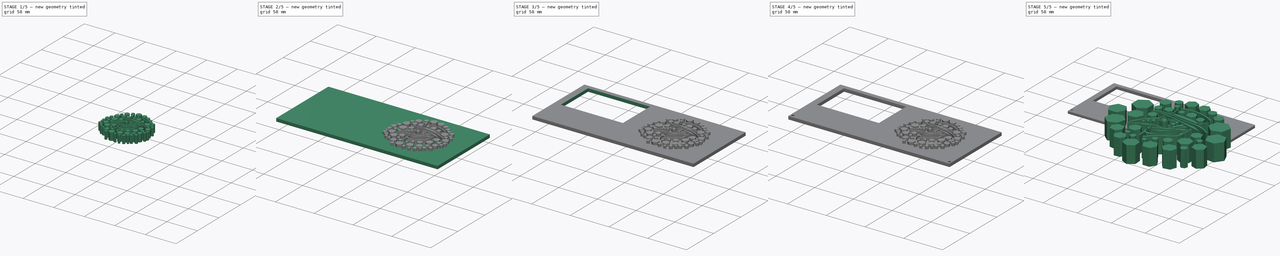
[diagram: build sequence overview — one tinted view per stage of 5, left to right]
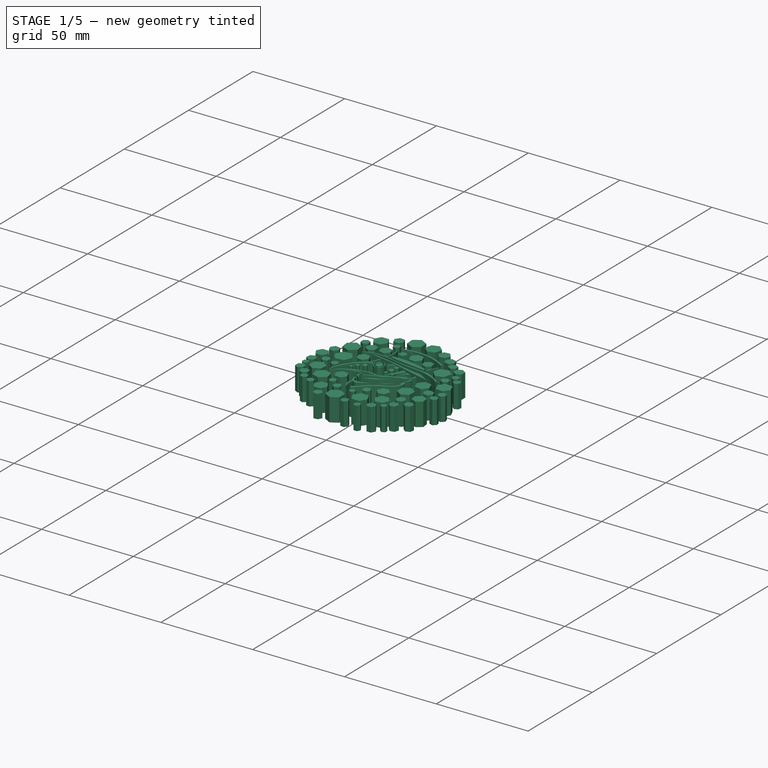
[diagram: stage 1 of 5 — iso view after this stage's code; geometry added in this stage tinted green]
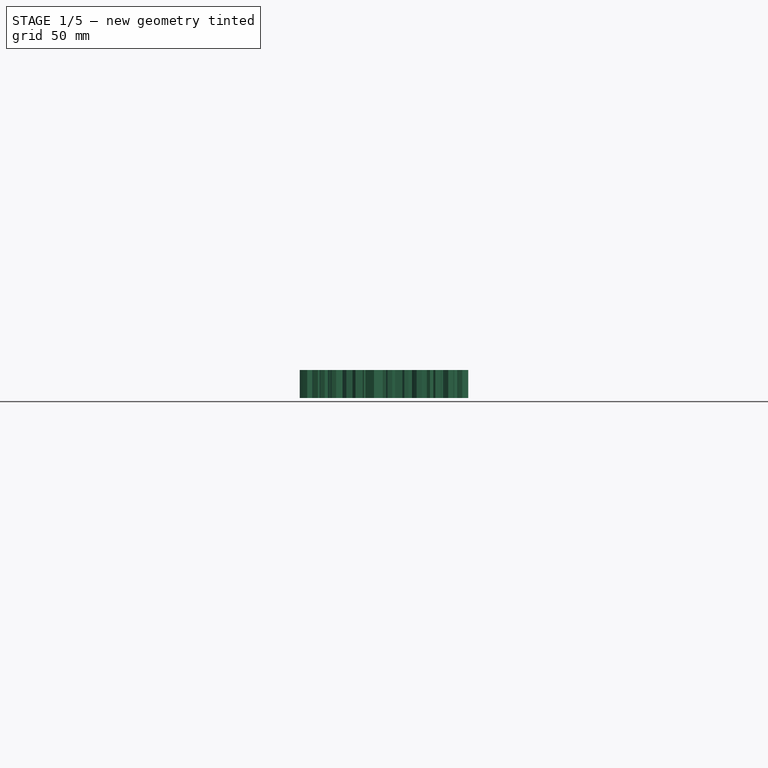
[diagram: stage 1 of 5 — front view after this stage's code; geometry added in this stage tinted green]
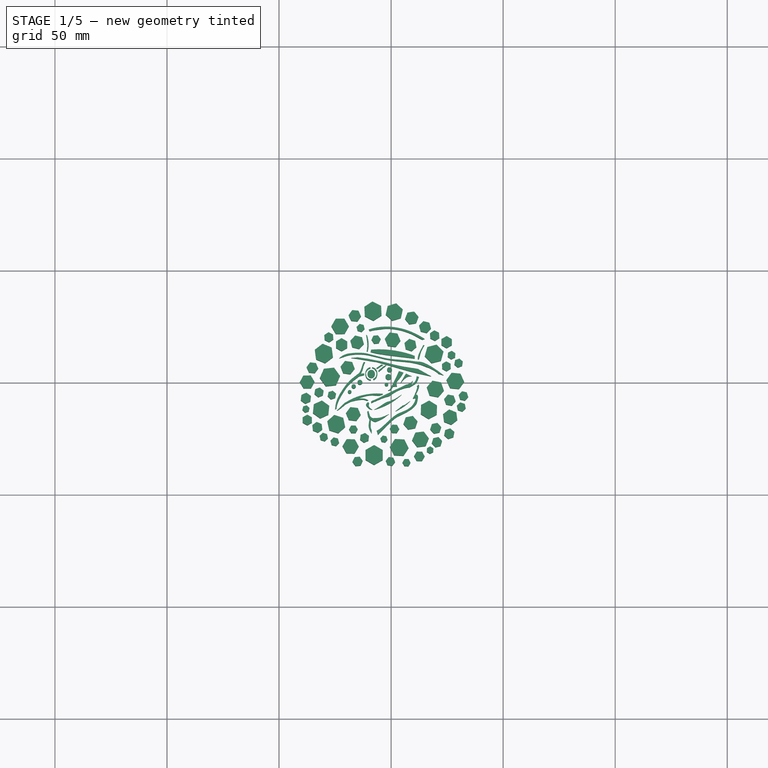
[diagram: stage 1 of 5 — top view after this stage's code; geometry added in this stage tinted green]
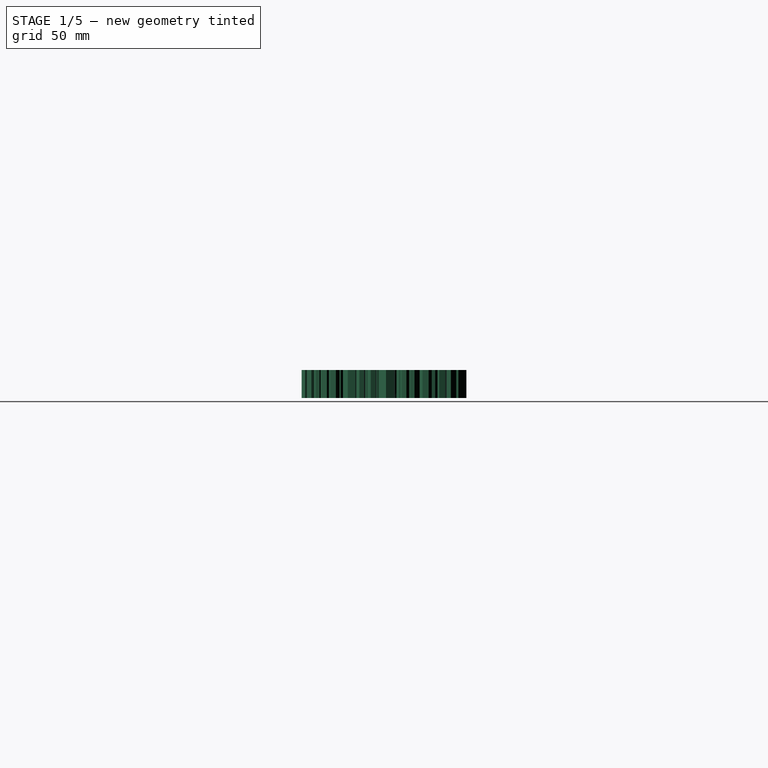
[diagram: stage 1 of 5 — right view after this stage's code; geometry added in this stage tinted green]
FCSTD DOCUMENT  (FreeCAD 0.21R33771 (Git))
Label: control-box-lid-v.1.0
License: All rights reserved
LicenseURL: https://en.wikipedia.org/wiki/All_rights_reserved
objects: Sketcher::SketchObject×9, PartDesign::Pad×4, PartDesign::Pocket×3, PartDesign::Chamfer×2, PartDesign::Body×2, Part::Extrusion×2, PartDesign::Fillet×1, PartDesign::FeatureBase×1, Part::FeaturePython×1, Part::Cut×1
note: 36 computed .brp shape members not serialized (recipe doc carries the construction recipe); baked Part::Feature solids carry a one-line shape summary decoded from their .brp

FEATURE [Sketcher::SketchObject] Sketch010
  FullyConstrained = false
  sketch-geometry (585):
    g0: BSplineCurve PolesCount=4 KnotsCount=2 Degree=3 IsPeriodic=0
    g1: BSplineCurve PolesCount=4 KnotsCount=2 Degree=3 IsPeriodic=0
    g2: BSplineCurve PolesCount=2 KnotsCount=2 Degree=1 IsPeriodic=0
    g3: BSplineCurve PolesCount=4 KnotsCount=2 Degree=3 IsPeriodic=0
    g4: BSplineCurve PolesCount=4 KnotsCount=2 Degree=3 IsPeriodic=0
    g5: BSplineCurve PolesCount=4 KnotsCount=2 Degree=3 IsPeriodic=0
    g6: BSplineCurve PolesCount=4 KnotsCount=2 Degree=3 IsPeriodic=0
    g7: BSplineCurve PolesCount=4 KnotsCount=2 Degree=3 IsPeriodic=0
    g8: BSplineCurve PolesCount=4 KnotsCount=2 Degree=3 IsPeriodic=0
    g9: BSplineCurve PolesCount=2 KnotsCount=2 Degree=1 IsPeriodic=0
    g10: BSplineCurve PolesCount=4 KnotsCount=2 Degree=3 IsPeriodic=0
    g11: BSplineCurve PolesCount=4 KnotsCount=2 Degree=3 IsPeriodic=0
    g12: BSplineCurve PolesCount=4 KnotsCount=2 Degree=3 IsPeriodic=0
    g13: BSplineCurve PolesCount=4 KnotsCount=2 Degree=3 IsPeriodic=0
    g14: BSplineCurve PolesCount=2 KnotsCount=2 Degree=1 IsPeriodic=0
    g15: BSplineCurve PolesCount=4 KnotsCount=2 Degree=3 IsPeriodic=0
    g16: BSplineCurve PolesCount=4 KnotsCount=2 Degree=3 IsPeriodic=0
    g17: BSplineCurve PolesCount=4 KnotsCount=2 Degree=3 IsPeriodic=0
    g18: BSplineCurve PolesCount=4 KnotsCount=2 Degree=3 IsPeriodic=0
    g19: BSplineCurve PolesCount=4 KnotsCount=2 Degree=3 IsPeriodic=0
    g20: BSplineCurve PolesCount=2 KnotsCount=2 Degree=1 IsPeriodic=0
    g21: BSplineCurve PolesCount=4 KnotsCount=2 Degree=3 IsPeriodic=0
    g22: BSplineCurve PolesCount=4 KnotsCount=2 Degree=3 IsPeriodic=0
    g23: BSplineCurve PolesCount=4 KnotsCount=2 Degree=3 IsPeriodic=0
    g24: BSplineCurve PolesCount=4 KnotsCount=2 Degree=3 IsPeriodic=0
    g25: BSplineCurve PolesCount=4 KnotsCount=2 Degree=3 IsPeriodic=0
    g26: BSplineCurve PolesCount=2 KnotsCount=2 Degree=1 IsPeriodic=0
    g27: BSplineCurve PolesCount=7 KnotsCount=4 Degree=2 IsPeriodic=0
    g28: BSplineCurve PolesCount=4 KnotsCount=2 Degree=3 IsPeriodic=0
    g29: BSplineCurve PolesCount=4 KnotsCount=2 Degree=3 IsPeriodic=0
    g30: BSplineCurve PolesCount=4 KnotsCount=2 Degree=3 IsPeriodic=0
    g31: BSplineCurve PolesCount=4 KnotsCount=2 Degree=3 IsPeriodic=0
    g32: BSplineCurve PolesCount=4 KnotsCount=2 Degree=3 IsPeriodic=0
    g33: BSplineCurve PolesCount=4 KnotsCount=2 Degree=3 IsPeriodic=0
    g34: BSplineCurve PolesCount=4 KnotsCount=2 Degree=3 IsPeriodic=0
    g35: BSplineCurve PolesCount=4 KnotsCount=2 Degree=3 IsPeriodic=0
    g36: BSplineCurve PolesCount=4 KnotsCount=2 Degree=3 IsPeriodic=0
    g37: BSplineCurve PolesCount=4 KnotsCount=2 Degree=3 IsPeriodic=0
    g38: BSplineCurve PolesCount=4 KnotsCount=2 Degree=3 IsPeriodic=0
    g39: BSplineCurve PolesCount=4 KnotsCount=2 Degree=3 IsPeriodic=0
    g40: BSplineCurve PolesCount=4 KnotsCount=2 Degree=3 IsPeriodic=0
    g41: BSplineCurve PolesCount=4 KnotsCount=2 Degree=3 IsPeriodic=0
    g42: BSplineCurve PolesCount=4 KnotsCount=2 Degree=3 IsPeriodic=0
    g43: BSplineCurve PolesCount=4 KnotsCount=2 Degree=3 IsPeriodic=0
    g44: BSplineCurve PolesCount=4 KnotsCount=2 Degree=3 IsPeriodic=0
    g45: BSplineCurve PolesCount=4 KnotsCount=2 Degree=3 IsPeriodic=0
    g46: BSplineCurve PolesCount=4 KnotsCount=2 Degree=3 IsPeriodic=0
    g47: BSplineCurve PolesCount=4 KnotsCount=2 Degree=3 IsPeriodic=0
    g48: BSplineCurve PolesCount=4 KnotsCount=2 Degree=3 IsPeriodic=0
    g49: BSplineCurve PolesCount=4 KnotsCount=2 Degree=3 IsPeriodic=0
    g50: BSplineCurve PolesCount=4 KnotsCount=2 Degree=3 IsPeriodic=0
    g51: BSplineCurve PolesCount=4 KnotsCount=2 Degree=3 IsPeriodic=0
    g52: BSplineCurve PolesCount=4 KnotsCount=2 Degree=3 IsPeriodic=0
    g53: BSplineCurve PolesCount=2 KnotsCount=2 Degree=1 IsPeriodic=0
    g54: BSplineCurve PolesCount=4 KnotsCount=2 Degree=3 IsPeriodic=0
    g55: BSplineCurve PolesCount=2 KnotsCount=2 Degree=1 IsPeriodic=0
    g56: BSplineCurve PolesCount=2 KnotsCount=2 Degree=1 IsPeriodic=0
    g57: BSplineCurve PolesCount=4 KnotsCount=2 Degree=3 IsPeriodic=0
    g58: BSplineCurve PolesCount=2 KnotsCount=2 Degree=1 IsPeriodic=0
    g59: BSplineCurve PolesCount=4 KnotsCount=2 Degree=3 IsPeriodic=0
    g60: BSplineCurve PolesCount=2 KnotsCount=2 Degree=1 IsPeriodic=0
    g61: BSplineCurve PolesCount=2 KnotsCount=2 Degree=1 IsPeriodic=0
    g62: BSplineCurve PolesCount=2 KnotsCount=2 Degree=1 IsPeriodic=0
    g63: BSplineCurve PolesCount=2 KnotsCount=2 Degree=1 IsPeriodic=0
    g64: BSplineCurve PolesCount=4 KnotsCount=2 Degree=3 IsPeriodic=0
    g65: BSplineCurve PolesCount=4 KnotsCount=2 Degree=3 IsPeriodic=0
    g66: BSplineCurve PolesCount=4 KnotsCount=2 Degree=3 IsPeriodic=0
    g67: BSplineCurve PolesCount=4 KnotsCount=2 Degree=3 IsPeriodic=0
    g68: BSplineCurve PolesCount=2 KnotsCount=2 Degree=1 IsPeriodic=0
    g69: BSplineCurve PolesCount=4 KnotsCount=2 Degree=3 IsPeriodic=0
    g70: BSplineCurve PolesCount=4 KnotsCount=2 Degree=3 IsPeriodic=0
    g71: BSplineCurve PolesCount=4 KnotsCount=2 Degree=3 IsPeriodic=0
    g72: BSplineCurve PolesCount=2 KnotsCount=2 Degree=1 IsPeriodic=0
    g73: BSplineCurve PolesCount=4 KnotsCount=2 Degree=3 IsPeriodic=0
    g74: BSplineCurve PolesCount=2 KnotsCount=2 Degree=1 IsPeriodic=0
    g75: BSplineCurve PolesCount=4 KnotsCount=2 Degree=3 IsPeriodic=0
    g76: BSplineCurve PolesCount=2 KnotsCount=2 Degree=1 IsPeriodic=0
    g77: BSplineCurve PolesCount=4 KnotsCount=2 Degree=3 IsPeriodic=0
    g78: BSplineCurve PolesCount=2 KnotsCount=2 Degree=1 IsPeriodic=0
    g79: BSplineCurve PolesCount=4 KnotsCount=2 Degree=3 IsPeriodic=0
    g80: BSplineCurve PolesCount=4 KnotsCount=2 Degree=3 IsPeriodic=0
    g81: BSplineCurve PolesCount=2 KnotsCount=2 Degree=1 IsPeriodic=0
    g82: BSplineCurve PolesCount=4 KnotsCount=2 Degree=3 IsPeriodic=0
    g83: BSplineCurve PolesCount=4 KnotsCount=2 Degree=3 IsPeriodic=0
    g84: BSplineCurve PolesCount=4 KnotsCount=2 Degree=3 IsPeriodic=0
    g85: BSplineCurve PolesCount=4 KnotsCount=2 Degree=3 IsPeriodic=0
    g86: BSplineCurve PolesCount=4 KnotsCount=2 Degree=3 IsPeriodic=0
    g87: BSplineCurve PolesCount=4 KnotsCount=2 Degree=3 IsPeriodic=0
    g88: BSplineCurve PolesCount=4 KnotsCount=2 Degree=3 IsPeriodic=0
    g89: BSplineCurve PolesCount=4 KnotsCount=2 Degree=3 IsPeriodic=0
    g90: BSplineCurve PolesCount=4 KnotsCount=2 Degree=3 IsPeriodic=0
    g91: BSplineCurve PolesCount=4 KnotsCount=2 Degree=3 IsPeriodic=0
    g92: BSplineCurve PolesCount=4 KnotsCount=2 Degree=3 IsPeriodic=0
    g93: BSplineCurve PolesCount=4 KnotsCount=2 Degree=3 IsPeriodic=0
    g94: BSplineCurve PolesCount=4 KnotsCount=2 Degree=3 IsPeriodic=0
    g95: BSplineCurve PolesCount=4 KnotsCount=2 Degree=3 IsPeriodic=0
    g96: BSplineCurve PolesCount=4 KnotsCount=2 Degree=3 IsPeriodic=0
    g97: BSplineCurve PolesCount=4 KnotsCount=2 Degree=3 IsPeriodic=0
    g98: BSplineCurve PolesCount=2 KnotsCount=2 Degree=1 IsPeriodic=0
    g99: BSplineCurve PolesCount=4 KnotsCount=2 Degree=3 IsPeriodic=0
    g100: BSplineCurve PolesCount=2 KnotsCount=2 Degree=1 IsPeriodic=0
    g101: BSplineCurve PolesCount=4 KnotsCount=2 Degree=3 IsPeriodic=0
    g102: BSplineCurve PolesCount=4 KnotsCount=2 Degree=3 IsPeriodic=0
    g103: BSplineCurve PolesCount=4 KnotsCount=2 Degree=3 IsPeriodic=0
    g104: BSplineCurve PolesCount=4 KnotsCount=2 Degree=3 IsPeriodic=0
    g105: BSplineCurve PolesCount=4 KnotsCount=2 Degree=3 IsPeriodic=0
    g106: BSplineCurve PolesCount=4 KnotsCount=2 Degree=3 IsPeriodic=0
    g107: BSplineCurve PolesCount=4 KnotsCount=2 Degree=3 IsPeriodic=0
    g108: BSplineCurve PolesCount=4 KnotsCount=2 Degree=3 IsPeriodic=0
    g109: BSplineCurve PolesCount=4 KnotsCount=2 Degree=3 IsPeriodic=0
    g110: BSplineCurve PolesCount=4 KnotsCount=2 Degree=3 IsPeriodic=0
    g111: BSplineCurve PolesCount=4 KnotsCount=2 Degree=3 IsPeriodic=0
    g112: BSplineCurve PolesCount=4 KnotsCount=2 Degree=3 IsPeriodic=0
    g113: BSplineCurve PolesCount=2 KnotsCount=2 Degree=1 IsPeriodic=0
    g114: BSplineCurve PolesCount=2 KnotsCount=2 Degree=1 IsPeriodic=0
    g115: BSplineCurve PolesCount=4 KnotsCount=2 Degree=3 IsPeriodic=0
    g116: BSplineCurve PolesCount=4 KnotsCount=2 Degree=3 IsPeriodic=0
    g117: BSplineCurve PolesCount=4 KnotsCount=2 Degree=3 IsPeriodic=0
    g118: BSplineCurve PolesCount=2 KnotsCount=2 Degree=1 IsPeriodic=0
    g119: BSplineCurve PolesCount=4 KnotsCount=2 Degree=3 IsPeriodic=0
    g120: BSplineCurve PolesCount=4 KnotsCount=2 Degree=3 IsPeriodic=0
    g121: BSplineCurve PolesCount=4 KnotsCount=2 Degree=3 IsPeriodic=0
    g122: BSplineCurve PolesCount=4 KnotsCount=2 Degree=3 IsPeriodic=0
    g123: BSplineCurve PolesCount=4 KnotsCount=2 Degree=3 IsPeriodic=0
    g124: BSplineCurve PolesCount=4 KnotsCount=2 Degree=3 IsPeriodic=0
    g125: BSplineCurve PolesCount=4 KnotsCount=2 Degree=3 IsPeriodic=0
    g126: BSplineCurve PolesCount=4 KnotsCount=2 Degree=3 IsPeriodic=0
    g127: BSplineCurve PolesCount=4 KnotsCount=2 Degree=3 IsPeriodic=0
    g128: BSplineCurve PolesCount=4 KnotsCount=2 Degree=3 IsPeriodic=0
    g129: BSplineCurve PolesCount=4 KnotsCount=2 Degree=3 IsPeriodic=0
    g130: BSplineCurve PolesCount=4 KnotsCount=2 Degree=3 IsPeriodic=0
    g131: BSplineCurve PolesCount=4 KnotsCount=2 Degree=3 IsPeriodic=0
    g132: BSplineCurve PolesCount=4 KnotsCount=2 Degree=3 IsPeriodic=0
    g133: BSplineCurve PolesCount=4 KnotsCount=2 Degree=3 IsPeriodic=0
    g134: BSplineCurve PolesCount=4 KnotsCount=2 Degree=3 IsPeriodic=0
    g135: BSplineCurve PolesCount=4 KnotsCount=2 Degree=3 IsPeriodic=0
    g136: BSplineCurve PolesCount=4 KnotsCount=2 Degree=3 IsPeriodic=0
    g137: BSplineCurve PolesCount=4 KnotsCount=2 Degree=3 IsPeriodic=0
    g138: BSplineCurve PolesCount=4 KnotsCount=2 Degree=3 IsPeriodic=0
    g139: BSplineCurve PolesCount=4 KnotsCount=2 Degree=3 IsPeriodic=0
    g140: LineSegment StartX=32.9008 StartY=-36.9258 StartZ=0 EndX=33.179 EndY=-36.2223 EndZ=0
    g141: LineSegment StartX=32.0217 StartY=-47.0201 StartZ=0 EndX=31.8737 EndY=-48.1203 EndZ=0
    g142: LineSegment StartX=33.9492 StartY=-46.6891 StartZ=0 EndX=34.2984 EndY=-47.6727 EndZ=0
    g143: LineSegment StartX=1.6324 StartY=-74.6999 StartZ=0 EndX=2.61244 EndY=-73.8941 EndZ=0
    g144: LineSegment StartX=0.000201 StartY=-73.7972 StartZ=0 EndX=1.36963 EndY=-72.8991 EndZ=0
    g145: LineSegment StartX=37.5501 StartY=-24.0455 StartZ=0 EndX=47.6027 EndY=-25.5686 EndZ=0
    g146: LineSegment StartX=47.6027 StartY=-25.5686 StartZ=0 EndX=60.5492 EndY=-27.1679 EndZ=0
    g147: LineSegment StartX=29.7676 StartY=-67.5717 StartZ=0 EndX=30.3421 EndY=-68.0464 EndZ=0
    g148: LineSegment StartX=32.1605 StartY=-66.6452 StartZ=0 EndX=32.273 EndY=-68.1946 EndZ=0
    g149: LineSegment StartX=32.7972 StartY=-92.3098 StartZ=0 EndX=32.7972 EndY=-95.4829 EndZ=0
    g150: LineSegment StartX=37.1703 StartY=-92.8002 StartZ=0 EndX=38.3172 EndY=-96.4843 EndZ=0
    g151: LineSegment StartX=70.3127 StartY=-51.9541 StartZ=0 EndX=72.466 EndY=-50.1961 EndZ=0
    g152: LineSegment StartX=73.018 StartY=-53.2322 StartZ=0 EndX=74.391 EndY=-51.6978 EndZ=0
    g153: LineSegment StartX=29.9582 StartY=-75.4029 StartZ=0 EndX=28.673 EndY=-75.6693 EndZ=0
    g154: LineSegment StartX=30.8174 StartY=-73.4412 StartZ=0 EndX=29.3478 EndY=-72.2743 EndZ=0
    g155: LineSegment StartX=31.314 StartY=-36.1845 StartZ=0 EndX=31.664 EndY=-36.9667 EndZ=0
    g156: LineSegment StartX=23.2084 StartY=-41.5175 StartZ=0 EndX=23.7636 EndY=-40.3598 EndZ=0
    g157: LineSegment StartX=3.62995 StartY=-28.2843 StartZ=0 EndX=7.21785 EndY=-27.119 EndZ=0
    g158: LineSegment StartX=14.4674 StartY=-27.9621 StartZ=0 EndX=20.0642 EndY=-27.3657 EndZ=0
    g159: LineSegment StartX=74.0911 StartY=-37.7513 StartZ=0 EndX=85.714 EndY=-44.2751 EndZ=0
    g160: LineSegment StartX=92.3682 StartY=-42.0819 StartZ=0 EndX=96.7793 EndY=-43.3509 EndZ=0
    g161: LineSegment StartX=30.0362 StartY=-2.52315 StartZ=0 EndX=30.8761 EndY=-3.99306 EndZ=0
    g162: LineSegment StartX=27.7316 StartY=-7.43706 StartZ=0 EndX=28.5728 EndY=-7.77306 EndZ=0
    g163: LineSegment StartX=78.7529 StartY=-16.4872 StartZ=0 EndX=79.698 EndY=-16.5923 EndZ=0
    g164: LineSegment StartX=77.8081 StartY=-11.6576 StartZ=0 EndX=79.908 EndY=-10.9226 EndZ=0
    g165: Circle CenterX=13.0082 CenterY=-58.2132 CenterZ=0 NormalX=0 NormalY=0 NormalZ=1 AngleXU=0 Radius=1.64021
    g166: Circle CenterX=16.6246 CenterY=-53.3498 CenterZ=0 NormalX=0 NormalY=0 NormalZ=1 AngleXU=0 Radius=1.9339
    g167: Circle CenterX=22.1739 CenterY=-49.6711 CenterZ=0 NormalX=0 NormalY=0 NormalZ=1 AngleXU=0 Radius=2.18141
    g168: Circle CenterX=45.8818 CenterY=-51.5905 CenterZ=0 NormalX=0 NormalY=0 NormalZ=1 AngleXU=0 Radius=1.60216
    g169: Circle CenterX=47.5782 CenterY=-44.9156 CenterZ=0 NormalX=0 NormalY=0 NormalZ=1 AngleXU=0 Radius=2.60301
    g170: Circle CenterX=48.6067 CenterY=-38.4965 CenterZ=0 NormalX=0 NormalY=0 NormalZ=1 AngleXU=0 Radius=2.23348
    g171: LineSegment StartX=54.0573 StartY=-18.2307 StartZ=0 EndX=58.3527 EndY=-12.6713 EndZ=0
    g172: LineSegment StartX=58.3527 StartY=-12.6713 StartZ=0 EndX=55.6859 EndY=-6.1716 EndZ=0
    g173: LineSegment StartX=55.6859 StartY=-6.1716 StartZ=0 EndX=48.7235 EndY=-5.23134 EndZ=0
    g174: LineSegment StartX=48.7235 StartY=-5.23134 StartZ=0 EndX=44.4281 EndY=-10.7908 EndZ=0
    g175: LineSegment StartX=44.4281 StartY=-10.7908 StartZ=0 EndX=47.095 EndY=-17.2904 EndZ=0
    g176: LineSegment StartX=47.095 StartY=-17.2904 StartZ=0 EndX=54.0573 EndY=-18.2307 EndZ=0
    g177: Circle CenterX=51.3904 CenterY=-11.731 CenterZ=0 NormalX=0 NormalY=0 NormalZ=1 AngleXU=0 Radius=7.02553
    g178: LineSegment StartX=38.3589 StartY=-7.74052 StartZ=0 EndX=34.2461 EndY=-8.09912 EndZ=0
    g179: LineSegment StartX=34.2461 StartY=-8.09912 StartZ=0 EndX=32.5003 EndY=-11.8402 EndZ=0
    g180: LineSegment StartX=32.5003 StartY=-11.8402 StartZ=0 EndX=34.8673 EndY=-15.2227 EndZ=0
    g181: LineSegment StartX=34.8673 StartY=-15.2227 StartZ=0 EndX=38.9801 EndY=-14.8641 EndZ=0
    g182: LineSegment StartX=38.9801 StartY=-14.8641 StartZ=0 EndX=40.7259 EndY=-11.123 EndZ=0
    g183: LineSegment StartX=40.7259 StartY=-11.123 StartZ=0 EndX=38.3589 EndY=-7.74052 EndZ=0
    g184: Circle CenterX=36.6131 CenterY=-11.4816 CenterZ=0 NormalX=0 NormalY=0 NormalZ=1 AngleXU=0 Radius=4.12841
    g185: LineSegment StartX=71.53 StartY=-12.7286 StartZ=0 EndX=66.2241 EndY=-10.8961 EndZ=0
    g186: LineSegment StartX=66.2241 StartY=-10.8961 StartZ=0 EndX=61.9842 EndY=-14.5749 EndZ=0
    g187: LineSegment StartX=61.9842 StartY=-14.5749 StartZ=0 EndX=63.0502 EndY=-20.0861 EndZ=0
    g188: LineSegment StartX=63.0502 StartY=-20.0861 StartZ=0 EndX=68.356 EndY=-21.9186 EndZ=0
    g189: LineSegment StartX=68.356 StartY=-21.9186 StartZ=0 EndX=72.5959 EndY=-18.2399 EndZ=0
    g190: LineSegment StartX=72.5959 StartY=-18.2399 StartZ=0 EndX=71.53 EndY=-12.7286 EndZ=0
    g191: Circle CenterX=67.2901 CenterY=-16.4074 CenterZ=0 NormalX=0 NormalY=0 NormalZ=1 AngleXU=0 Radius=5.61338
    g192: LineSegment StartX=12.3223 StartY=0.349932 StartZ=0 EndX=8.36531 EndY=7.1058 EndZ=0
    g193: LineSegment StartX=8.36531 StartY=7.1058 StartZ=0 EndX=0.53606 EndY=7.05687 EndZ=0
    g194: LineSegment StartX=0.53606 StartY=7.05687 StartZ=0 EndX=-3.33619 EndY=0.252073 EndZ=0
    g195: LineSegment StartX=-3.33619 StartY=0.252073 StartZ=0 EndX=0.620809 EndY=-6.50379 EndZ=0
    g196: LineSegment StartX=0.620809 StartY=-6.50379 StartZ=0 EndX=8.45006 EndY=-6.45486 EndZ=0
    g197: LineSegment StartX=8.45006 StartY=-6.45486 StartZ=0 EndX=12.3223 EndY=0.349932 EndZ=0
    g198: Circle CenterX=4.49306 CenterY=0.301003 CenterZ=0 NormalX=0 NormalY=0 NormalZ=1 AngleXU=0 Radius=7.8294
    g199: LineSegment StartX=17.9963 StartY=-7.95339 StartZ=0 EndX=13.6501 EndY=-12.4091 EndZ=0
    g200: LineSegment StartX=13.6501 StartY=-12.4091 StartZ=0 EndX=15.3358 EndY=-18.4009 EndZ=0
    g201: LineSegment StartX=15.3358 StartY=-18.4009 StartZ=0 EndX=21.3677 EndY=-19.9369 EndZ=0
    g202: LineSegment StartX=21.3677 StartY=-19.9369 StartZ=0 EndX=25.7138 EndY=-15.4811 EndZ=0
    g203: LineSegment StartX=25.7138 StartY=-15.4811 StartZ=0 EndX=24.0281 EndY=-9.48938 EndZ=0
    g204: LineSegment StartX=24.0281 StartY=-9.48938 StartZ=0 EndX=17.9963 EndY=-7.95339 EndZ=0
    g205: Circle CenterX=19.682 CenterY=-13.9451 CenterZ=0 NormalX=0 NormalY=0 NormalZ=1 AngleXU=0 Radius=6.22435
    g206: LineSegment StartX=21.9068 StartY=2.44325 StartZ=0 EndX=19.2436 EndY=-0.135823 EndZ=0
    g207: LineSegment StartX=19.2436 StartY=-0.135823 StartZ=0 EndX=20.1455 EndY=-3.73179 EndZ=0
    g208: LineSegment StartX=20.1455 StartY=-3.73179 StartZ=0 EndX=23.7107 EndY=-4.74868 EndZ=0
    g209: LineSegment StartX=23.7107 StartY=-4.74868 StartZ=0 EndX=26.3739 EndY=-2.1696 EndZ=0
    g210: LineSegment StartX=26.3739 StartY=-2.1696 StartZ=0 EndX=25.472 EndY=1.42636 EndZ=0
    g211: LineSegment StartX=25.472 StartY=1.42636 StartZ=0 EndX=21.9068 EndY=2.44325 EndZ=0
    g212: Circle CenterX=22.8087 CenterY=-1.15271 CenterZ=0 NormalX=0 NormalY=0 NormalZ=1 AngleXU=0 Radius=3.70735
    g213: LineSegment StartX=8.91997 StartY=-30.6364 StartZ=0 EndX=4.93975 EndY=-35.6227 EndZ=0
    g214: LineSegment StartX=4.93975 StartY=-35.6227 StartZ=0 EndX=7.26792 EndY=-41.5628 EndZ=0
    g215: LineSegment StartX=7.26792 StartY=-41.5628 StartZ=0 EndX=13.5763 EndY=-42.5166 EndZ=0
    g216: LineSegment StartX=13.5763 StartY=-42.5166 StartZ=0 EndX=17.5565 EndY=-37.5303 EndZ=0
    g217: LineSegment StartX=17.5565 StartY=-37.5303 StartZ=0 EndX=15.2284 EndY=-31.5902 EndZ=0
    g218: LineSegment StartX=15.2284 StartY=-31.5902 StartZ=0 EndX=8.91997 EndY=-30.6364 EndZ=0
    g219: Circle CenterX=11.2481 CenterY=-36.5765 CenterZ=0 NormalX=0 NormalY=0 NormalZ=1 AngleXU=0 Radius=6.38008
    g220: LineSegment StartX=22.9368 StartY=-78.7667 StartZ=0 EndX=20.2949 EndY=-72.6386 EndZ=0
    g221: LineSegment StartX=20.2949 StartY=-72.6386 StartZ=0 EndX=13.6669 EndY=-71.8625 EndZ=0
    g222: LineSegment StartX=13.6669 StartY=-71.8625 StartZ=0 EndX=9.68074 EndY=-77.2145 EndZ=0
    g223: LineSegment StartX=9.68074 StartY=-77.2145 StartZ=0 EndX=12.3226 EndY=-83.3425 EndZ=0
    g224: LineSegment StartX=12.3226 StartY=-83.3425 StartZ=0 EndX=18.9506 EndY=-84.1187 EndZ=0
    g225: LineSegment StartX=18.9506 StartY=-84.1187 StartZ=0 EndX=22.9368 EndY=-78.7667 EndZ=0
    g226: Circle CenterX=16.3088 CenterY=-77.9906 CenterZ=0 NormalX=0 NormalY=0 NormalZ=1 AngleXU=0 Radius=6.6733
    g227: LineSegment StartX=92.0057 StartY=-62.9867 StartZ=0 EndX=97.1223 EndY=-57.1142 EndZ=0
    g228: LineSegment StartX=97.1223 StartY=-57.1142 StartZ=0 EndX=94.5949 EndY=-49.7468 EndZ=0
    g229: LineSegment StartX=94.5949 StartY=-49.7468 StartZ=0 EndX=86.9509 EndY=-48.2519 EndZ=0
    g230: LineSegment StartX=86.9509 StartY=-48.2519 StartZ=0 EndX=81.8343 EndY=-54.1244 EndZ=0
    g231: LineSegment StartX=81.8343 StartY=-54.1244 StartZ=0 EndX=84.3616 EndY=-61.4918 EndZ=0
    g232: LineSegment StartX=84.3616 StartY=-61.4918 StartZ=0 EndX=92.0057 EndY=-62.9867 EndZ=0
    g233: Circle CenterX=89.4783 CenterY=-55.6193 CenterZ=0 NormalX=0 NormalY=0 NormalZ=1 AngleXU=0 Radius=7.78883
    g234: LineSegment StartX=0.78665 StartY=-13.2043 StartZ=0 EndX=0.78563 EndY=-19.031 EndZ=0
    g235: LineSegment StartX=0.78563 StartY=-19.031 StartZ=0 EndX=5.83117 EndY=-21.9452 EndZ=0
    g236: LineSegment StartX=5.83117 StartY=-21.9452 StartZ=0 EndX=10.8777 EndY=-19.0327 EndZ=0
    g237: LineSegment StartX=10.8777 StartY=-19.0327 StartZ=0 EndX=10.8787 EndY=-13.2061 EndZ=0
    g238: LineSegment StartX=10.8787 StartY=-13.2061 StartZ=0 EndX=5.83321 EndY=-10.2918 EndZ=0
    g239: LineSegment StartX=5.83321 StartY=-10.2918 StartZ=0 EndX=0.78665 EndY=-13.2043 EndZ=0
    g240: Circle CenterX=5.83219 CenterY=-16.1185 CenterZ=0 NormalX=0 NormalY=0 NormalZ=1 AngleXU=0 Radius=5.82667
    g241: LineSegment StartX=90.7392 StartY=-78.576 StartZ=0 EndX=90.9934 EndY=-70.3414 EndZ=0
    g242: LineSegment StartX=90.9934 StartY=-70.3414 StartZ=0 EndX=83.9892 EndY=-66.0039 EndZ=0
    g243: LineSegment StartX=83.9892 StartY=-66.0039 StartZ=0 EndX=76.7307 EndY=-69.901 EndZ=0
    g244: LineSegment StartX=76.7307 StartY=-69.901 StartZ=0 EndX=76.4765 EndY=-78.1356 EndZ=0
    g245: LineSegment StartX=76.4765 StartY=-78.1356 StartZ=0 EndX=83.4807 EndY=-82.4731 EndZ=0
    g246: LineSegment StartX=83.4807 StartY=-82.4731 StartZ=0 EndX=90.7392 EndY=-78.576 EndZ=0
    g247: Circle CenterX=83.7349 CenterY=-74.2385 CenterZ=0 NormalX=0 NormalY=0 NormalZ=1 AngleXU=0 Radius=8.2385
    g248: LineSegment StartX=96.7172 StartY=-22.1924 StartZ=0 EndX=90.6683 EndY=-16.052 EndZ=0
    g249: LineSegment StartX=90.6683 StartY=-16.052 StartZ=0 EndX=82.3261 EndY=-18.2204 EndZ=0
    g250: LineSegment StartX=82.3261 StartY=-18.2204 StartZ=0 EndX=80.0329 EndY=-26.5291 EndZ=0
    g251: LineSegment StartX=80.0329 StartY=-26.5291 StartZ=0 EndX=86.0818 EndY=-32.6694 EndZ=0
    g252: LineSegment StartX=86.0818 StartY=-32.6694 StartZ=0 EndX=94.424 EndY=-30.5011 EndZ=0
    g253: LineSegment StartX=94.424 StartY=-30.5011 StartZ=0 EndX=96.7172 EndY=-22.1924 EndZ=0
    g254: Circle CenterX=88.3751 CenterY=-24.3607 CenterZ=0 NormalX=0 NormalY=0 NormalZ=1 AngleXU=0 Radius=8.61937
    g255: LineSegment StartX=71.4976 StartY=-90.6083 StartZ=0 EndX=73.5803 EndY=-84.5432 EndZ=0
    g256: LineSegment StartX=73.5803 StartY=-84.5432 StartZ=0 EndX=69.3691 EndY=-79.707 EndZ=0
    g257: LineSegment StartX=69.3691 StartY=-79.707 StartZ=0 EndX=63.0752 EndY=-80.9359 EndZ=0
    g258: LineSegment StartX=63.0752 StartY=-80.9359 StartZ=0 EndX=60.9925 EndY=-87.001 EndZ=0
    g259: LineSegment StartX=60.9925 StartY=-87.001 StartZ=0 EndX=65.2037 EndY=-91.8372 EndZ=0
    g260: LineSegment StartX=65.2037 StartY=-91.8372 StartZ=0 EndX=71.4976 EndY=-90.6083 EndZ=0
    g261: Circle CenterX=67.2864 CenterY=-85.7721 CenterZ=0 NormalX=0 NormalY=0 NormalZ=1 AngleXU=0 Radius=6.41274
    g262: LineSegment StartX=61.0764 StartY=-115.232 StartZ=0 EndX=65.645 EndY=-108.202 EndZ=0
    g263: LineSegment StartX=65.645 StartY=-108.202 StartZ=0 EndX=61.8404 EndY=-100.73 EndZ=0
    g264: LineSegment StartX=61.8404 StartY=-100.73 StartZ=0 EndX=53.4672 EndY=-100.289 EndZ=0
    g265: LineSegment StartX=53.4672 StartY=-100.289 StartZ=0 EndX=48.8987 EndY=-107.32 EndZ=0
    g266: LineSegment StartX=48.8987 StartY=-107.32 StartZ=0 EndX=52.7033 EndY=-114.791 EndZ=0
    g267: LineSegment StartX=52.7033 StartY=-114.791 StartZ=0 EndX=61.0764 EndY=-115.232 EndZ=0
    g268: Circle CenterX=57.2718 CenterY=-107.761 CenterZ=0 NormalX=0 NormalY=0 NormalZ=1 AngleXU=0 Radius=8.38477
    g269: LineSegment StartX=10.1343 StartY=-113.03 StartZ=0 EndX=17.3986 EndY=-113.154 EndZ=0
    g270: LineSegment StartX=17.3986 StartY=-113.154 StartZ=0 EndX=21.1385 EndY=-106.926 EndZ=0
    g271: LineSegment StartX=21.1385 StartY=-106.926 StartZ=0 EndX=17.6142 EndY=-100.572 EndZ=0
    g272: LineSegment StartX=17.6142 StartY=-100.572 StartZ=0 EndX=10.35 EndY=-100.448 EndZ=0
    g273: LineSegment StartX=10.35 StartY=-100.448 StartZ=0 EndX=6.61005 EndY=-106.677 EndZ=0
    g274: LineSegment StartX=6.61005 StartY=-106.677 StartZ=0 EndX=10.1343 EndY=-113.03 EndZ=0
    g275: Circle CenterX=13.8743 CenterY=-106.801 CenterZ=0 NormalX=0 NormalY=0 NormalZ=1 AngleXU=0 Radius=7.26528
    g276: LineSegment StartX=-5.14355 StartY=-92.561 StartZ=0 EndX=2.81414 EndY=-95.1399 EndZ=0
    g277: LineSegment StartX=2.81414 StartY=-95.1399 StartZ=0 EndX=9.02635 EndY=-89.5378 EndZ=0
    g278: LineSegment StartX=9.02635 StartY=-89.5378 StartZ=0 EndX=7.28087 EndY=-81.3568 EndZ=0
    g279: LineSegment StartX=7.28087 StartY=-81.3568 StartZ=0 EndX=-0.676815 EndY=-78.7779 EndZ=0
    g280: LineSegment StartX=-0.676815 StartY=-78.7779 StartZ=0 EndX=-6.88902 EndY=-84.38 EndZ=0
    g281: LineSegment StartX=-6.88902 StartY=-84.38 StartZ=0 EndX=-5.14355 EndY=-92.561 EndZ=0
    g282: Circle CenterX=1.06866 CenterY=-86.9589 CenterZ=0 NormalX=0 NormalY=0 NormalZ=1 AngleXU=0 Radius=8.36513
    g283: LineSegment StartX=15.3122 StartY=14.7687 StartZ=0 EndX=12.0855 EndY=10.2303 EndZ=0
    g284: LineSegment StartX=12.0855 StartY=10.2303 StartZ=0 EndX=14.4025 EndY=5.16667 EndZ=0
    g285: LineSegment StartX=14.4025 StartY=5.16667 StartZ=0 EndX=19.9462 EndY=4.64143 EndZ=0
    g286: LineSegment StartX=19.9462 StartY=4.64143 StartZ=0 EndX=23.173 EndY=9.17983 EndZ=0
    g287: LineSegment StartX=23.173 StartY=9.17983 StartZ=0 EndX=20.856 EndY=14.2435 EndZ=0
    g288: LineSegment StartX=20.856 StartY=14.2435 StartZ=0 EndX=15.3122 EndY=14.7687 EndZ=0
    g289: Circle CenterX=17.6292 CenterY=9.70507 CenterZ=0 NormalX=0 NormalY=0 NormalZ=1 AngleXU=0 Radius=5.56857
    g290: LineSegment StartX=84.1423 StartY=3.5316 StartZ=0 EndX=78.8143 EndY=4.88368 EndZ=0
    g291: LineSegment StartX=78.8143 StartY=4.88368 StartZ=0 EndX=74.9793 EndY=0.945512 EndZ=0
    g292: LineSegment StartX=74.9793 StartY=0.945512 StartZ=0 EndX=76.4724 EndY=-4.34473 EndZ=0
    g293: LineSegment StartX=76.4724 StartY=-4.34473 StartZ=0 EndX=81.8004 EndY=-5.69681 EndZ=0
    g294: LineSegment StartX=81.8004 StartY=-5.69681 StartZ=0 EndX=85.6354 EndY=-1.75864 EndZ=0
    g295: LineSegment StartX=85.6354 StartY=-1.75864 StartZ=0 EndX=84.1423 EndY=3.5316 EndZ=0
    g296: Circle CenterX=80.3074 CenterY=-0.406565 CenterZ=0 NormalX=0 NormalY=0 NormalZ=1 AngleXU=0 Radius=5.49691
    g297: LineSegment StartX=70.608 StartY=13.4409 StartZ=0 EndX=64.5787 EndY=12.4792 EndZ=0
    g298: LineSegment StartX=64.5787 StartY=12.4792 StartZ=0 EndX=62.3969 EndY=6.7769 EndZ=0
    g299: LineSegment StartX=62.3969 StartY=6.7769 StartZ=0 EndX=66.2444 EndY=2.03621 EndZ=0
    g300: LineSegment StartX=66.2444 StartY=2.03621 StartZ=0 EndX=72.2737 EndY=2.99786 EndZ=0
    g301: LineSegment StartX=72.2737 StartY=2.99786 StartZ=0 EndX=74.4555 EndY=8.70021 EndZ=0
    g302: LineSegment StartX=74.4555 StartY=8.70021 StartZ=0 EndX=70.608 EndY=13.4409 EndZ=0
    g303: Circle CenterX=68.4262 CenterY=7.73855 CenterZ=0 NormalX=0 NormalY=0 NormalZ=1 AngleXU=0 Radius=6.1055
    g304: LineSegment StartX=54.5564 StartY=20.7827 StartZ=0 EndX=46.9537 EndY=18.431 EndZ=0
    g305: LineSegment StartX=46.9537 StartY=18.431 StartZ=0 EndX=45.1889 EndY=10.671 EndZ=0
    g306: LineSegment StartX=45.1889 StartY=10.671 StartZ=0 EndX=51.0269 EndY=5.26268 EndZ=0
    g307: LineSegment StartX=51.0269 StartY=5.26268 StartZ=0 EndX=58.6296 EndY=7.61434 EndZ=0
    g308: LineSegment StartX=58.6296 StartY=7.61434 StartZ=0 EndX=60.3944 EndY=15.3744 EndZ=0
    g309: LineSegment StartX=60.3944 StartY=15.3744 StartZ=0 EndX=54.5564 EndY=20.7827 EndZ=0
    g310: Circle CenterX=52.7916 CenterY=13.0227 CenterZ=0 NormalX=0 NormalY=0 NormalZ=1 AngleXU=0 Radius=7.95815
    g311: LineSegment StartX=33.4084 StartY=22.4594 StartZ=0 EndX=26.1609 EndY=17.793 EndZ=0
    g312: LineSegment StartX=26.1609 StartY=17.793 StartZ=0 EndX=26.5784 EndY=9.1834 EndZ=0
    g313: LineSegment StartX=26.5784 StartY=9.1834 StartZ=0 EndX=34.2433 EndY=5.24008 EndZ=0
    g314: LineSegment StartX=34.2433 StartY=5.24008 StartZ=0 EndX=41.4907 EndY=9.90641 EndZ=0
    g315: LineSegment StartX=41.4907 StartY=9.90641 StartZ=0 EndX=41.0733 EndY=18.5161 EndZ=0
    g316: LineSegment StartX=41.0733 StartY=18.5161 StartZ=0 EndX=33.4084 EndY=22.4594 EndZ=0
    g317: Circle CenterX=33.8258 CenterY=13.8497 CenterZ=0 NormalX=0 NormalY=0 NormalZ=1 AngleXU=0 Radius=8.61976
    g318: LineSegment StartX=-13.6329 StartY=-45.9074 StartZ=0 EndX=-8.26941 EndY=-53.2462 EndZ=0
    g319: LineSegment StartX=-8.26941 StartY=-53.2462 StartZ=0 EndX=0.767957 EndY=-52.2707 EndZ=0
    g320: LineSegment StartX=0.767957 StartY=-52.2707 StartZ=0 EndX=4.44181 EndY=-43.9563 EndZ=0
    g321: LineSegment StartX=4.44181 StartY=-43.9563 StartZ=0 EndX=-0.921695 EndY=-36.6175 EndZ=0
    g322: LineSegment StartX=-0.921695 StartY=-36.6175 StartZ=0 EndX=-9.95906 EndY=-37.593 EndZ=0
    g323: LineSegment StartX=-9.95906 StartY=-37.593 StartZ=0 EndX=-13.6329 EndY=-45.9074 EndZ=0
    g324: Circle CenterX=-4.59555 CenterY=-44.9319 CenterZ=0 NormalX=0 NormalY=0 NormalZ=1 AngleXU=0 Radius=9.08987
    g325: LineSegment StartX=-18.0664 StartY=-20.61 StartZ=0 EndX=-16.9224 EndY=-29.3027 EndZ=0
    g326: LineSegment StartX=-16.9224 StartY=-29.3027 StartZ=0 EndX=-8.82223 EndY=-32.6582 EndZ=0
    g327: LineSegment StartX=-8.82223 StartY=-32.6582 StartZ=0 EndX=-1.86618 EndY=-27.321 EndZ=0
    g328: LineSegment StartX=-1.86618 StartY=-27.321 StartZ=0 EndX=-3.01027 EndY=-18.6284 EndZ=0
    g329: LineSegment StartX=-3.01027 StartY=-18.6284 StartZ=0 EndX=-11.1104 EndY=-15.2728 EndZ=0
    g330: LineSegment StartX=-11.1104 StartY=-15.2728 StartZ=0 EndX=-18.0664 EndY=-20.61 EndZ=0
    g331: Circle CenterX=-9.96632 CenterY=-23.9655 CenterZ=0 NormalX=0 NormalY=0 NormalZ=1 AngleXU=0 Radius=8.76765
    g332: LineSegment StartX=-19.7906 StartY=-77.2189 StartZ=0 EndX=-13.2965 EndY=-81.8932 EndZ=0
    g333: LineSegment StartX=-13.2965 StartY=-81.8932 StartZ=0 EndX=-6.00143 EndY=-78.6062 EndZ=0
    g334: LineSegment StartX=-6.00143 StartY=-78.6062 StartZ=0 EndX=-5.20044 EndY=-70.645 EndZ=0
    g335: LineSegment StartX=-5.20044 StartY=-70.645 StartZ=0 EndX=-11.6945 EndY=-65.9708 EndZ=0
    g336: LineSegment StartX=-11.6945 StartY=-65.9708 StartZ=0 EndX=-18.9896 EndY=-69.2577 EndZ=0
    g337: LineSegment StartX=-18.9896 StartY=-69.2577 StartZ=0 EndX=-19.7906 EndY=-77.2189 EndZ=0
    g338: Circle CenterX=-12.4955 CenterY=-73.932 CenterZ=0 NormalX=0 NormalY=0 NormalZ=1 AngleXU=0 Radius=8.00139
    g339: LineSegment StartX=34.7996 StartY=-123.419 StartZ=0 EndX=42.5038 EndY=-119.015 EndZ=0
    g340: LineSegment StartX=42.5038 StartY=-119.015 StartZ=0 EndX=42.5415 EndY=-110.141 EndZ=0
    g341: LineSegment StartX=42.5415 StartY=-110.141 StartZ=0 EndX=34.875 EndY=-105.671 EndZ=0
    g342: LineSegment StartX=34.875 StartY=-105.671 StartZ=0 EndX=27.1708 EndY=-110.075 EndZ=0
    g343: LineSegment StartX=27.1708 StartY=-110.075 StartZ=0 EndX=27.1331 EndY=-118.95 EndZ=0
    g344: LineSegment StartX=27.1331 StartY=-118.95 StartZ=0 EndX=34.7996 EndY=-123.419 EndZ=0
    g345: Circle CenterX=34.8373 CenterY=-114.545 CenterZ=0 NormalX=0 NormalY=0 NormalZ=1 AngleXU=0 Radius=8.87434
    g346: LineSegment StartX=55.0015 StartY=-94.9926 StartZ=0 EndX=57.2749 EndY=-91.4368 EndZ=0
    g347: LineSegment StartX=57.2749 StartY=-91.4368 StartZ=0 EndX=55.3322 EndY=-87.6901 EndZ=0
    g348: LineSegment StartX=55.3322 StartY=-87.6901 StartZ=0 EndX=51.1161 EndY=-87.4992 EndZ=0
    g349: LineSegment StartX=51.1161 StartY=-87.4992 StartZ=0 EndX=48.8427 EndY=-91.055 EndZ=0
    g350: LineSegment StartX=48.8427 StartY=-91.055 StartZ=0 EndX=50.7854 EndY=-94.8017 EndZ=0
    g351: LineSegment StartX=50.7854 StartY=-94.8017 StartZ=0 EndX=55.0015 EndY=-94.9926 EndZ=0
    g352: Circle CenterX=53.0588 CenterY=-91.2459 CenterZ=0 NormalX=0 NormalY=0 NormalZ=1 AngleXU=0 Radius=4.22041
    g353: LineSegment StartX=14.4265 StartY=-95.0161 StartZ=0 EndX=18.323 EndY=-94.9821 EndZ=0
    g354: LineSegment StartX=18.323 StartY=-94.9821 StartZ=0 EndX=20.2418 EndY=-91.5907 EndZ=0
    g355: LineSegment StartX=20.2418 StartY=-91.5907 StartZ=0 EndX=18.2642 EndY=-88.2333 EndZ=0
    g356: LineSegment StartX=18.2642 StartY=-88.2333 StartZ=0 EndX=14.3677 EndY=-88.2672 EndZ=0
    g357: LineSegment StartX=14.3677 StartY=-88.2672 StartZ=0 EndX=12.4489 EndY=-91.6586 EndZ=0
    g358: LineSegment StartX=12.4489 StartY=-91.6586 StartZ=0 EndX=14.4265 EndY=-95.0161 EndZ=0
    g359: Circle CenterX=16.3453 CenterY=-91.6247 CenterZ=0 NormalX=0 NormalY=0 NormalZ=1 AngleXU=0 Radius=3.8966
    g360: LineSegment StartX=115.202 StartY=-49.2154 StartZ=0 EndX=111.914 EndY=-41.9675 EndZ=0
    g361: LineSegment StartX=111.914 StartY=-41.9675 StartZ=0 EndX=103.994 EndY=-41.1907 EndZ=0
    g362: LineSegment StartX=103.994 StartY=-41.1907 StartZ=0 EndX=99.3606 EndY=-47.6619 EndZ=0
    g363: LineSegment StartX=99.3606 StartY=-47.6619 StartZ=0 EndX=102.648 EndY=-54.9099 EndZ=0
    g364: LineSegment StartX=102.648 StartY=-54.9099 StartZ=0 EndX=110.569 EndY=-55.6866 EndZ=0
    g365: LineSegment StartX=110.569 StartY=-55.6866 StartZ=0 EndX=115.202 EndY=-49.2154 EndZ=0
    g366: Circle CenterX=107.281 CenterY=-48.4387 CenterZ=0 NormalX=0 NormalY=0 NormalZ=1 AngleXU=0 Radius=7.95876
    g367: LineSegment StartX=80.7217 StartY=-106.623 StartZ=0 EndX=83.6824 EndY=-99.6908 EndZ=0
    g368: LineSegment StartX=83.6824 StartY=-99.6908 StartZ=0 EndX=79.159 EndY=-93.6605 EndZ=0
    g369: LineSegment StartX=79.159 StartY=-93.6605 StartZ=0 EndX=71.6749 EndY=-94.5628 EndZ=0
    g370: LineSegment StartX=71.6749 StartY=-94.5628 StartZ=0 EndX=68.7142 EndY=-101.495 EndZ=0
    g371: LineSegment StartX=68.7142 StartY=-101.495 StartZ=0 EndX=73.2377 EndY=-107.526 EndZ=0
    g372: LineSegment StartX=73.2377 StartY=-107.526 StartZ=0 EndX=80.7217 EndY=-106.623 EndZ=0
    g373: Circle CenterX=76.1983 CenterY=-100.593 CenterZ=0 NormalX=0 NormalY=0 NormalZ=1 AngleXU=0 Radius=7.53826
    g374: LineSegment StartX=109.128 StartY=-83.3827 StartZ=0 EndX=108.209 EndY=-76.5334 EndZ=0
    g375: LineSegment StartX=108.209 StartY=-76.5334 StartZ=0 EndX=101.817 EndY=-73.9054 EndZ=0
    g376: LineSegment StartX=101.817 StartY=-73.9054 StartZ=0 EndX=96.3453 EndY=-78.1267 EndZ=0
    g377: LineSegment StartX=96.3453 StartY=-78.1267 StartZ=0 EndX=97.2652 EndY=-84.976 EndZ=0
    g378: LineSegment StartX=97.2652 StartY=-84.976 StartZ=0 EndX=103.657 EndY=-87.6039 EndZ=0
    g379: LineSegment StartX=103.657 StartY=-87.6039 StartZ=0 EndX=109.128 EndY=-83.3827 EndZ=0
    g380: Circle CenterX=102.737 CenterY=-80.7547 CenterZ=0 NormalX=0 NormalY=0 NormalZ=1 AngleXU=0 Radius=6.91076
    g381: LineSegment StartX=93.1565 StartY=-94.452 StartZ=0 EndX=94.7153 EndY=-89.666 EndZ=0
    g382: LineSegment StartX=94.7153 StartY=-89.666 StartZ=0 EndX=91.35 EndY=-85.923 EndZ=0
    g383: LineSegment StartX=91.35 StartY=-85.923 StartZ=0 EndX=86.4258 EndY=-86.966 EndZ=0
    g384: LineSegment StartX=86.4258 StartY=-86.966 StartZ=0 EndX=84.8669 EndY=-91.752 EndZ=0
    g385: LineSegment StartX=84.8669 StartY=-91.752 StartZ=0 EndX=88.2323 EndY=-95.495 EndZ=0
    g386: LineSegment StartX=88.2323 StartY=-95.495 StartZ=0 EndX=93.1565 EndY=-94.452 EndZ=0
    g387: Circle CenterX=89.7911 CenterY=-90.709 CenterZ=0 NormalX=0 NormalY=0 NormalZ=1 AngleXU=0 Radius=5.03343
    g388: LineSegment StartX=-31.4832 StartY=-49.4695 StartZ=0 EndX=-28.0825 EndY=-55.1165 EndZ=0
    g389: LineSegment StartX=-28.0825 StartY=-55.1165 StartZ=0 EndX=-21.4917 EndY=-54.9948 EndZ=0
    g390: LineSegment StartX=-21.4917 StartY=-54.9948 StartZ=0 EndX=-18.3017 EndY=-49.2263 EndZ=0
    g391: LineSegment StartX=-18.3017 StartY=-49.2263 StartZ=0 EndX=-21.7024 EndY=-43.5793 EndZ=0
    g392: LineSegment StartX=-21.7024 StartY=-43.5793 StartZ=0 EndX=-28.2932 EndY=-43.7009 EndZ=0
    g393: LineSegment StartX=-28.2932 StartY=-43.7009 StartZ=0 EndX=-31.4832 EndY=-49.4695 EndZ=0
    g394: Circle CenterX=-24.8925 CenterY=-49.3479 CenterZ=0 NormalX=0 NormalY=0 NormalZ=1 AngleXU=0 Radius=6.59188
    g395: LineSegment StartX=25.7584 StartY=-103.532 StartZ=0 EndX=29.7559 EndY=-101.822 EndZ=0
    g396: LineSegment StartX=29.7559 StartY=-101.822 StartZ=0 EndX=30.2739 EndY=-97.5055 EndZ=0
    g397: LineSegment StartX=30.2739 StartY=-97.5055 StartZ=0 EndX=26.7944 EndY=-94.8985 EndZ=0
    g398: LineSegment StartX=26.7944 StartY=-94.8985 StartZ=0 EndX=22.7969 EndY=-96.6083 EndZ=0
    g399: LineSegment StartX=22.7969 StartY=-96.6083 StartZ=0 EndX=22.2789 EndY=-100.925 EndZ=0
    ... +185 more geometry lines
  constraints (921):
    c: Coincident(g0,g1)
    c: Coincident(g1,g2)
    c: Coincident(g2,g3)
    c: Coincident(g3,g4)
    c: Coincident(g4,g5)
    c: Coincident(g6,g7)
    c: Coincident(g7,g8)
    c: Coincident(g8,g9)
    c: Coincident(g9,g10)
    c: Coincident(g10,g11)
    c: Coincident(g11,g12)
    c: Coincident(g12,g13)
    c: Coincident(g13,g14)
    c: Coincident(g14,g15)
    c: Coincident(g15,g16)
    c: Coincident(g16,g17)
    c: Coincident(g17,g18)
    c: Coincident(g19,g20)
    c: Coincident(g20,g21)
    c: Coincident(g21,g22)
    c: Coincident(g23,g24)
    c: Coincident(g26,g0)
    c: Coincident(g28,g29)
    c: Coincident(g29,g30)
    c: Coincident(g30,g31)
    c: Coincident(g31,g32)
    c: Coincident(g32,g33)
    c: Coincident(g33,g34)
    c: Coincident(g35,g36)
    c: Coincident(g36,g37)
    c: Coincident(g37,g38)
    c: Coincident(g38,g39)
    c: Coincident(g39,g40)
    c: Coincident(g41,g42)
    c: Coincident(g42,g43)
    c: Coincident(g43,g44)
    c: Coincident(g44,g45)
    c: Coincident(g46,g47)
    c: Coincident(g47,g48)
    c: Coincident(g48,g49)
    c: Coincident(g49,g50)
    c: Coincident(g50,g51)
    c: Coincident(g52,g53)
    c: Coincident(g53,g54)
    c: Coincident(g54,g55)
    c: Coincident(g55,g52)
    c: Coincident(g56,g57)
    c: Coincident(g57,g58)
    c: Coincident(g58,g59)
    c: Coincident(g59,g56)
    c: Coincident(g60,g61)
    c: Coincident(g62,g63)
    c: Coincident(g63,g64)
    c: Coincident(g64,g60)
    c: Coincident(g67,g68)
    c: Coincident(g68,g69)
    c: Coincident(g71,g72)
    c: Coincident(g72,g65)
    c: Coincident(g73,g74)
    c: Coincident(g74,g75)
    c: Coincident(g75,g76)
    c: Coincident(g76,g77)
    c: Coincident(g77,g78)
    c: Coincident(g78,g73)
    c: Coincident(g79,g80)
    c: Coincident(g80,g81)
    c: Coincident(g81,g79)
    c: Coincident(g82,g83)
    c: Coincident(g83,g84)
    c: Coincident(g84,g85)
    c: Coincident(g85,g86)
    c: Coincident(g86,g87)
    c: Coincident(g88,g89)
    c: Coincident(g90,g91)
    c: Coincident(g92,g93)
    c: Coincident(g93,g94)
    c: Coincident(g94,g95)
    c: Coincident(g95,g96)
    c: Coincident(g97,g98)
    c: Coincident(g98,g82)
    c: Coincident(g99,g100)
    c: Coincident(g100,g101)
    c: Coincident(g101,g102)
    c: Coincident(g102,g103)
    c: Coincident(g103,g104)
    c: Coincident(g105,g106)
    c: Coincident(g106,g107)
    c: Coincident(g107,g108)
    c: Coincident(g108,g109)
    c: Coincident(g110,g111)
    c: Coincident(g111,g112)
    c: Coincident(g113,g114)
    c: Coincident(g114,g115)
    c: Coincident(g115,g116)
    c: Coincident(g116,g117)
    c: Coincident(g117,g118)
    c: Coincident(g119,g120)
    c: Coincident(g121,g122)
    c: Coincident(g123,g124)
    c: Coincident(g124,g125)
    c: Coincident(g125,g126)
    c: Coincident(g126,g119)
    c: Coincident(g127,g128)
    c: Coincident(g128,g129)
    c: Coincident(g129,g130)
    c: Coincident(g131,g132)
    c: Coincident(g133,g127)
    c: Coincident(g134,g135)
    c: Coincident(g135,g136)
    c: Coincident(g136,g134)
    c: Coincident(g137,g138)
    c: Coincident(g138,g139)
    c: Coincident(g139,g137)
    c: Coincident(g140,g40)
    c: Coincident(g26,g25)
    c: Coincident(g141,g34)
    c: Coincident(g142,g45)
    c: Coincident(g143,g18)
    c: Coincident(g144,g5)
    c: Coincident(g145,g61)
    c: Coincident(g146,g62)
    c: Coincident(g145,g146)
    c: Coincident(g147,g112)
    c: Coincident(g148,g87)
    c: Coincident(g149,g91)
    c: Vertical(g149)
    c: Coincident(g150,g104)
    c: Coincident(g152,g96)
    c: Coincident(g88,g147)
    c: Coincident(g113,g148)
    c: Coincident(g153,g109)
    c: Coincident(g154,g89)
    c: Coincident(g99,g152)
    c: Coincident(g140,g41)
    c: Coincident(g105,g149)
    c: Coincident(g155,g28)
    c: Coincident(g155,g51)
    c: Coincident(g156,g24)
    c: Coincident(g156,g25)
    c: Coincident(g143,g6)
    c: Coincident(g157,g120)
    c: Coincident(g158,g132)
    c: Coincident(g121,g158)
    c: Coincident(g159,g122)
    c: Coincident(g160,g130)
    c: Coincident(g159,g131)
    c: Coincident(g161,g70)
    c: Coincident(g162,g65)
    c: Coincident(g163,g69)
    c: Coincident(g164,g66)
    c: Coincident(g92,g150)
    c: Coincident(g171,g172)
    c: Coincident(g172,g173)
    c: Coincident(g173,g174)
    c: Coincident(g174,g175)
    c: Coincident(g175,g176)
    c: Coincident(g176,g171)
    c: Equal(g171, g172-g176) x5
    c: PointOnObject(g171,g177)
    c: PointOnObject(g172,g177)
    c: PointOnObject(g173,g177)
    c: PointOnObject(g174,g177)
    c: PointOnObject(g175,g177)
    c: PointOnObject(g176,g177)
    c: Coincident(g178,g179)
    c: Coincident(g179,g180)
    c: Coincident(g180,g181)
    c: Coincident(g181,g182)
    c: Coincident(g182,g183)
    c: Coincident(g183,g178)
    c: Equal(g178, g179-g183) x5
    c: PointOnObject(g178,g184)
    c: PointOnObject(g179,g184)
    c: PointOnObject(g180,g184)
    c: PointOnObject(g181,g184)
    c: PointOnObject(g182,g184)
    c: PointOnObject(g183,g184)
    c: Coincident(g185,g186)
    c: Coincident(g186,g187)
    c: Coincident(g187,g188)
    c: Coincident(g188,g189)
    c: Coincident(g189,g190)
    c: Coincident(g190,g185)
    c: Equal(g185, g186-g190) x5
    c: PointOnObject(g185,g191)
    c: PointOnObject(g186,g191)
    c: PointOnObject(g187,g191)
    c: PointOnObject(g188,g191)
    c: PointOnObject(g189,g191)
    c: PointOnObject(g190,g191)
    c: Coincident(g192,g193)
    c: Coincident(g193,g194)
    c: Coincident(g194,g195)
    c: Coincident(g195,g196)
    c: Coincident(g196,g197)
    c: Coincident(g197,g192)
    c: Equal(g192, g193-g197) x5
    c: PointOnObject(g192,g198)
    c: PointOnObject(g193,g198)
    c: PointOnObject(g194,g198)
    c: PointOnObject(g195,g198)
    c: PointOnObject(g196,g198)
    c: PointOnObject(g197,g198)
    c: Coincident(g199,g200)
    c: Coincident(g200,g201)
    c: Coincident(g201,g202)
    c: Coincident(g202,g203)
    c: Coincident(g203,g204)
    c: Coincident(g204,g199)
    c: Equal(g199, g200-g204) x5
    c: PointOnObject(g199,g205)
    c: PointOnObject(g200,g205)
    c: PointOnObject(g201,g205)
    c: PointOnObject(g202,g205)
    c: PointOnObject(g203,g205)
    c: PointOnObject(g204,g205)
    c: Coincident(g206,g207)
    c: Coincident(g207,g208)
    c: Coincident(g208,g209)
    c: Coincident(g209,g210)
    c: Coincident(g210,g211)
    c: Coincident(g211,g206)
    c: Equal(g206, g207-g211) x5
    c: PointOnObject(g206,g212)
    c: PointOnObject(g207,g212)
    c: PointOnObject(g208,g212)
    c: PointOnObject(g209,g212)
    c: PointOnObject(g210,g212)
    c: PointOnObject(g211,g212)
    c: Coincident(g213,g214)
    c: Coincident(g214,g215)
    c: Coincident(g215,g216)
    c: Coincident(g216,g217)
    c: Coincident(g217,g218)
    c: Coincident(g218,g213)
    c: Equal(g213, g214-g218) x5
    c: PointOnObject(g213,g219)
    c: PointOnObject(g214,g219)
    c: PointOnObject(g215,g219)
    c: PointOnObject(g216,g219)
    c: PointOnObject(g217,g219)
    c: PointOnObject(g218,g219)
    c: Coincident(g220,g221)
    c: Coincident(g221,g222)
    c: Coincident(g222,g223)
    c: Coincident(g223,g224)
    c: Coincident(g224,g225)
    c: Coincident(g225,g220)
    c: Equal(g220, g221-g225) x5
    c: PointOnObject(g220,g226)
    c: PointOnObject(g221,g226)
    c: PointOnObject(g222,g226)
    c: PointOnObject(g223,g226)
    c: PointOnObject(g224,g226)
    c: PointOnObject(g225,g226)
    c: Coincident(g227,g228)
    c: Coincident(g228,g229)
    c: Coincident(g229,g230)
    c: Coincident(g230,g231)
    c: Coincident(g231,g232)
    c: Coincident(g232,g227)
    c: Equal(g227, g228-g232) x5
    c: PointOnObject(g227,g233)
    c: PointOnObject(g228,g233)
    c: PointOnObject(g229,g233)
    c: PointOnObject(g230,g233)
    c: PointOnObject(g231,g233)
    c: PointOnObject(g232,g233)
    c: Coincident(g153,g90)
    c: Coincident(g234,g235)
    c: Coincident(g235,g236)
    c: Coincident(g236,g237)
    c: Coincident(g237,g238)
    c: Coincident(g238,g239)
    c: Coincident(g239,g234)
    c: Equal(g234, g235-g239) x5
    c: PointOnObject(g234,g240)
    c: PointOnObject(g235,g240)
    c: PointOnObject(g236,g240)
    c: PointOnObject(g237,g240)
    c: PointOnObject(g238,g240)
    c: PointOnObject(g239,g240)
    c: Coincident(g241,g242)
    c: Coincident(g242,g243)
    c: Coincident(g243,g244)
    c: Coincident(g244,g245)
    c: Coincident(g245,g246)
    c: Coincident(g246,g241)
    c: Equal(g241, g242-g246) x5
    c: PointOnObject(g241,g247)
    c: PointOnObject(g242,g247)
    c: PointOnObject(g243,g247)
    c: PointOnObject(g244,g247)
    c: PointOnObject(g245,g247)
    c: PointOnObject(g246,g247)
    c: Coincident(g248,g249)
    c: Coincident(g249,g250)
    c: Coincident(g250,g251)
    c: Coincident(g251,g252)
    c: Coincident(g252,g253)
    c: Coincident(g253,g248)
    c: Equal(g248, g249-g253) x5
    c: PointOnObject(g248,g254)
    c: PointOnObject(g249,g254)
    c: PointOnObject(g250,g254)
    c: PointOnObject(g251,g254)
    c: PointOnObject(g252,g254)
    c: PointOnObject(g253,g254)
    c: Coincident(g255,g256)
    c: Coincident(g256,g257)
    c: Coincident(g257,g258)
    c: Coincident(g258,g259)
    c: Coincident(g259,g260)
    c: Coincident(g260,g255)
    c: Equal(g255, g256-g260) x5
    c: PointOnObject(g255,g261)
    c: PointOnObject(g256,g261)
    c: PointOnObject(g257,g261)
    c: PointOnObject(g258,g261)
    c: PointOnObject(g259,g261)
    c: PointOnObject(g260,g261)
    c: Coincident(g262,g263)
    c: Coincident(g263,g264)
    c: Coincident(g264,g265)
    c: Coincident(g265,g266)
    c: Coincident(g266,g267)
    c: Coincident(g267,g262)
    c: Equal(g262, g263-g267) x5
    c: PointOnObject(g262,g268)
    c: PointOnObject(g263,g268)
    c: PointOnObject(g264,g268)
    c: PointOnObject(g265,g268)
    c: PointOnObject(g266,g268)
    c: PointOnObject(g267,g268)
    c: Coincident(g269,g270)
    c: Coincident(g270,g271)
    c: Coincident(g271,g272)
    c: Coincident(g272,g273)
    c: Coincident(g273,g274)
    c: Coincident(g274,g269)
    c: Equal(g269, g270-g274) x5
    c: PointOnObject(g269,g275)
    c: PointOnObject(g270,g275)
    c: PointOnObject(g271,g275)
    c: PointOnObject(g272,g275)
    c: PointOnObject(g273,g275)
    c: PointOnObject(g274,g275)
    c: Coincident(g276,g277)
    c: Coincident(g277,g278)
    c: Coincident(g278,g279)
    c: Coincident(g279,g280)
    c: Coincident(g280,g281)
    c: Coincident(g281,g276)
    c: Equal(g276, g277-g281) x5
    c: PointOnObject(g276,g282)
    c: PointOnObject(g277,g282)
    c: PointOnObject(g278,g282)
    c: PointOnObject(g279,g282)
    c: PointOnObject(g280,g282)
    c: PointOnObject(g281,g282)
    c: Coincident(g283,g284)
    c: Coincident(g284,g285)
    c: Coincident(g285,g286)
    c: Coincident(g286,g287)
    c: Coincident(g287,g288)
    c: Coincident(g288,g283)
    c: Equal(g283, g284-g288) x5
    c: PointOnObject(g283,g289)
    c: PointOnObject(g284,g289)
    c: PointOnObject(g285,g289)
    c: PointOnObject(g286,g289)
    c: PointOnObject(g287,g289)
    c: PointOnObject(g288,g289)
    c: Coincident(g290,g291)
    c: Coincident(g291,g292)
    c: Coincident(g292,g293)
    c: Coincident(g293,g294)
    c: Coincident(g294,g295)
    c: Coincident(g295,g290)
    c: Equal(g290, g291-g295) x5
    c: PointOnObject(g290,g296)
    c: PointOnObject(g291,g296)
    c: PointOnObject(g292,g296)
    c: PointOnObject(g293,g296)
    c: PointOnObject(g294,g296)
    c: PointOnObject(g295,g296)
    c: Coincident(g297,g298)
    c: Coincident(g298,g299)
    c: Coincident(g299,g300)
    c: Coincident(g300,g301)
    c: Coincident(g301,g302)
    c: Coincident(g302,g297)
    c: Equal(g297, g298-g302) x5
    c: PointOnObject(g297,g303)
    c: PointOnObject(g298,g303)
    c: PointOnObject(g299,g303)
    c: PointOnObject(g300,g303)
    c: PointOnObject(g301,g303)
    c: PointOnObject(g302,g303)
    c: Coincident(g304,g305)
    c: Coincident(g305,g306)
    c: Coincident(g306,g307)
    c: Coincident(g307,g308)
    c: Coincident(g308,g309)
    c: Coincident(g309,g304)
    c: Equal(g304, g305-g309) x5
    c: PointOnObject(g304,g310)
    c: PointOnObject(g305,g310)
    c: PointOnObject(g306,g310)
    c: PointOnObject(g307,g310)
    c: PointOnObject(g308,g310)
    c: PointOnObject(g309,g310)
    c: Coincident(g311,g312)
    c: Coincident(g312,g313)
    c: Coincident(g313,g314)
    c: Coincident(g314,g315)
    c: Coincident(g315,g316)
    c: Coincident(g316,g311)
    c: Equal(g311, g312-g316) x5
    c: PointOnObject(g311,g317)
    c: PointOnObject(g312,g317)
    c: PointOnObject(g313,g317)
    c: PointOnObject(g314,g317)
    c: PointOnObject(g315,g317)
    c: PointOnObject(g316,g317)
    c: Coincident(g318,g319)
    c: Coincident(g319,g320)
    c: Coincident(g320,g321)
    c: Coincident(g321,g322)
    c: Coincident(g322,g323)
    c: Coincident(g323,g318)
    c: Equal(g318, g319-g323) x5
    c: PointOnObject(g318,g324)
    c: PointOnObject(g319,g324)
    c: PointOnObject(g320,g324)
    c: PointOnObject(g321,g324)
    c: PointOnObject(g322,g324)
    c: PointOnObject(g323,g324)
    c: Coincident(g325,g326)
    c: Coincident(g326,g327)
    c: Coincident(g327,g328)
    c: Coincident(g328,g329)
    c: Coincident(g329,g330)
    c: Coincident(g330,g325)
    c: Equal(g325, g326-g330) x5
    c: PointOnObject(g325,g331)
    c: PointOnObject(g326,g331)
    c: PointOnObject(g327,g331)
    c: PointOnObject(g328,g331)
    c: PointOnObject(g329,g331)
    c: PointOnObject(g330,g331)
    c: Coincident(g332,g333)
    c: Coincident(g333,g334)
    c: Coincident(g334,g335)
    c: Coincident(g335,g336)
    c: Coincident(g336,g337)
    c: Coincident(g337,g332)
    c: Equal(g332, g333-g337) x5
    c: PointOnObject(g332,g338)
    c: PointOnObject(g333,g338)
    c: PointOnObject(g334,g338)
    c: PointOnObject(g335,g338)
    c: PointOnObject(g336,g338)
    c: PointOnObject(g337,g338)
    c: Coincident(g339,g340)
    c: Coincident(g340,g341)
    c: Coincident(g341,g342)
    c: Coincident(g342,g343)
    c: Coincident(g343,g344)
    c: Coincident(g344,g339)
    c: Equal(g339, g340-g344) x5
    c: PointOnObject(g339,g345)
    c: PointOnObject(g340,g345)
    c: PointOnObject(g341,g345)
    c: PointOnObject(g342,g345)
    c: PointOnObject(g343,g345)
    c: PointOnObject(g344,g345)
    c: Coincident(g346,g347)
    c: Coincident(g347,g348)
    c: Coincident(g348,g349)
    c: Coincident(g349,g350)
    c: Coincident(g350,g351)
    c: Coincident(g351,g346)
    c: Equal(g346, g347-g351) x5
    c: PointOnObject(g346,g352)
    c: PointOnObject(g347,g352)
    c: PointOnObject(g348,g352)
    c: PointOnObject(g349,g352)
    c: PointOnObject(g350,g352)
    c: PointOnObject(g351,g352)
    c: Coincident(g353,g354)
    c: Coincident(g354,g355)
    c: Coincident(g355,g356)
    c: Coincident(g356,g357)
    c: Coincident(g357,g358)
    c: Coincident(g358,g353)
    c: Equal(g353, g354-g358) x5
    c: PointOnObject(g353,g359)
    c: PointOnObject(g354,g359)
    c: PointOnObject(g355,g359)
    c: PointOnObject(g356,g359)
    c: PointOnObject(g357,g359)
    c: PointOnObject(g358,g359)
    c: Coincident(g360,g361)
    c: Coincident(g361,g362)
    c: Coincident(g362,g363)
    c: Coincident(g363,g364)
    c: Coincident(g364,g365)
    c: Coincident(g365,g360)
    c: Equal(g360, g361-g365) x5
    c: PointOnObject(g360,g366)
    c: PointOnObject(g361,g366)
    c: PointOnObject(g362,g366)
    c: PointOnObject(g363,g366)
    c: PointOnObject(g364,g366)
    c: PointOnObject(g365,g366)
    c: Coincident(g367,g368)
    c: Coincident(g368,g369)
    c: Coincident(g369,g370)
    c: Coincident(g370,g371)
    c: Coincident(g371,g372)
    c: Coincident(g372,g367)
    c: Equal(g367, g368-g372) x5
    c: PointOnObject(g367,g373)
    c: PointOnObject(g368,g373)
    c: PointOnObject(g369,g373)
    c: PointOnObject(g370,g373)
    c: PointOnObject(g371,g373)
    c: PointOnObject(g372,g373)
    c: Coincident(g374,g375)
    c: Coincident(g375,g376)
    c: Coincident(g376,g377)
    c: Coincident(g377,g378)
    c: Coincident(g378,g379)
    c: Coincident(g379,g374)
    c: Equal(g374, g375-g379) x5
    c: PointOnObject(g374,g380)
    c: PointOnObject(g375,g380)
    c: PointOnObject(g376,g380)
    c: PointOnObject(g377,g380)
    c: PointOnObject(g378,g380)
    c: PointOnObject(g379,g380)
    c: Coincident(g381,g382)
    c: Coincident(g382,g383)
    c: Coincident(g383,g384)
    c: Coincident(g384,g385)
    c: Coincident(g385,g386)
    c: Coincident(g386,g381)
    c: Equal(g381, g382-g386) x5
    c: PointOnObject(g381,g387)
    c: PointOnObject(g382,g387)
    c: PointOnObject(g383,g387)
    c: PointOnObject(g384,g387)
    c: PointOnObject(g385,g387)
    c: PointOnObject(g386,g387)
    c: Coincident(g388,g389)
    c: Coincident(g389,g390)
    c: Coincident(g390,g391)
    c: Coincident(g391,g392)
    c: Coincident(g392,g393)
    c: Coincident(g393,g388)
    c: Equal(g388, g389-g393) x5
    c: PointOnObject(g388,g394)
    c: PointOnObject(g389,g394)
    c: PointOnObject(g390,g394)
    c: PointOnObject(g391,g394)
    c: PointOnObject(g392,g394)
    c: PointOnObject(g393,g394)
    c: Coincident(g395,g396)
    c: Coincident(g396,g397)
    c: Coincident(g397,g398)
    c: Coincident(g398,g399)
    c: Coincident(g399,g400)
    c: Coincident(g400,g395)
    c: Equal(g395, g396-g400) x5
    c: PointOnObject(g395,g401)
    c: PointOnObject(g396,g401)
    c: PointOnObject(g397,g401)
    c: PointOnObject(g398,g401)
    c: PointOnObject(g399,g401)
    c: PointOnObject(g400,g401)
    c: Coincident(g402,g403)
    c: Coincident(g403,g404)
    c: Coincident(g404,g405)
    c: Coincident(g405,g406)
    c: Coincident(g406,g407)
    c: Coincident(g407,g402)
    c: Equal(g402, g403-g407) x5
    c: PointOnObject(g402,g408)
    c: PointOnObject(g403,g408)
    c: PointOnObject(g404,g408)
    c: PointOnObject(g405,g408)
    c: PointOnObject(g406,g408)
    c: PointOnObject(g407,g408)
    c: Coincident(g409,g410)
    c: Coincident(g410,g411)
    c: Coincident(g411,g412)
    c: Coincident(g412,g413)
    c: Coincident(g413,g414)
    c: Coincident(g414,g409)
    c: Equal(g409, g410-g414) x5
    c: PointOnObject(g409,g415)
    c: PointOnObject(g410,g415)
    c: PointOnObject(g411,g415)
    c: PointOnObject(g412,g415)
    c: PointOnObject(g413,g415)
    c: PointOnObject(g414,g415)
    c: Coincident(g416,g22)
    c: Coincident(g23,g416)
    c: Coincident(g417,g418)
    c: Coincident(g418,g419)
    c: Coincident(g419,g420)
    c: Coincident(g420,g421)
    c: Coincident(g421,g422)
    c: Coincident(g422,g417)
    c: Equal(g417, g418-g422) x5
    c: PointOnObject(g417,g423)
    c: PointOnObject(g418,g423)
    c: PointOnObject(g419,g423)
    c: PointOnObject(g420,g423)
    c: PointOnObject(g421,g423)
    c: PointOnObject(g422,g423)
    c: Coincident(g424,g425)
    c: Coincident(g425,g426)
    c: Coincident(g426,g427)
    c: Coincident(g427,g428)
    c: Coincident(g428,g429)
    c: Coincident(g429,g424)
    c: Equal(g424, g425-g429) x5
    c: PointOnObject(g424,g430)
    c: PointOnObject(g425,g430)
    c: PointOnObject(g426,g430)
    c: PointOnObject(g427,g430)
    c: PointOnObject(g428,g430)
    c: PointOnObject(g429,g430)
    c: Coincident(g431,g432)
    c: Coincident(g432,g433)
    c: Coincident(g433,g434)
    c: Coincident(g434,g435)
    c: Coincident(g435,g436)
    c: Coincident(g436,g431)
    c: Equal(g431, g432-g436) x5
    c: PointOnObject(g431,g437)
    c: PointOnObject(g432,g437)
    c: PointOnObject(g433,g437)
    c: PointOnObject(g434,g437)
    c: PointOnObject(g435,g437)
    c: PointOnObject(g436,g437)
    c: Coincident(g438,g439)
    c: Coincident(g439,g440)
    c: Coincident(g440,g441)
    c: Coincident(g441,g442)
    c: Coincident(g442,g443)
    c: Coincident(g443,g438)
    c: Equal(g438, g439-g443) x5
    c: PointOnObject(g438,g444)
    c: PointOnObject(g439,g444)
    c: PointOnObject(g440,g444)
    c: PointOnObject(g441,g444)
    c: PointOnObject(g442,g444)
    c: PointOnObject(g443,g444)
    c: Coincident(g445,g446)
    c: Coincident(g446,g447)
    c: Coincident(g447,g448)
    c: Coincident(g448,g449)
    c: Coincident(g449,g450)
    c: Coincident(g450,g445)
    c: Equal(g445, g446-g450) x5
    c: PointOnObject(g445,g451)
    c: PointOnObject(g446,g451)
    c: PointOnObject(g447,g451)
    c: PointOnObject(g448,g451)
    c: PointOnObject(g449,g451)
    c: PointOnObject(g450,g451)
    c: Coincident(g452,g453)
    c: Coincident(g453,g454)
    c: Coincident(g454,g455)
    c: Coincident(g455,g456)
    c: Coincident(g456,g457)
    c: Coincident(g457,g452)
    c: Equal(g452, g453-g457) x5
    c: PointOnObject(g452,g458)
    c: PointOnObject(g453,g458)
    c: PointOnObject(g454,g458)
    c: PointOnObject(g455,g458)
    c: PointOnObject(g456,g458)
    c: PointOnObject(g457,g458)
    c: Coincident(g459,g460)
    c: Coincident(g460,g461)
    c: Coincident(g461,g462)
    c: Coincident(g462,g463)
    c: Coincident(g463,g464)
    c: Coincident(g464,g459)
    c: Equal(g459, g460-g464) x5
    c: PointOnObject(g459,g465)
    c: PointOnObject(g460,g465)
    c: PointOnObject(g461,g465)
    c: PointOnObject(g462,g465)
    c: PointOnObject(g463,g465)
    c: PointOnObject(g464,g465)
    c: Coincident(g466,g467)
    c: Coincident(g467,g468)
    c: Coincident(g468,g469)
    c: Coincident(g469,g470)
    c: Coincident(g470,g471)
    c: Coincident(g471,g466)
    c: Equal(g466, g467-g471) x5
    c: PointOnObject(g466,g472)
    c: PointOnObject(g467,g472)
    c: PointOnObject(g468,g472)
    c: PointOnObject(g469,g472)
    c: PointOnObject(g470,g472)
    c: PointOnObject(g471,g472)
    c: Coincident(g473,g474)
    c: Coincident(g474,g475)
    c: Coincident(g475,g476)
    c: Coincident(g476,g477)
    c: Coincident(g477,g478)
    c: Coincident(g478,g473)
    c: Equal(g473, g474-g478) x5
    c: PointOnObject(g473,g479)
    c: PointOnObject(g474,g479)
    c: PointOnObject(g475,g479)
    c: PointOnObject(g476,g479)
    c: PointOnObject(g477,g479)
    c: PointOnObject(g478,g479)
    c: Coincident(g480,g481)
    c: Coincident(g481,g482)
    c: Coincident(g482,g483)
    c: Coincident(g483,g484)
    c: Coincident(g484,g485)
    c: Coincident(g485,g480)
    c: Equal(g480, g481-g485) x5
    c: PointOnObject(g480,g486)
    c: PointOnObject(g481,g486)
    c: PointOnObject(g482,g486)
    c: PointOnObject(g483,g486)
    c: PointOnObject(g484,g486)
    c: PointOnObject(g485,g486)
    c: Coincident(g487,g488)
    c: Coincident(g488,g489)
    c: Coincident(g489,g490)
    c: Coincident(g490,g491)
    c: Coincident(g491,g492)
    c: Coincident(g492,g487)
    c: Equal(g487, g488-g492) x5
    c: PointOnObject(g487,g493)
    c: PointOnObject(g488,g493)
    c: PointOnObject(g489,g493)
    c: PointOnObject(g490,g493)
    c: PointOnObject(g491,g493)
    c: PointOnObject(g492,g493)
    c: Coincident(g494,g495)
    c: Coincident(g495,g496)
    c: Coincident(g496,g497)
    c: Coincident(g497,g498)
    c: Coincident(g498,g499)
    c: Coincident(g499,g494)
    c: Equal(g494, g495-g499) x5
    c: PointOnObject(g494,g500)
    c: PointOnObject(g495,g500)
    c: PointOnObject(g496,g500)
    c: PointOnObject(g497,g500)
    c: PointOnObject(g498,g500)
    c: PointOnObject(g499,g500)
    c: Coincident(g501,g502)
    c: Coincident(g502,g503)
    c: Coincident(g503,g504)
    c: Coincident(g504,g505)
    c: Coincident(g505,g506)
    c: Coincident(g506,g501)
    c: Equal(g501, g502-g506) x5
    c: PointOnObject(g501,g507)
    c: PointOnObject(g502,g507)
    c: PointOnObject(g503,g507)
    c: PointOnObject(g504,g507)
    c: PointOnObject(g505,g507)
    c: PointOnObject(g506,g507)
    c: Coincident(g508,g509)
    c: Coincident(g509,g510)
    c: Coincident(g510,g511)
    c: Coincident(g511,g512)
    c: Coincident(g512,g513)
    c: Coincident(g513,g508)
    c: Equal(g508, g509-g513) x5
    c: PointOnObject(g508,g514)
    c: PointOnObject(g509,g514)
    c: PointOnObject(g510,g514)
    c: PointOnObject(g511,g514)
    c: PointOnObject(g512,g514)
    c: PointOnObject(g513,g514)
    c: Coincident(g515,g516)
    c: Coincident(g516,g517)
    c: Coincident(g517,g518)
    c: Coincident(g518,g519)
    c: Coincident(g519,g520)
    c: Coincident(g520,g515)
    c: Equal(g515, g516-g520) x5
    c: PointOnObject(g515,g521)
    c: PointOnObject(g516,g521)
    c: PointOnObject(g517,g521)
    c: PointOnObject(g518,g521)
    c: PointOnObject(g519,g521)
    c: PointOnObject(g520,g521)
    c: Coincident(g522,g523)
    c: Coincident(g523,g524)
    c: Coincident(g524,g525)
    c: Coincident(g525,g526)
    c: Coincident(g526,g527)
    c: Coincident(g527,g522)
    c: Equal(g522, g523-g527) x5
    c: PointOnObject(g522,g528)
    c: PointOnObject(g523,g528)
    c: PointOnObject(g524,g528)
    c: PointOnObject(g525,g528)
    c: PointOnObject(g526,g528)
    c: PointOnObject(g527,g528)
    c: Coincident(g529,g530)
    c: Coincident(g530,g531)
    c: Coincident(g531,g532)
    c: Coincident(g532,g533)
    c: Coincident(g533,g534)
    c: Coincident(g534,g529)
    c: Equal(g529, g530-g534) x5
    c: PointOnObject(g529,g535)
    c: PointOnObject(g530,g535)
    c: PointOnObject(g531,g535)
    c: PointOnObject(g532,g535)
    c: PointOnObject(g533,g535)
    c: PointOnObject(g534,g535)
    c: Coincident(g536,g537)
    c: Coincident(g537,g538)
    c: Coincident(g538,g539)
    c: Coincident(g539,g540)
    c: Coincident(g540,g541)
    c: Coincident(g541,g536)
    c: Equal(g536, g537-g541) x5
    c: PointOnObject(g536,g542)
    c: PointOnObject(g537,g542)
    c: PointOnObject(g538,g542)
    c: PointOnObject(g539,g542)
    c: PointOnObject(g540,g542)
    c: PointOnObject(g541,g542)
    c: Coincident(g543,g544)
    c: Coincident(g544,g545)
    c: Coincident(g545,g546)
    c: Coincident(g546,g547)
    c: Coincident(g547,g548)
    c: Coincident(g548,g543)
    c: Equal(g543, g544-g548) x5
    c: PointOnObject(g543,g549)
    c: PointOnObject(g544,g549)
    c: PointOnObject(g545,g549)
    c: PointOnObject(g546,g549)
    c: PointOnObject(g547,g549)
    c: PointOnObject(g548,g549)
    c: Coincident(g550,g551)
    c: Coincident(g551,g552)
    c: Coincident(g552,g553)
    c: Coincident(g553,g554)
    c: Coincident(g554,g555)
    c: Coincident(g555,g550)
    c: Equal(g550, g551-g555) x5
    c: PointOnObject(g550,g556)
    c: PointOnObject(g551,g556)
    c: PointOnObject(g552,g556)
    c: PointOnObject(g553,g556)
    c: PointOnObject(g554,g556)
    c: PointOnObject(g555,g556)
    c: Coincident(g557,g558)
    c: Coincident(g558,g559)
    c: Coincident(g559,g560)
    c: Coincident(g560,g561)
    c: Coincident(g561,g562)
    c: Coincident(g562,g557)
    c: Equal(g557, g558-g562) x5
    c: PointOnObject(g557,g563)
    c: PointOnObject(g558,g563)
    c: PointOnObject(g559,g563)
    c: PointOnObject(g560,g563)
    c: PointOnObject(g561,g563)
    c: PointOnObject(g562,g563)
    c: Coincident(g564,g565)
    c: Coincident(g565,g566)
    c: Coincident(g566,g567)
    c: Coincident(g567,g568)
    c: Coincident(g568,g569)
    c: Coincident(g569,g564)
    c: Equal(g564, g565-g569) x5
    c: PointOnObject(g564,g570)
    c: PointOnObject(g565,g570)
    c: PointOnObject(g566,g570)
    c: PointOnObject(g567,g570)
    c: PointOnObject(g568,g570)
    c: PointOnObject(g569,g570)
    c: Coincident(g571,g572)
    c: Coincident(g572,g573)
    c: Coincident(g573,g574)
    c: Coincident(g574,g575)
    c: Coincident(g575,g576)
    c: Coincident(g576,g571)
    c: Equal(g571, g572-g576) x5
    c: PointOnObject(g571,g577)
    c: PointOnObject(g572,g577)
    c: PointOnObject(g573,g577)
    c: PointOnObject(g574,g577)
    c: PointOnObject(g575,g577)
    c: PointOnObject(g576,g577)
    c: Coincident(g578,g579)
    c: Coincident(g579,g580)
    c: Coincident(g580,g581)
    c: Coincident(g581,g582)
    c: Coincident(g582,g583)
    c: Coincident(g583,g578)
    c: Equal(g578, g579-g583) x5
    c: PointOnObject(g578,g584)
    c: PointOnObject(g579,g584)
    c: PointOnObject(g580,g584)
    c: PointOnObject(g581,g584)
    c: PointOnObject(g582,g584)
    c: PointOnObject(g583,g584)
FEATURE [Part::Extrusion] Extrude006  label="Air vent"
  Base = -> Sketch010
  Dir = (0,0,1)
  DirMode = 2
  FaceMakerClass = Part::FaceMakerBullseye
  LengthFwd = 25
  LengthRev = 0
  Solid = true
  Symmetric = false
FEATURE [PartDesign::FeatureBase] BaseFeature
  BaseFeature = -> Extrude006
FEATURE [PartDesign::Body] Body002
  BaseFeature = -> Extrude006
  Group = -> [BaseFeature]
  Origin = -> Origin002
  Tip = -> BaseFeature
FEATURE [Part::FeaturePython] Clone  label="Body003"  # Draft clone (typed FeaturePython)
  AttacherType = Attacher::AttachEngine3D
  Fuse = false
  Objects = -> [Body002]
  Placement = pos=(25,25,-5) rot=(0,0,1;0rad)
  Scale = (0.5,0.5,0.5)
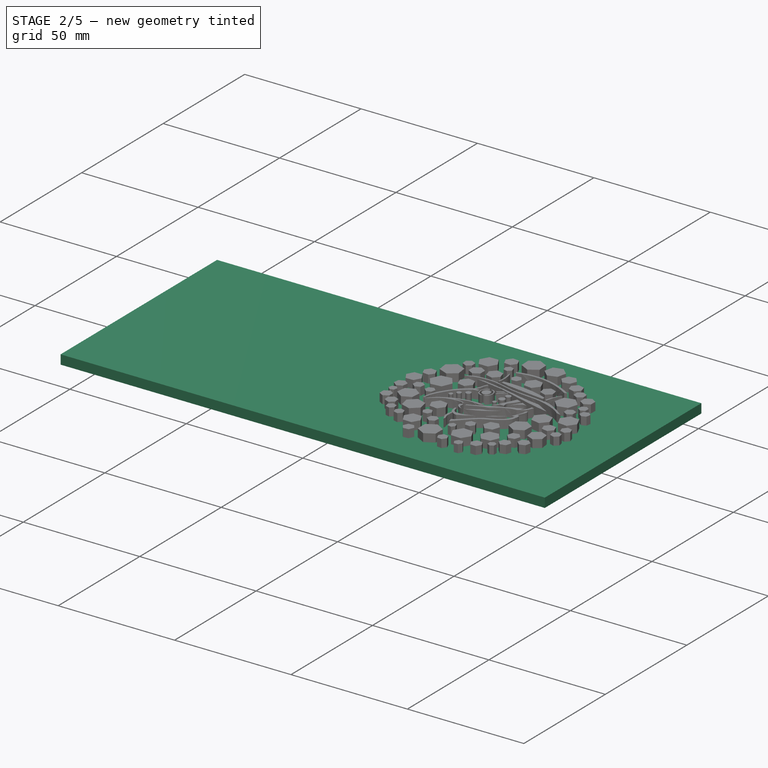
[diagram: stage 2 of 5 — iso view after this stage's code; geometry added in this stage tinted green]
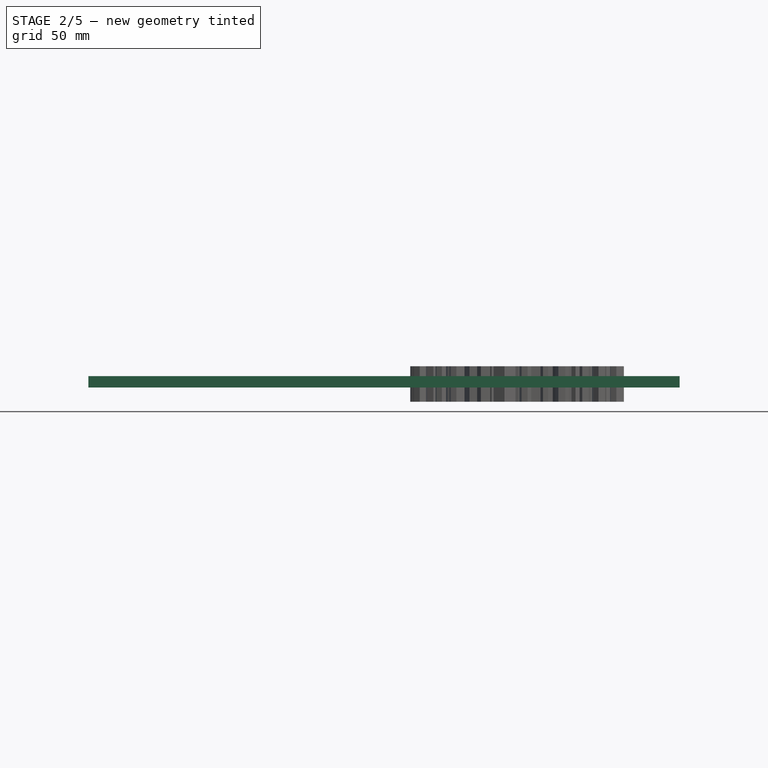
[diagram: stage 2 of 5 — front view after this stage's code; geometry added in this stage tinted green]
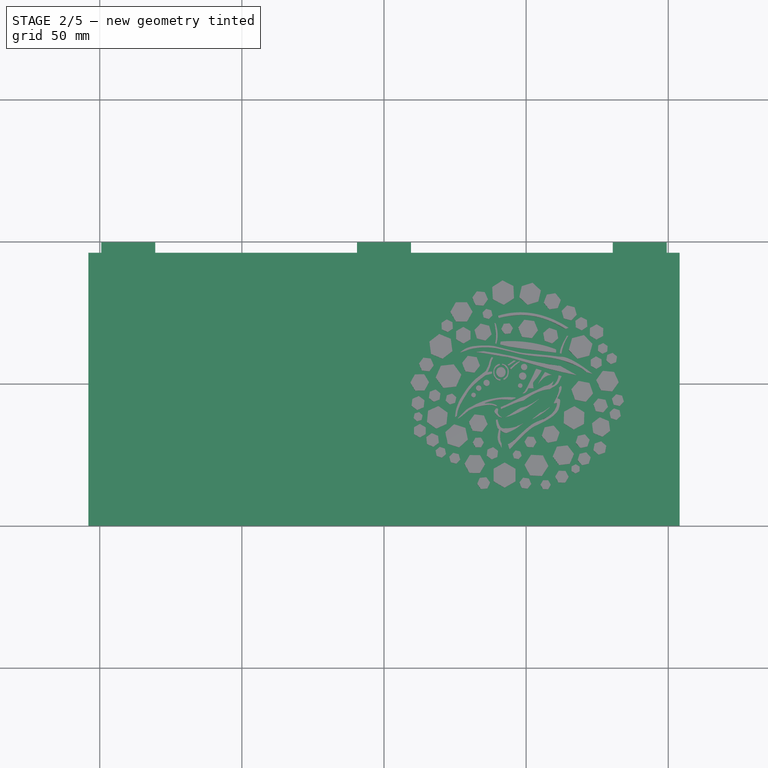
[diagram: stage 2 of 5 — top view after this stage's code; geometry added in this stage tinted green]
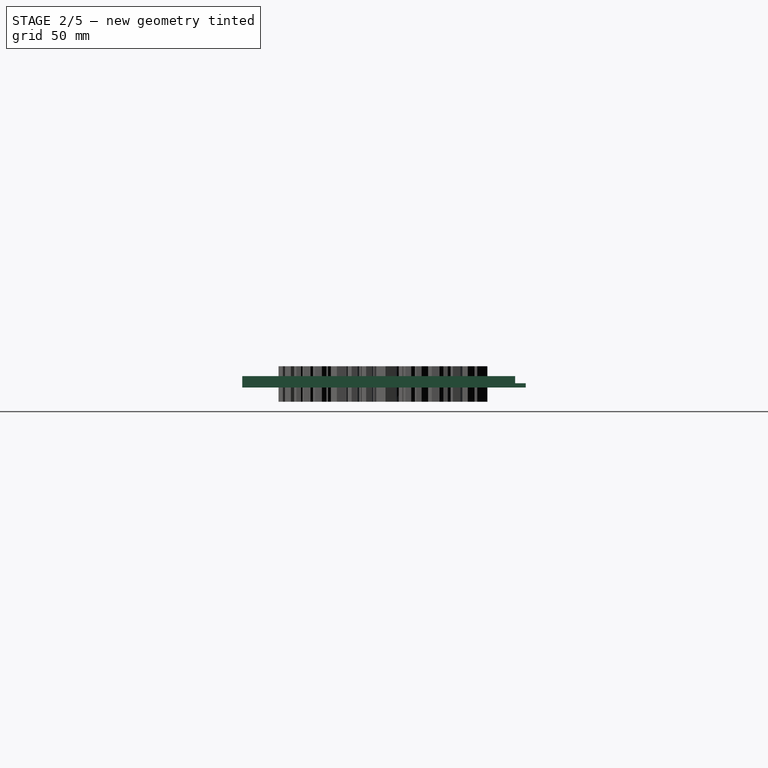
[diagram: stage 2 of 5 — right view after this stage's code; geometry added in this stage tinted green]
FEATURE [Sketcher::SketchObject] Sketch
  FullyConstrained = true
  MapMode = 5
  Support = -> [XY_Plane]
  sketch-geometry (4):
    g0: LineSegment StartX=-104 StartY=50 StartZ=0 EndX=104 EndY=50 EndZ=0
    g1: LineSegment StartX=104 StartY=50 StartZ=0 EndX=104 EndY=-50 EndZ=0
    g2: LineSegment StartX=104 StartY=-50 StartZ=0 EndX=-104 EndY=-50 EndZ=0
    g3: LineSegment StartX=-104 StartY=-50 StartZ=0 EndX=-104 EndY=50 EndZ=0
  constraints (11):
    c: Coincident(g0,g1)
    c: Coincident(g1,g2)
    c: Coincident(g2,g3)
    c: Coincident(g3,g0)
    c: Horizontal(g0)
    c: Horizontal(g2)
    c: Vertical(g1)
    c: Vertical(g3)
    c: DistanceY(g3,g3) = 100
    c: DistanceX(g0,g0) = 208
    c: Symmetric(g0,g2,g-1)
FEATURE [PartDesign::Pad] Pad  label="Main Pad"
  Direction = (0,0,1)
  Length = 4
  Length2 = 10
  Profile = -> Sketch
  ReferenceAxis = -> Sketch [N_Axis]
  Type = 0
FEATURE [Sketcher::SketchObject] Sketch001
  FullyConstrained = true
  MapMode = 5
  Placement = pos=(0,0,4) rot=(0,0,1;0rad)
  Support = -> [Pad]
  sketch-geometry (4):
    g0: LineSegment StartX=-104 StartY=50 StartZ=0 EndX=104 EndY=50 EndZ=0
    g1: LineSegment StartX=104 StartY=50 StartZ=0 EndX=104 EndY=46 EndZ=0
    g2: LineSegment StartX=104 StartY=46 StartZ=0 EndX=-104 EndY=46 EndZ=0
    g3: LineSegment StartX=-104 StartY=46 StartZ=0 EndX=-104 EndY=50 EndZ=0
  constraints (11):
    c: Coincident(g0,g1)
    c: Coincident(g1,g2)
    c: Coincident(g2,g3)
    c: Coincident(g3,g0)
    c: Horizontal(g2)
    c: Vertical(g1)
    c: Vertical(g3)
    c: DistanceX(g0,g0) = 208
    c: Symmetric(g0,g0,g-2)
    c: DistanceY(g1,g1) = 4
    c: DistanceY(g-1,g0) = 50
FEATURE [PartDesign::Pocket] Pocket  label="Cutaway Top"
  BaseFeature = -> Pad
  Direction = (0,0,-1)
  Length = 5
  Length2 = 5
  Profile = -> Sketch001
  ReferenceAxis = -> Sketch001 [N_Axis]
  Type = 1
FEATURE [Sketcher::SketchObject] Sketch002
  FullyConstrained = true
  MapMode = 5
  Placement = pos=(0,46,0) rot=(0,0.707107,0.707107;3.14159rad)
  Support = -> [Pocket]
  sketch-geometry (12):
    g0: LineSegment StartX=-9.5 StartY=1.5 StartZ=0 EndX=9.5 EndY=1.5 EndZ=0
    g1: LineSegment StartX=9.5 StartY=1.5 StartZ=0 EndX=9.5 EndY=0 EndZ=0
    g2: LineSegment StartX=9.5 StartY=0 StartZ=0 EndX=-9.5 EndY=0 EndZ=0
    g3: LineSegment StartX=-9.5 StartY=0 StartZ=0 EndX=-9.5 EndY=1.5 EndZ=0
    g4: LineSegment StartX=80.5 StartY=1.5 StartZ=0 EndX=99.5 EndY=1.5 EndZ=0
    g5: LineSegment StartX=99.5 StartY=1.5 StartZ=0 EndX=99.5 EndY=0 EndZ=0
    g6: LineSegment StartX=99.5 StartY=0 StartZ=0 EndX=80.5 EndY=0 EndZ=0
    g7: LineSegment StartX=80.5 StartY=0 StartZ=0 EndX=80.5 EndY=1.5 EndZ=0
    g8: LineSegment StartX=-99.5 StartY=1.5 StartZ=0 EndX=-80.5 EndY=1.5 EndZ=0
    g9: LineSegment StartX=-80.5 StartY=1.5 StartZ=0 EndX=-80.5 EndY=0 EndZ=0
    g10: LineSegment StartX=-80.5 StartY=0 StartZ=0 EndX=-99.5 EndY=0 EndZ=0
    g11: LineSegment StartX=-99.5 StartY=0 StartZ=0 EndX=-99.5 EndY=1.5 EndZ=0
  constraints (35):
    c: Coincident(g0,g1)
    c: Coincident(g1,g2)
    c: Coincident(g2,g3)
    c: Coincident(g3,g0)
    c: Horizontal(g0)
    c: Vertical(g1)
    c: Vertical(g3)
    c: Coincident(g4,g5)
    c: Coincident(g5,g6)
    c: Coincident(g6,g7)
    c: Coincident(g7,g4)
    c: Horizontal(g4)
    c: Horizontal(g6)
    c: Vertical(g5)
    c: Vertical(g7)
    c: Coincident(g8,g9)
    c: Coincident(g9,g10)
    c: Coincident(g10,g11)
    c: Coincident(g11,g8)
    c: Horizontal(g8)
    c: Horizontal(g10)
    c: Vertical(g9)
    c: Vertical(g11)
    c: PointOnObject(g9,g-1)
    c: DistanceX(g0,g0) = 19
    c: Equal(g4,g0)
    c: Equal(g0,g8)
    c: Equal(g11,g3)
    c: Equal(g3,g7)
    c: DistanceY(g1,g1) = 1.5
    c: DistanceY(g9,g2) = 0
    c: DistanceY(g1,g6) = 0
    c: Symmetric(g2,g1,g-2)
    c: DistanceX(g9,g-1) = 80.5
    c: DistanceX(g-1,g6) = 80.5
FEATURE [PartDesign::Pad] Pad001  label="Tabs"
  BaseFeature = -> Pocket
  Direction = (0,1,-2e-16)
  Length = 3.75
  Length2 = 10
  Profile = -> Sketch002
  ReferenceAxis = -> Sketch002 [N_Axis]
  Type = 0
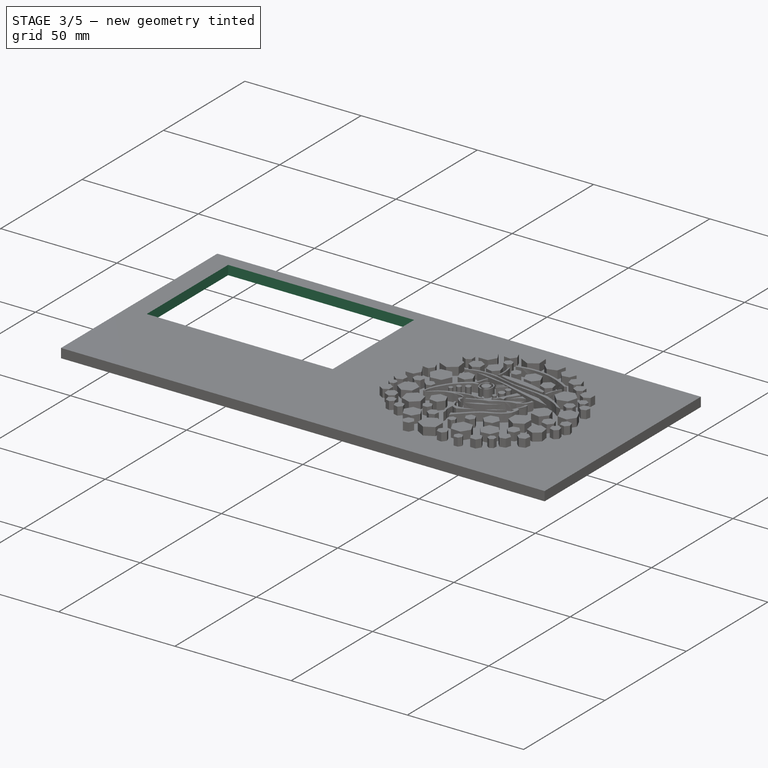
[diagram: stage 3 of 5 — iso view after this stage's code; geometry added in this stage tinted green]
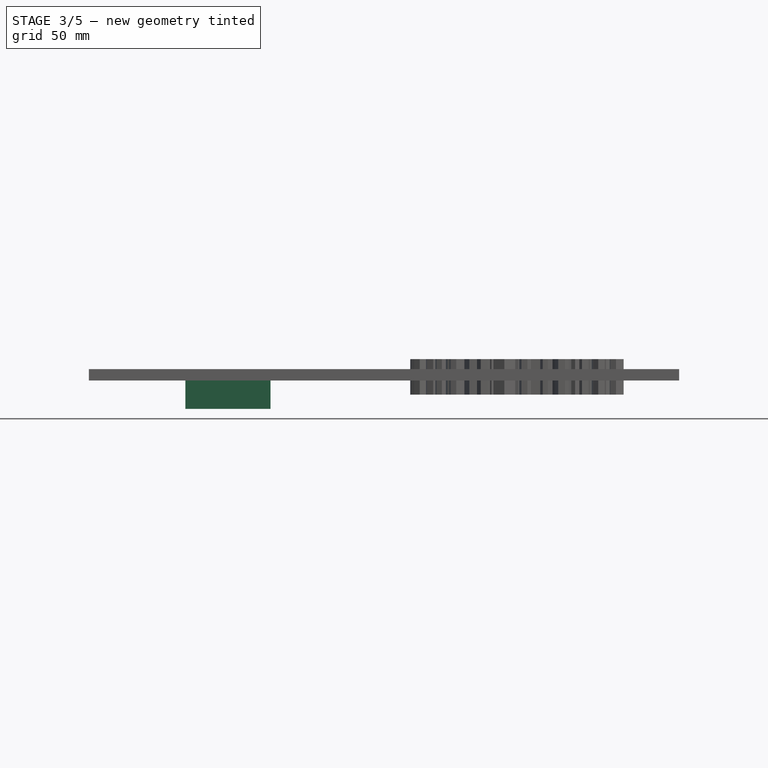
[diagram: stage 3 of 5 — front view after this stage's code; geometry added in this stage tinted green]
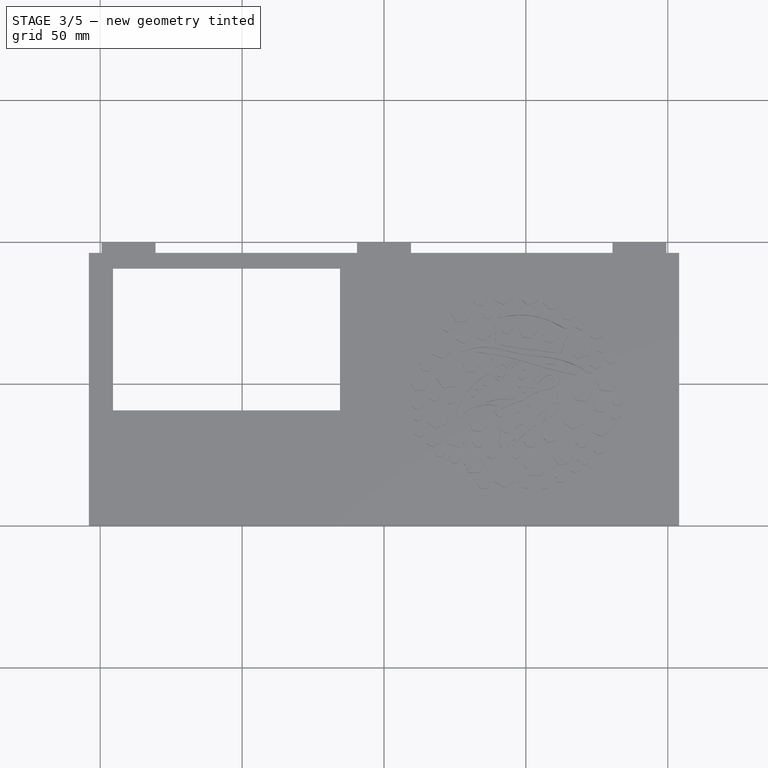
[diagram: stage 3 of 5 — top view after this stage's code; geometry added in this stage tinted green]
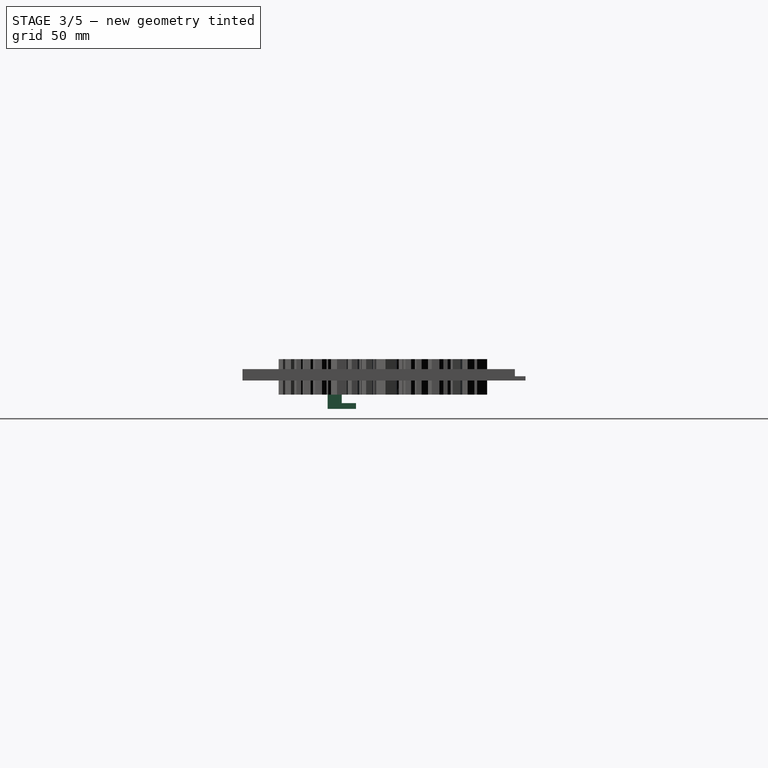
[diagram: stage 3 of 5 — right view after this stage's code; geometry added in this stage tinted green]
FEATURE [Sketcher::SketchObject] Sketch003
  FullyConstrained = true
  MapMode = 5
  Placement = pos=(0,0,4) rot=(0,0,1;0rad)
  Support = -> [Pad001]
  sketch-geometry (4):
    g0: LineSegment StartX=-95.5 StartY=40.5 StartZ=0 EndX=-15.5 EndY=40.5 EndZ=0
    g1: LineSegment StartX=-15.5 StartY=40.5 StartZ=0 EndX=-15.5 EndY=-9.5 EndZ=0
    g2: LineSegment StartX=-15.5 StartY=-9.5 StartZ=0 EndX=-95.5 EndY=-9.5 EndZ=0
    g3: LineSegment StartX=-95.5 StartY=-9.5 StartZ=0 EndX=-95.5 EndY=40.5 EndZ=0
  constraints (12):
    c: Coincident(g0,g1)
    c: Coincident(g1,g2)
    c: Coincident(g2,g3)
    c: Coincident(g3,g0)
    c: Horizontal(g0)
    c: Horizontal(g2)
    c: Vertical(g1)
    c: Vertical(g3)
    c: DistanceY(g1,g1) = 50
    c: DistanceX(g0,g0) = 80
    c: DistanceY(g-1,g0) = 40.5
    c: DistanceX(g1,g-1) = 15.5
FEATURE [PartDesign::Pocket] Pocket001  label="Screen Hole"
  BaseFeature = -> Pad001
  Direction = (0,0,-1)
  Length = 5
  Length2 = 5
  Profile = -> Sketch003
  ReferenceAxis = -> Sketch003 [N_Axis]
  Type = 0
FEATURE [Sketcher::SketchObject] Sketch004
  FullyConstrained = true
  MapMode = 5
  Placement = pos=(0,0,0) rot=(1,0,0;3.14159rad)
  Support = -> [Pocket001]
  sketch-geometry (4):
    g0: LineSegment StartX=-70 StartY=20 StartZ=0 EndX=-40 EndY=20 EndZ=0
    g1: LineSegment StartX=-40 StartY=20 StartZ=0 EndX=-40 EndY=15 EndZ=0
    g2: LineSegment StartX=-40 StartY=15 StartZ=0 EndX=-70 EndY=15 EndZ=0
    g3: LineSegment StartX=-70 StartY=15 StartZ=0 EndX=-70 EndY=20 EndZ=0
  constraints (12):
    c: Coincident(g0,g1)
    c: Coincident(g1,g2)
    c: Coincident(g2,g3)
    c: Coincident(g3,g0)
    c: Horizontal(g0)
    c: Horizontal(g2)
    c: Vertical(g1)
    c: Vertical(g3)
    c: DistanceY(g-1,g1) = 15
    c: DistanceY(g1,g1) = 5
    c: DistanceX(g1,g-1) = 40
    c: DistanceX(g2,g2) = 30
FEATURE [PartDesign::Pad] Pad002  label="Screen Support Base"
  BaseFeature = -> Pocket001
  Direction = (0,0,-1)
  Length = 10
  Length2 = 10
  Profile = -> Sketch004
  ReferenceAxis = -> Sketch004 [N_Axis]
  Type = 0
FEATURE [Sketcher::SketchObject] Sketch005
  FullyConstrained = true
  MapMode = 5
  Placement = pos=(0,-15,0) rot=(0,0.707107,0.707107;3.14159rad)
  Support = -> [Pad002]
  sketch-geometry (4):
    g0: LineSegment StartX=40 StartY=-10 StartZ=0 EndX=70 EndY=-10 EndZ=0
    g1: LineSegment StartX=70 StartY=-10 StartZ=0 EndX=70 EndY=-8 EndZ=0
    g2: LineSegment StartX=70 StartY=-8 StartZ=0 EndX=40 EndY=-8 EndZ=0
    g3: LineSegment StartX=40 StartY=-8 StartZ=0 EndX=40 EndY=-10 EndZ=0
  constraints (12):
    c: Coincident(g0,g1)
    c: Coincident(g1,g2)
    c: Coincident(g2,g3)
    c: Coincident(g3,g0)
    c: Horizontal(g0)
    c: Horizontal(g2)
    c: Vertical(g1)
    c: Vertical(g3)
    c: DistanceX(g2,g2) = 30
    c: DistanceX(g-1,g2) = 40
    c: DistanceY(g3,g3) = 2
    c: DistanceY(g2,g-1) = 8
FEATURE [PartDesign::Pad] Pad003  label="Screen Support Arm"
  BaseFeature = -> Pad002
  Direction = (0,1,-2e-16)
  Length = 5
  Length2 = 10
  Profile = -> Sketch005
  ReferenceAxis = -> Sketch005 [N_Axis]
  Type = 0
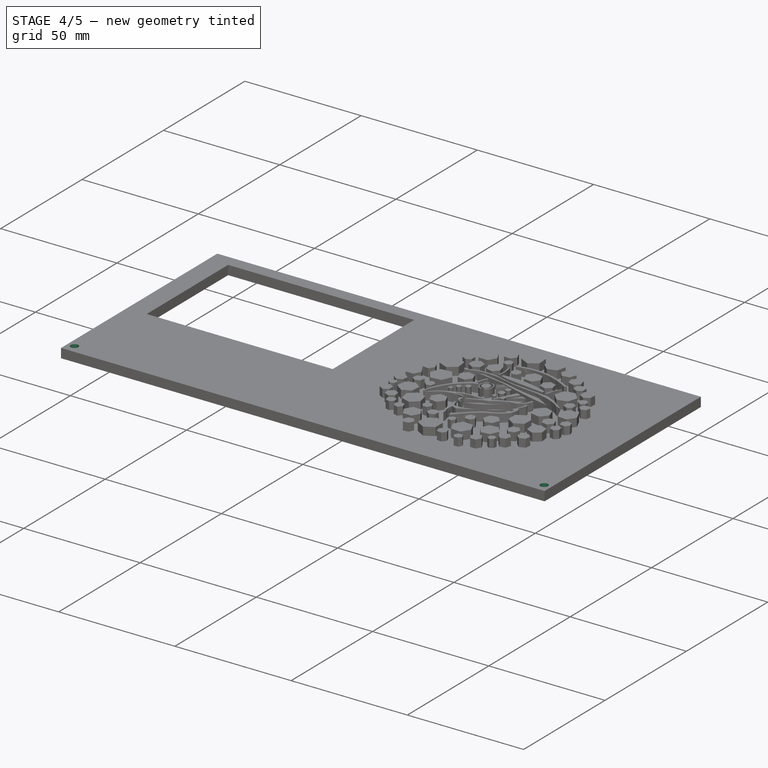
[diagram: stage 4 of 5 — iso view after this stage's code; geometry added in this stage tinted green]
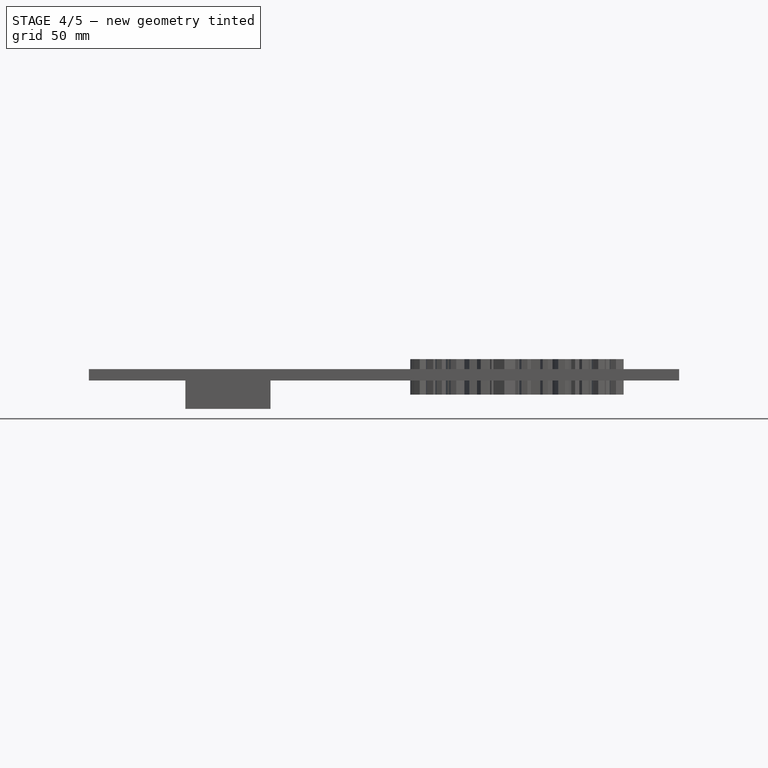
[diagram: stage 4 of 5 — front view after this stage's code; geometry added in this stage tinted green]
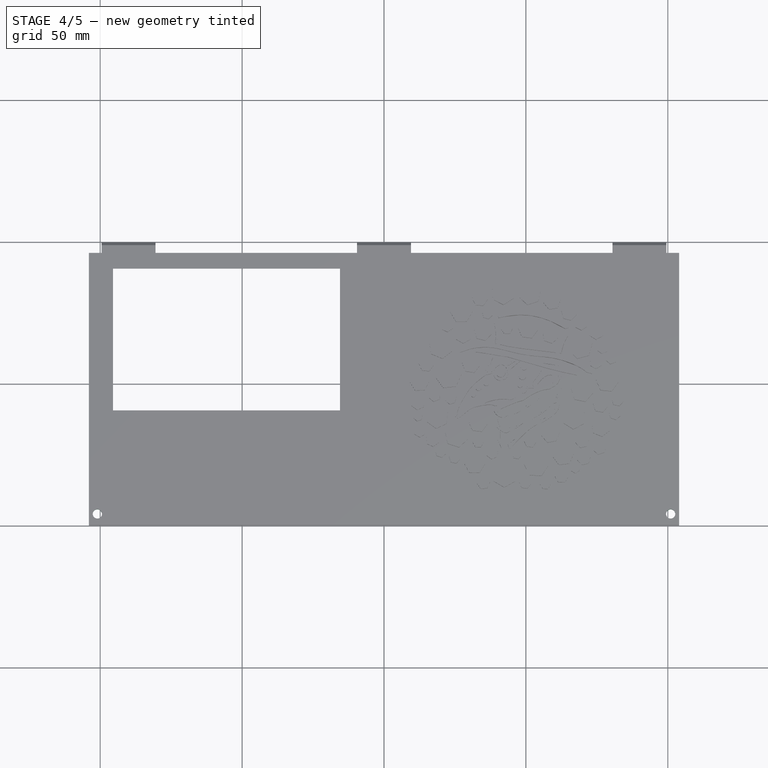
[diagram: stage 4 of 5 — top view after this stage's code; geometry added in this stage tinted green]
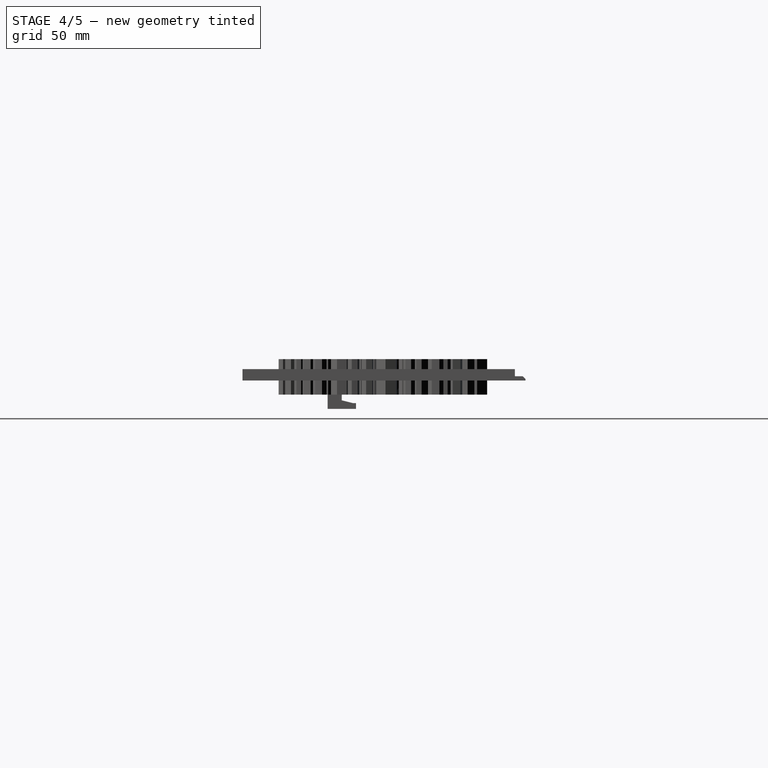
[diagram: stage 4 of 5 — right view after this stage's code; geometry added in this stage tinted green]
FEATURE [PartDesign::Chamfer] Chamfer  label="Screen Support Chamfer"
  Angle = 45
  Base = -> Pad003 [Edge56]
  BaseFeature = -> Pad003
  ChamferType = 1
  FlipDirection = false
  Size = 1
  Size2 = 4
  SupportTransform = false
  UseAllEdges = false
FEATURE [Sketcher::SketchObject] Sketch006
  FullyConstrained = true
  MapMode = 5
  Placement = pos=(0,0,4) rot=(0,0,1;0rad)
  Support = -> [Chamfer]
  sketch-geometry (2):
    g0: Circle CenterX=-101 CenterY=-46 CenterZ=0 NormalX=0 NormalY=0 NormalZ=1 AngleXU=0 Radius=1.625
    g1: Circle CenterX=101 CenterY=-46 CenterZ=0 NormalX=0 NormalY=0 NormalZ=1 AngleXU=0 Radius=1.625
  constraints (5):
    c: DistanceY(g1,g-1) = 46
    c: Symmetric(g0,g1,g-2)
    c: Equal(g0,g1)
    c: Diameter(g0) = 3.25
    c: DistanceX(g-1,g1) = 101
FEATURE [PartDesign::Pocket] Pocket002  label="Corner Screw Holes"
  BaseFeature = -> Chamfer
  Direction = (0,0,-1)
  Length = 5
  Length2 = 5
  Profile = -> Sketch006
  ReferenceAxis = -> Sketch006 [N_Axis]
  Type = 0
FEATURE [PartDesign::Chamfer] Chamfer001
  Angle = 45
  Base = -> Pocket002 [Edge96,Edge91,Edge86]
  BaseFeature = -> Pocket002
  ChamferType = 0
  FlipDirection = false
  Size = 1
  Size2 = 1
  SupportTransform = false
  UseAllEdges = false
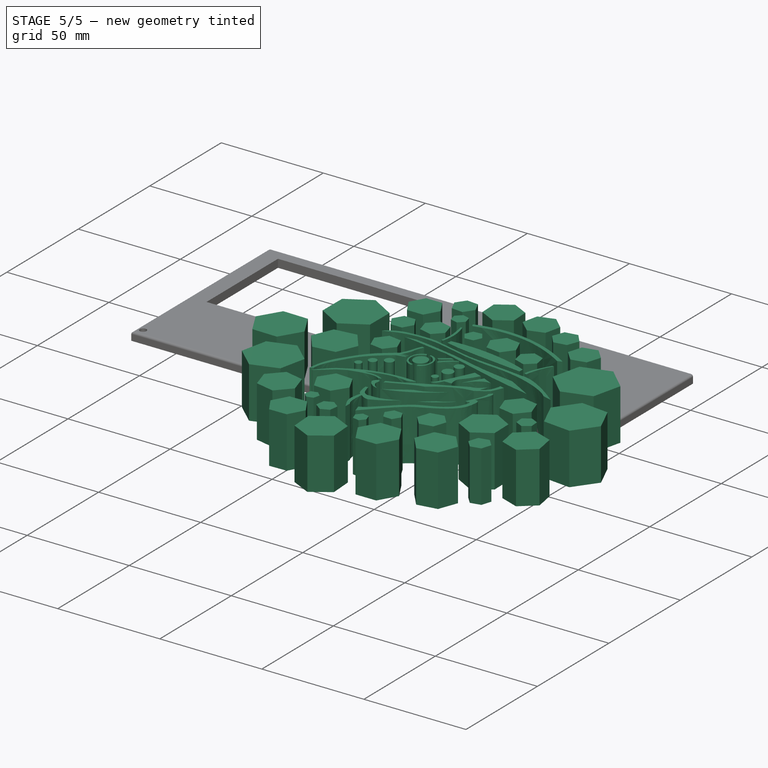
[diagram: stage 5 of 5 — iso view after this stage's code; geometry added in this stage tinted green]
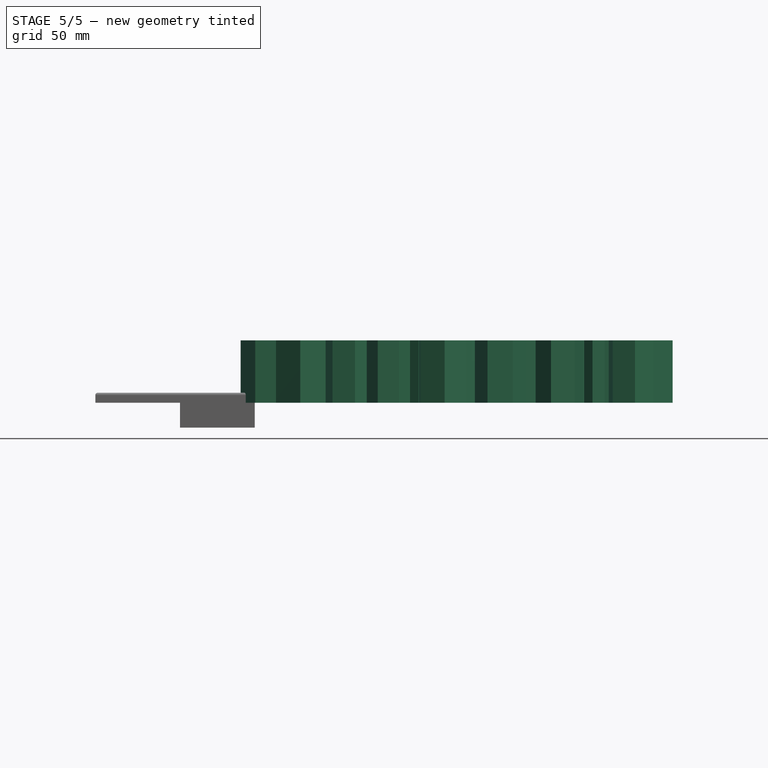
[diagram: stage 5 of 5 — front view after this stage's code; geometry added in this stage tinted green]
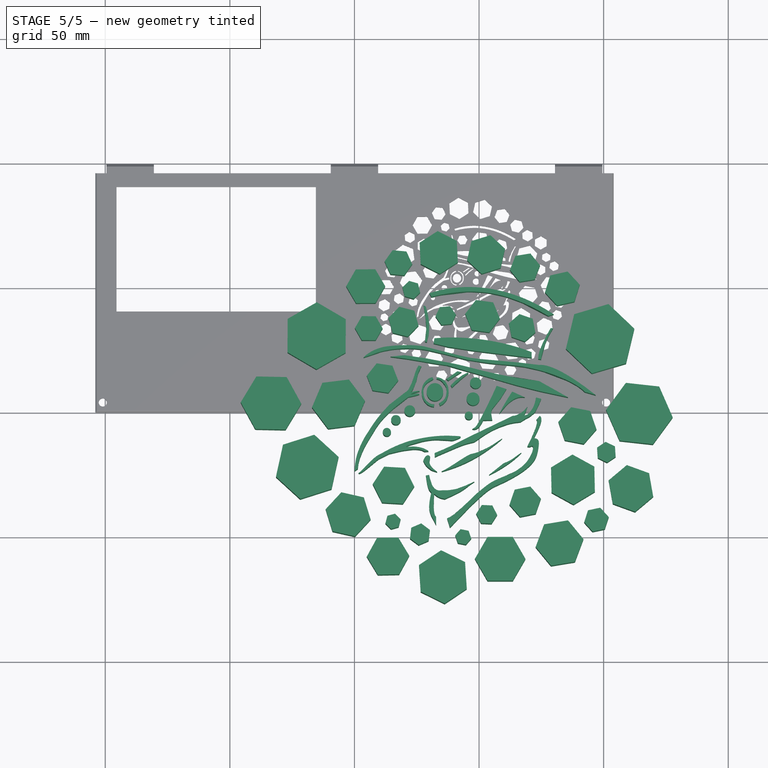
[diagram: stage 5 of 5 — top view after this stage's code; geometry added in this stage tinted green]
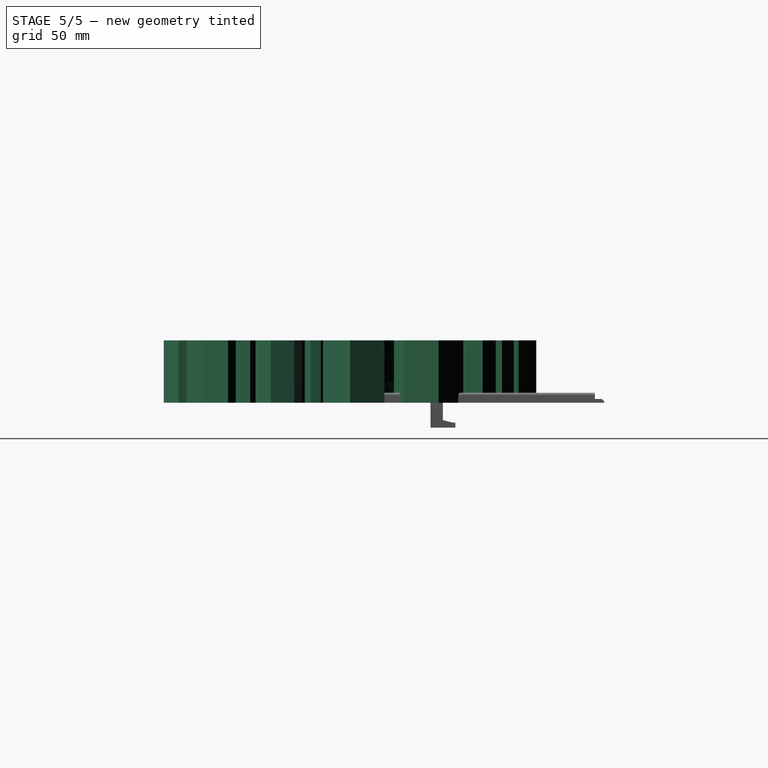
[diagram: stage 5 of 5 — right view after this stage's code; geometry added in this stage tinted green]
FEATURE [PartDesign::Fillet] Fillet
  Base = -> Chamfer001 [Edge31,Edge29,Edge30]
  BaseFeature = -> Chamfer001
  Radius = 1
  SupportTransform = false
  UseAllEdges = false
FEATURE [PartDesign::Body] Body
  Group = -> [Sketch,Pad,Sketch001,Pocket,Sketch002,Pad001,Sketch003,Pocket001,Sketch004,Pad002,Sketch005,Pad003,Chamfer,Sketch006,Pocket002,Chamfer001,Fillet]
  Origin = -> Origin
  Tip = -> Fillet
FEATURE [Sketcher::SketchObject] Sketch009
  FullyConstrained = false
  sketch-geometry (421):
    g0: BSplineCurve PolesCount=4 KnotsCount=2 Degree=3 IsPeriodic=0
    g1: BSplineCurve PolesCount=4 KnotsCount=2 Degree=3 IsPeriodic=0
    g2: BSplineCurve PolesCount=2 KnotsCount=2 Degree=1 IsPeriodic=0
    g3: BSplineCurve PolesCount=4 KnotsCount=2 Degree=3 IsPeriodic=0
    g4: BSplineCurve PolesCount=4 KnotsCount=2 Degree=3 IsPeriodic=0
    g5: BSplineCurve PolesCount=4 KnotsCount=2 Degree=3 IsPeriodic=0
    g6: BSplineCurve PolesCount=4 KnotsCount=2 Degree=3 IsPeriodic=0
    g7: BSplineCurve PolesCount=4 KnotsCount=2 Degree=3 IsPeriodic=0
    g8: BSplineCurve PolesCount=4 KnotsCount=2 Degree=3 IsPeriodic=0
    g9: BSplineCurve PolesCount=2 KnotsCount=2 Degree=1 IsPeriodic=0
    g10: BSplineCurve PolesCount=4 KnotsCount=2 Degree=3 IsPeriodic=0
    g11: BSplineCurve PolesCount=4 KnotsCount=2 Degree=3 IsPeriodic=0
    g12: BSplineCurve PolesCount=4 KnotsCount=2 Degree=3 IsPeriodic=0
    g13: BSplineCurve PolesCount=4 KnotsCount=2 Degree=3 IsPeriodic=0
    g14: BSplineCurve PolesCount=2 KnotsCount=2 Degree=1 IsPeriodic=0
    g15: BSplineCurve PolesCount=4 KnotsCount=2 Degree=3 IsPeriodic=0
    g16: BSplineCurve PolesCount=4 KnotsCount=2 Degree=3 IsPeriodic=0
    g17: BSplineCurve PolesCount=4 KnotsCount=2 Degree=3 IsPeriodic=0
    g18: BSplineCurve PolesCount=4 KnotsCount=2 Degree=3 IsPeriodic=0
    g19: BSplineCurve PolesCount=4 KnotsCount=2 Degree=3 IsPeriodic=0
    g20: BSplineCurve PolesCount=2 KnotsCount=2 Degree=1 IsPeriodic=0
    g21: BSplineCurve PolesCount=4 KnotsCount=2 Degree=3 IsPeriodic=0
    g22: BSplineCurve PolesCount=4 KnotsCount=2 Degree=3 IsPeriodic=0
    g23: BSplineCurve PolesCount=2 KnotsCount=2 Degree=1 IsPeriodic=0
    g24: BSplineCurve PolesCount=4 KnotsCount=2 Degree=3 IsPeriodic=0
    g25: BSplineCurve PolesCount=4 KnotsCount=2 Degree=3 IsPeriodic=0
    g26: BSplineCurve PolesCount=4 KnotsCount=2 Degree=3 IsPeriodic=0
    g27: BSplineCurve PolesCount=2 KnotsCount=2 Degree=1 IsPeriodic=0
    g28: BSplineCurve PolesCount=4 KnotsCount=2 Degree=3 IsPeriodic=0
    g29: BSplineCurve PolesCount=4 KnotsCount=2 Degree=3 IsPeriodic=0
    g30: BSplineCurve PolesCount=4 KnotsCount=2 Degree=3 IsPeriodic=0
    g31: BSplineCurve PolesCount=2 KnotsCount=2 Degree=1 IsPeriodic=0
    g32: BSplineCurve PolesCount=7 KnotsCount=4 Degree=2 IsPeriodic=0
    g33: BSplineCurve PolesCount=4 KnotsCount=2 Degree=3 IsPeriodic=0
    g34: BSplineCurve PolesCount=4 KnotsCount=2 Degree=3 IsPeriodic=0
    g35: BSplineCurve PolesCount=4 KnotsCount=2 Degree=3 IsPeriodic=0
    g36: BSplineCurve PolesCount=4 KnotsCount=2 Degree=3 IsPeriodic=0
    g37: BSplineCurve PolesCount=4 KnotsCount=2 Degree=3 IsPeriodic=0
    g38: BSplineCurve PolesCount=4 KnotsCount=2 Degree=3 IsPeriodic=0
    g39: BSplineCurve PolesCount=4 KnotsCount=2 Degree=3 IsPeriodic=0
    g40: BSplineCurve PolesCount=4 KnotsCount=2 Degree=3 IsPeriodic=0
    g41: BSplineCurve PolesCount=4 KnotsCount=2 Degree=3 IsPeriodic=0
    g42: BSplineCurve PolesCount=4 KnotsCount=2 Degree=3 IsPeriodic=0
    g43: BSplineCurve PolesCount=4 KnotsCount=2 Degree=3 IsPeriodic=0
    g44: BSplineCurve PolesCount=4 KnotsCount=2 Degree=3 IsPeriodic=0
    g45: BSplineCurve PolesCount=4 KnotsCount=2 Degree=3 IsPeriodic=0
    g46: BSplineCurve PolesCount=4 KnotsCount=2 Degree=3 IsPeriodic=0
    g47: BSplineCurve PolesCount=4 KnotsCount=2 Degree=3 IsPeriodic=0
    g48: BSplineCurve PolesCount=4 KnotsCount=2 Degree=3 IsPeriodic=0
    g49: BSplineCurve PolesCount=4 KnotsCount=2 Degree=3 IsPeriodic=0
    g50: BSplineCurve PolesCount=4 KnotsCount=2 Degree=3 IsPeriodic=0
    g51: BSplineCurve PolesCount=4 KnotsCount=2 Degree=3 IsPeriodic=0
    g52: BSplineCurve PolesCount=4 KnotsCount=2 Degree=3 IsPeriodic=0
    g53: BSplineCurve PolesCount=4 KnotsCount=2 Degree=3 IsPeriodic=0
    g54: BSplineCurve PolesCount=4 KnotsCount=2 Degree=3 IsPeriodic=0
    g55: BSplineCurve PolesCount=4 KnotsCount=2 Degree=3 IsPeriodic=0
    g56: BSplineCurve PolesCount=4 KnotsCount=2 Degree=3 IsPeriodic=0
    g57: BSplineCurve PolesCount=4 KnotsCount=2 Degree=3 IsPeriodic=0
    g58: BSplineCurve PolesCount=2 KnotsCount=2 Degree=1 IsPeriodic=0
    g59: BSplineCurve PolesCount=4 KnotsCount=2 Degree=3 IsPeriodic=0
    g60: BSplineCurve PolesCount=2 KnotsCount=2 Degree=1 IsPeriodic=0
    g61: BSplineCurve PolesCount=2 KnotsCount=2 Degree=1 IsPeriodic=0
    g62: BSplineCurve PolesCount=4 KnotsCount=2 Degree=3 IsPeriodic=0
    g63: BSplineCurve PolesCount=2 KnotsCount=2 Degree=1 IsPeriodic=0
    g64: BSplineCurve PolesCount=4 KnotsCount=2 Degree=3 IsPeriodic=0
    g65: BSplineCurve PolesCount=2 KnotsCount=2 Degree=1 IsPeriodic=0
    g66: BSplineCurve PolesCount=2 KnotsCount=2 Degree=1 IsPeriodic=0
    g67: BSplineCurve PolesCount=2 KnotsCount=2 Degree=1 IsPeriodic=0
    g68: BSplineCurve PolesCount=2 KnotsCount=2 Degree=1 IsPeriodic=0
    g69: BSplineCurve PolesCount=4 KnotsCount=2 Degree=3 IsPeriodic=0
    g70: BSplineCurve PolesCount=4 KnotsCount=2 Degree=3 IsPeriodic=0
    g71: BSplineCurve PolesCount=4 KnotsCount=2 Degree=3 IsPeriodic=0
    g72: BSplineCurve PolesCount=4 KnotsCount=2 Degree=3 IsPeriodic=0
    g73: BSplineCurve PolesCount=2 KnotsCount=2 Degree=1 IsPeriodic=0
    g74: BSplineCurve PolesCount=4 KnotsCount=2 Degree=3 IsPeriodic=0
    g75: BSplineCurve PolesCount=4 KnotsCount=2 Degree=3 IsPeriodic=0
    g76: BSplineCurve PolesCount=4 KnotsCount=2 Degree=3 IsPeriodic=0
    g77: BSplineCurve PolesCount=2 KnotsCount=2 Degree=1 IsPeriodic=0
    g78: BSplineCurve PolesCount=4 KnotsCount=2 Degree=3 IsPeriodic=0
    g79: BSplineCurve PolesCount=2 KnotsCount=2 Degree=1 IsPeriodic=0
    g80: BSplineCurve PolesCount=4 KnotsCount=2 Degree=3 IsPeriodic=0
    g81: BSplineCurve PolesCount=2 KnotsCount=2 Degree=1 IsPeriodic=0
    g82: BSplineCurve PolesCount=4 KnotsCount=2 Degree=3 IsPeriodic=0
    g83: BSplineCurve PolesCount=2 KnotsCount=2 Degree=1 IsPeriodic=0
    g84: BSplineCurve PolesCount=4 KnotsCount=2 Degree=3 IsPeriodic=0
    g85: BSplineCurve PolesCount=4 KnotsCount=2 Degree=3 IsPeriodic=0
    g86: BSplineCurve PolesCount=2 KnotsCount=2 Degree=1 IsPeriodic=0
    g87: BSplineCurve PolesCount=4 KnotsCount=2 Degree=3 IsPeriodic=0
    g88: BSplineCurve PolesCount=4 KnotsCount=2 Degree=3 IsPeriodic=0
    g89: BSplineCurve PolesCount=4 KnotsCount=2 Degree=3 IsPeriodic=0
    g90: BSplineCurve PolesCount=4 KnotsCount=2 Degree=3 IsPeriodic=0
    g91: BSplineCurve PolesCount=4 KnotsCount=2 Degree=3 IsPeriodic=0
    g92: BSplineCurve PolesCount=4 KnotsCount=2 Degree=3 IsPeriodic=0
    g93: BSplineCurve PolesCount=4 KnotsCount=2 Degree=3 IsPeriodic=0
    g94: BSplineCurve PolesCount=4 KnotsCount=2 Degree=3 IsPeriodic=0
    g95: BSplineCurve PolesCount=4 KnotsCount=2 Degree=3 IsPeriodic=0
    g96: BSplineCurve PolesCount=4 KnotsCount=2 Degree=3 IsPeriodic=0
    g97: BSplineCurve PolesCount=4 KnotsCount=2 Degree=3 IsPeriodic=0
    g98: BSplineCurve PolesCount=4 KnotsCount=2 Degree=3 IsPeriodic=0
    g99: BSplineCurve PolesCount=4 KnotsCount=2 Degree=3 IsPeriodic=0
    g100: BSplineCurve PolesCount=4 KnotsCount=2 Degree=3 IsPeriodic=0
    g101: BSplineCurve PolesCount=4 KnotsCount=2 Degree=3 IsPeriodic=0
    g102: BSplineCurve PolesCount=4 KnotsCount=2 Degree=3 IsPeriodic=0
    g103: BSplineCurve PolesCount=2 KnotsCount=2 Degree=1 IsPeriodic=0
    g104: BSplineCurve PolesCount=4 KnotsCount=2 Degree=3 IsPeriodic=0
    g105: BSplineCurve PolesCount=2 KnotsCount=2 Degree=1 IsPeriodic=0
    g106: BSplineCurve PolesCount=4 KnotsCount=2 Degree=3 IsPeriodic=0
    g107: BSplineCurve PolesCount=4 KnotsCount=2 Degree=3 IsPeriodic=0
    g108: BSplineCurve PolesCount=4 KnotsCount=2 Degree=3 IsPeriodic=0
    g109: BSplineCurve PolesCount=4 KnotsCount=2 Degree=3 IsPeriodic=0
    g110: BSplineCurve PolesCount=4 KnotsCount=2 Degree=3 IsPeriodic=0
    g111: BSplineCurve PolesCount=4 KnotsCount=2 Degree=3 IsPeriodic=0
    g112: BSplineCurve PolesCount=4 KnotsCount=2 Degree=3 IsPeriodic=0
    g113: BSplineCurve PolesCount=4 KnotsCount=2 Degree=3 IsPeriodic=0
    g114: BSplineCurve PolesCount=4 KnotsCount=2 Degree=3 IsPeriodic=0
    g115: BSplineCurve PolesCount=4 KnotsCount=2 Degree=3 IsPeriodic=0
    g116: BSplineCurve PolesCount=4 KnotsCount=2 Degree=3 IsPeriodic=0
    g117: BSplineCurve PolesCount=4 KnotsCount=2 Degree=3 IsPeriodic=0
    g118: BSplineCurve PolesCount=2 KnotsCount=2 Degree=1 IsPeriodic=0
    g119: BSplineCurve PolesCount=2 KnotsCount=2 Degree=1 IsPeriodic=0
    g120: BSplineCurve PolesCount=4 KnotsCount=2 Degree=3 IsPeriodic=0
    g121: BSplineCurve PolesCount=4 KnotsCount=2 Degree=3 IsPeriodic=0
    g122: BSplineCurve PolesCount=4 KnotsCount=2 Degree=3 IsPeriodic=0
    g123: BSplineCurve PolesCount=2 KnotsCount=2 Degree=1 IsPeriodic=0
    g124: BSplineCurve PolesCount=4 KnotsCount=2 Degree=3 IsPeriodic=0
    g125: BSplineCurve PolesCount=4 KnotsCount=2 Degree=3 IsPeriodic=0
    g126: BSplineCurve PolesCount=4 KnotsCount=2 Degree=3 IsPeriodic=0
    g127: BSplineCurve PolesCount=4 KnotsCount=2 Degree=3 IsPeriodic=0
    g128: BSplineCurve PolesCount=4 KnotsCount=2 Degree=3 IsPeriodic=0
    g129: BSplineCurve PolesCount=4 KnotsCount=2 Degree=3 IsPeriodic=0
    g130: BSplineCurve PolesCount=4 KnotsCount=2 Degree=3 IsPeriodic=0
    g131: BSplineCurve PolesCount=4 KnotsCount=2 Degree=3 IsPeriodic=0
    g132: BSplineCurve PolesCount=4 KnotsCount=2 Degree=3 IsPeriodic=0
    g133: BSplineCurve PolesCount=4 KnotsCount=2 Degree=3 IsPeriodic=0
    g134: BSplineCurve PolesCount=4 KnotsCount=2 Degree=3 IsPeriodic=0
    g135: BSplineCurve PolesCount=4 KnotsCount=2 Degree=3 IsPeriodic=0
    g136: BSplineCurve PolesCount=4 KnotsCount=2 Degree=3 IsPeriodic=0
    g137: BSplineCurve PolesCount=4 KnotsCount=2 Degree=3 IsPeriodic=0
    g138: BSplineCurve PolesCount=4 KnotsCount=2 Degree=3 IsPeriodic=0
    g139: BSplineCurve PolesCount=4 KnotsCount=2 Degree=3 IsPeriodic=0
    g140: BSplineCurve PolesCount=4 KnotsCount=2 Degree=3 IsPeriodic=0
    g141: BSplineCurve PolesCount=4 KnotsCount=2 Degree=3 IsPeriodic=0
    g142: BSplineCurve PolesCount=4 KnotsCount=2 Degree=3 IsPeriodic=0
    g143: BSplineCurve PolesCount=4 KnotsCount=2 Degree=3 IsPeriodic=0
    g144: BSplineCurve PolesCount=4 KnotsCount=2 Degree=3 IsPeriodic=0
    g145: LineSegment StartX=32.9008 StartY=-36.9258 StartZ=0 EndX=33.179 EndY=-36.2223 EndZ=0
    g146: LineSegment StartX=32.0217 StartY=-47.0201 StartZ=0 EndX=31.8737 EndY=-48.1203 EndZ=0
    g147: LineSegment StartX=33.9492 StartY=-46.6891 StartZ=0 EndX=34.2984 EndY=-47.6727 EndZ=0
    g148: LineSegment StartX=1.6324 StartY=-74.6999 StartZ=0 EndX=2.61244 EndY=-73.8941 EndZ=0
    g149: LineSegment StartX=0.000201 StartY=-73.7972 StartZ=0 EndX=1.36963 EndY=-72.8991 EndZ=0
    g150: LineSegment StartX=37.5501 StartY=-24.0455 StartZ=0 EndX=47.6027 EndY=-25.5686 EndZ=0
    g151: LineSegment StartX=47.6027 StartY=-25.5686 StartZ=0 EndX=60.5492 EndY=-27.1679 EndZ=0
    g152: LineSegment StartX=29.7676 StartY=-67.5717 StartZ=0 EndX=30.3421 EndY=-68.0464 EndZ=0
    g153: LineSegment StartX=32.1605 StartY=-66.6452 StartZ=0 EndX=32.273 EndY=-68.1946 EndZ=0
    g154: LineSegment StartX=32.7972 StartY=-92.3098 StartZ=0 EndX=32.7972 EndY=-95.4829 EndZ=0
    g155: LineSegment StartX=37.1703 StartY=-92.8002 StartZ=0 EndX=38.3172 EndY=-96.4843 EndZ=0
    g156: LineSegment StartX=70.3127 StartY=-51.9541 StartZ=0 EndX=72.466 EndY=-50.1961 EndZ=0
    g157: LineSegment StartX=73.018 StartY=-53.2322 StartZ=0 EndX=74.391 EndY=-51.6978 EndZ=0
    g158: LineSegment StartX=29.9582 StartY=-75.4029 StartZ=0 EndX=28.673 EndY=-75.6693 EndZ=0
    g159: LineSegment StartX=30.8174 StartY=-73.4412 StartZ=0 EndX=29.3478 EndY=-72.2743 EndZ=0
    g160: LineSegment StartX=31.314 StartY=-36.1845 StartZ=0 EndX=31.664 EndY=-36.9667 EndZ=0
    g161: LineSegment StartX=23.2084 StartY=-41.5175 StartZ=0 EndX=23.7636 EndY=-40.3598 EndZ=0
    g162: LineSegment StartX=3.62995 StartY=-28.2843 StartZ=0 EndX=7.21785 EndY=-27.119 EndZ=0
    g163: LineSegment StartX=14.4674 StartY=-27.9621 StartZ=0 EndX=20.0642 EndY=-27.3657 EndZ=0
    g164: LineSegment StartX=74.0911 StartY=-37.7513 StartZ=0 EndX=85.714 EndY=-44.2751 EndZ=0
    g165: LineSegment StartX=92.3682 StartY=-42.0819 StartZ=0 EndX=96.7793 EndY=-43.3509 EndZ=0
    g166: LineSegment StartX=30.0362 StartY=-2.52315 StartZ=0 EndX=30.8761 EndY=-3.99306 EndZ=0
    g167: LineSegment StartX=27.7316 StartY=-7.43706 StartZ=0 EndX=28.5728 EndY=-7.77306 EndZ=0
    g168: LineSegment StartX=78.7529 StartY=-16.4872 StartZ=0 EndX=79.698 EndY=-16.5923 EndZ=0
    g169: LineSegment StartX=77.8081 StartY=-11.6576 StartZ=0 EndX=79.908 EndY=-10.9226 EndZ=0
    g170: Circle CenterX=13.0082 CenterY=-58.2132 CenterZ=0 NormalX=0 NormalY=0 NormalZ=1 AngleXU=0 Radius=1.64021
    g171: Circle CenterX=16.6246 CenterY=-53.3498 CenterZ=0 NormalX=0 NormalY=0 NormalZ=1 AngleXU=0 Radius=1.9339
    g172: Circle CenterX=22.1739 CenterY=-49.6711 CenterZ=0 NormalX=0 NormalY=0 NormalZ=1 AngleXU=0 Radius=2.18141
    g173: Circle CenterX=45.8818 CenterY=-51.5905 CenterZ=0 NormalX=0 NormalY=0 NormalZ=1 AngleXU=0 Radius=1.60216
    g174: Circle CenterX=47.5782 CenterY=-44.9156 CenterZ=0 NormalX=0 NormalY=0 NormalZ=1 AngleXU=0 Radius=2.60301
    g175: Circle CenterX=48.6067 CenterY=-38.4965 CenterZ=0 NormalX=0 NormalY=0 NormalZ=1 AngleXU=0 Radius=2.23348
    g176: LineSegment StartX=54.0573 StartY=-18.2307 StartZ=0 EndX=58.3527 EndY=-12.6713 EndZ=0
    g177: LineSegment StartX=58.3527 StartY=-12.6713 StartZ=0 EndX=55.6859 EndY=-6.1716 EndZ=0
    g178: LineSegment StartX=55.6859 StartY=-6.1716 StartZ=0 EndX=48.7235 EndY=-5.23134 EndZ=0
    g179: LineSegment StartX=48.7235 StartY=-5.23134 StartZ=0 EndX=44.4281 EndY=-10.7908 EndZ=0
    g180: LineSegment StartX=44.4281 StartY=-10.7908 StartZ=0 EndX=47.095 EndY=-17.2904 EndZ=0
    g181: LineSegment StartX=47.095 StartY=-17.2904 StartZ=0 EndX=54.0573 EndY=-18.2307 EndZ=0
    g182: Circle CenterX=51.3904 CenterY=-11.731 CenterZ=0 NormalX=0 NormalY=0 NormalZ=1 AngleXU=0 Radius=7.02553
    g183: LineSegment StartX=38.3589 StartY=-7.74052 StartZ=0 EndX=34.2461 EndY=-8.09912 EndZ=0
    g184: LineSegment StartX=34.2461 StartY=-8.09912 StartZ=0 EndX=32.5003 EndY=-11.8402 EndZ=0
    g185: LineSegment StartX=32.5003 StartY=-11.8402 StartZ=0 EndX=34.8673 EndY=-15.2227 EndZ=0
    g186: LineSegment StartX=34.8673 StartY=-15.2227 StartZ=0 EndX=38.9801 EndY=-14.8641 EndZ=0
    g187: LineSegment StartX=38.9801 StartY=-14.8641 StartZ=0 EndX=40.7259 EndY=-11.123 EndZ=0
    g188: LineSegment StartX=40.7259 StartY=-11.123 StartZ=0 EndX=38.3589 EndY=-7.74052 EndZ=0
    g189: Circle CenterX=36.6131 CenterY=-11.4816 CenterZ=0 NormalX=0 NormalY=0 NormalZ=1 AngleXU=0 Radius=4.12841
    g190: LineSegment StartX=71.53 StartY=-12.7286 StartZ=0 EndX=66.2241 EndY=-10.8961 EndZ=0
    g191: LineSegment StartX=66.2241 StartY=-10.8961 StartZ=0 EndX=61.9842 EndY=-14.5749 EndZ=0
    g192: LineSegment StartX=61.9842 StartY=-14.5749 StartZ=0 EndX=63.0502 EndY=-20.0861 EndZ=0
    g193: LineSegment StartX=63.0502 StartY=-20.0861 StartZ=0 EndX=68.356 EndY=-21.9186 EndZ=0
    g194: LineSegment StartX=68.356 StartY=-21.9186 StartZ=0 EndX=72.5959 EndY=-18.2399 EndZ=0
    g195: LineSegment StartX=72.5959 StartY=-18.2399 StartZ=0 EndX=71.53 EndY=-12.7286 EndZ=0
    g196: Circle CenterX=67.2901 CenterY=-16.4074 CenterZ=0 NormalX=0 NormalY=0 NormalZ=1 AngleXU=0 Radius=5.61338
    g197: LineSegment StartX=12.3223 StartY=0.349932 StartZ=0 EndX=8.36531 EndY=7.1058 EndZ=0
    g198: LineSegment StartX=8.36531 StartY=7.1058 StartZ=0 EndX=0.53606 EndY=7.05687 EndZ=0
    g199: LineSegment StartX=0.53606 StartY=7.05687 StartZ=0 EndX=-3.33619 EndY=0.252073 EndZ=0
    g200: LineSegment StartX=-3.33619 StartY=0.252073 StartZ=0 EndX=0.620809 EndY=-6.50379 EndZ=0
    g201: LineSegment StartX=0.620809 StartY=-6.50379 StartZ=0 EndX=8.45006 EndY=-6.45486 EndZ=0
    g202: LineSegment StartX=8.45006 StartY=-6.45486 StartZ=0 EndX=12.3223 EndY=0.349932 EndZ=0
    g203: Circle CenterX=4.49306 CenterY=0.301003 CenterZ=0 NormalX=0 NormalY=0 NormalZ=1 AngleXU=0 Radius=7.8294
    g204: LineSegment StartX=17.9963 StartY=-7.95339 StartZ=0 EndX=13.6501 EndY=-12.4091 EndZ=0
    g205: LineSegment StartX=13.6501 StartY=-12.4091 StartZ=0 EndX=15.3358 EndY=-18.4009 EndZ=0
    g206: LineSegment StartX=15.3358 StartY=-18.4009 StartZ=0 EndX=21.3677 EndY=-19.9369 EndZ=0
    g207: LineSegment StartX=21.3677 StartY=-19.9369 StartZ=0 EndX=25.7138 EndY=-15.4811 EndZ=0
    g208: LineSegment StartX=25.7138 StartY=-15.4811 StartZ=0 EndX=24.0281 EndY=-9.48938 EndZ=0
    g209: LineSegment StartX=24.0281 StartY=-9.48938 StartZ=0 EndX=17.9963 EndY=-7.95339 EndZ=0
    g210: Circle CenterX=19.682 CenterY=-13.9451 CenterZ=0 NormalX=0 NormalY=0 NormalZ=1 AngleXU=0 Radius=6.22435
    g211: LineSegment StartX=21.9068 StartY=2.44325 StartZ=0 EndX=19.2436 EndY=-0.135823 EndZ=0
    g212: LineSegment StartX=19.2436 StartY=-0.135823 StartZ=0 EndX=20.1455 EndY=-3.73179 EndZ=0
    g213: LineSegment StartX=20.1455 StartY=-3.73179 StartZ=0 EndX=23.7107 EndY=-4.74868 EndZ=0
    g214: LineSegment StartX=23.7107 StartY=-4.74868 StartZ=0 EndX=26.3739 EndY=-2.1696 EndZ=0
    g215: LineSegment StartX=26.3739 StartY=-2.1696 StartZ=0 EndX=25.472 EndY=1.42636 EndZ=0
    g216: LineSegment StartX=25.472 StartY=1.42636 StartZ=0 EndX=21.9068 EndY=2.44325 EndZ=0
    g217: Circle CenterX=22.8087 CenterY=-1.15271 CenterZ=0 NormalX=0 NormalY=0 NormalZ=1 AngleXU=0 Radius=3.70735
    g218: LineSegment StartX=8.91997 StartY=-30.6364 StartZ=0 EndX=4.93975 EndY=-35.6227 EndZ=0
    g219: LineSegment StartX=4.93975 StartY=-35.6227 StartZ=0 EndX=7.26792 EndY=-41.5628 EndZ=0
    g220: LineSegment StartX=7.26792 StartY=-41.5628 StartZ=0 EndX=13.5763 EndY=-42.5166 EndZ=0
    g221: LineSegment StartX=13.5763 StartY=-42.5166 StartZ=0 EndX=17.5565 EndY=-37.5303 EndZ=0
    g222: LineSegment StartX=17.5565 StartY=-37.5303 StartZ=0 EndX=15.2284 EndY=-31.5902 EndZ=0
    g223: LineSegment StartX=15.2284 StartY=-31.5902 StartZ=0 EndX=8.91997 EndY=-30.6364 EndZ=0
    g224: Circle CenterX=11.2481 CenterY=-36.5765 CenterZ=0 NormalX=0 NormalY=0 NormalZ=1 AngleXU=0 Radius=6.38008
    g225: LineSegment StartX=23.9906 StartY=-80.0586 StartZ=0 EndX=20.2459 EndY=-72.6044 EndZ=0
    g226: LineSegment StartX=20.2459 StartY=-72.6044 StartZ=0 EndX=11.918 EndY=-72.1203 EndZ=0
    g227: LineSegment StartX=11.918 StartY=-72.1203 StartZ=0 EndX=7.33484 EndY=-79.0904 EndZ=0
    g228: LineSegment StartX=7.33484 StartY=-79.0904 StartZ=0 EndX=11.0795 EndY=-86.5446 EndZ=0
    g229: LineSegment StartX=11.0795 StartY=-86.5446 StartZ=0 EndX=19.4074 EndY=-87.0287 EndZ=0
    g230: LineSegment StartX=19.4074 StartY=-87.0287 StartZ=0 EndX=23.9906 EndY=-80.0586 EndZ=0
    g231: Circle CenterX=15.6627 CenterY=-79.5745 CenterZ=0 NormalX=0 NormalY=0 NormalZ=1 AngleXU=0 Radius=8.34193
    g232: LineSegment StartX=92.0057 StartY=-62.9867 StartZ=0 EndX=97.1223 EndY=-57.1142 EndZ=0
    g233: LineSegment StartX=97.1223 StartY=-57.1142 StartZ=0 EndX=94.5949 EndY=-49.7468 EndZ=0
    g234: LineSegment StartX=94.5949 StartY=-49.7468 StartZ=0 EndX=86.9509 EndY=-48.2519 EndZ=0
    g235: LineSegment StartX=86.9509 StartY=-48.2519 StartZ=0 EndX=81.8343 EndY=-54.1244 EndZ=0
    g236: LineSegment StartX=81.8343 StartY=-54.1244 StartZ=0 EndX=84.3616 EndY=-61.4918 EndZ=0
    g237: LineSegment StartX=84.3616 StartY=-61.4918 StartZ=0 EndX=92.0057 EndY=-62.9867 EndZ=0
    g238: Circle CenterX=89.4783 CenterY=-55.6193 CenterZ=0 NormalX=0 NormalY=0 NormalZ=1 AngleXU=0 Radius=7.78883
    g239: LineSegment StartX=2.95744 StartY=-11.7193 StartZ=0 EndX=0.16015 EndY=-16.5249 EndZ=0
    g240: LineSegment StartX=0.16015 StartY=-16.5249 StartZ=0 EndX=2.9233 EndY=-21.3503 EndZ=0
    g241: LineSegment StartX=2.9233 StartY=-21.3503 StartZ=0 EndX=8.48374 EndY=-21.37 EndZ=0
    g242: LineSegment StartX=8.48374 StartY=-21.37 StartZ=0 EndX=11.281 EndY=-16.5644 EndZ=0
    g243: LineSegment StartX=11.281 StartY=-16.5644 StartZ=0 EndX=8.51788 EndY=-11.739 EndZ=0
    g244: LineSegment StartX=8.51788 StartY=-11.739 StartZ=0 EndX=2.95744 EndY=-11.7193 EndZ=0
    g245: Circle CenterX=5.72059 CenterY=-16.5447 CenterZ=0 NormalX=0 NormalY=0 NormalZ=1 AngleXU=0 Radius=5.56047
    g246: LineSegment StartX=96.4782 StartY=-82.1112 StartZ=0 EndX=96.2699 EndY=-72.0792 EndZ=0
    g247: LineSegment StartX=96.2699 StartY=-72.0792 StartZ=0 EndX=87.4777 EndY=-67.2435 EndZ=0
    g248: LineSegment StartX=87.4777 StartY=-67.2435 StartZ=0 EndX=78.8939 EndY=-72.4399 EndZ=0
    g249: LineSegment StartX=78.8939 StartY=-72.4399 StartZ=0 EndX=79.1022 EndY=-82.472 EndZ=0
    g250: LineSegment StartX=79.1022 StartY=-82.472 StartZ=0 EndX=87.8943 EndY=-87.3076 EndZ=0
    g251: LineSegment StartX=87.8943 StartY=-87.3076 StartZ=0 EndX=96.4782 EndY=-82.1112 EndZ=0
    g252: Circle CenterX=87.686 CenterY=-77.2756 CenterZ=0 NormalX=0 NormalY=0 NormalZ=1 AngleXU=0 Radius=10.0342
    g253: LineSegment StartX=112.311 StartY=-16.7066 StartZ=0 EndX=101.924 EndY=-6.85113 EndZ=0
    g254: LineSegment StartX=101.924 StartY=-6.85113 StartZ=0 EndX=88.1958 EndY=-10.9189 EndZ=0
    g255: LineSegment StartX=88.1958 StartY=-10.9189 StartZ=0 EndX=84.8542 EndY=-24.842 EndZ=0
    g256: LineSegment StartX=84.8542 StartY=-24.842 StartZ=0 EndX=95.2413 EndY=-34.6975 EndZ=0
    g257: LineSegment StartX=95.2413 StartY=-34.6975 StartZ=0 EndX=108.97 EndY=-30.6297 EndZ=0
    g258: LineSegment StartX=108.97 StartY=-30.6297 StartZ=0 EndX=112.311 EndY=-16.7066 EndZ=0
    g259: Circle CenterX=98.5828 CenterY=-20.7743 CenterZ=0 NormalX=0 NormalY=0 NormalZ=1 AngleXU=0 Radius=14.3185
    g260: LineSegment StartX=72.716 StartY=-91.0034 StartZ=0 EndX=74.7987 EndY=-84.9383 EndZ=0
    g261: LineSegment StartX=74.7987 StartY=-84.9383 StartZ=0 EndX=70.5875 EndY=-80.1021 EndZ=0
    g262: LineSegment StartX=70.5875 StartY=-80.1021 StartZ=0 EndX=64.2936 EndY=-81.331 EndZ=0
    g263: LineSegment StartX=64.2936 StartY=-81.331 StartZ=0 EndX=62.2109 EndY=-87.3961 EndZ=0
    g264: LineSegment StartX=62.2109 StartY=-87.3961 StartZ=0 EndX=66.4221 EndY=-92.2323 EndZ=0
    g265: LineSegment StartX=66.4221 StartY=-92.2323 StartZ=0 EndX=72.716 EndY=-91.0034 EndZ=0
    g266: Circle CenterX=68.5048 CenterY=-86.1672 CenterZ=0 NormalX=0 NormalY=0 NormalZ=1 AngleXU=0 Radius=6.41274
    g267: LineSegment StartX=63.54 StartY=-117.889 StartZ=0 EndX=68.6146 EndY=-109.11 EndZ=0
    g268: LineSegment StartX=68.6146 StartY=-109.11 StartZ=0 EndX=63.549 EndY=-100.326 EndZ=0
    g269: LineSegment StartX=63.549 StartY=-100.326 StartZ=0 EndX=53.409 EndY=-100.32 EndZ=0
    g270: LineSegment StartX=53.409 StartY=-100.32 StartZ=0 EndX=48.3345 EndY=-109.099 EndZ=0
    g271: LineSegment StartX=48.3345 StartY=-109.099 StartZ=0 EndX=53.4 EndY=-117.883 EndZ=0
    g272: LineSegment StartX=53.4 StartY=-117.883 StartZ=0 EndX=63.54 EndY=-117.889 EndZ=0
    g273: Circle CenterX=58.4745 CenterY=-109.104 CenterZ=0 NormalX=0 NormalY=0 NormalZ=1 AngleXU=0 Radius=10.1401
    g274: LineSegment StartX=9.35847 StartY=-115.49 StartZ=0 EndX=17.8817 EndY=-115.314 EndZ=0
    g275: LineSegment StartX=17.8817 StartY=-115.314 StartZ=0 EndX=21.9917 EndY=-107.846 EndZ=0
    g276: LineSegment StartX=21.9917 StartY=-107.846 StartZ=0 EndX=17.5785 EndY=-100.552 EndZ=0
    g277: LineSegment StartX=17.5785 StartY=-100.552 StartZ=0 EndX=9.05527 EndY=-100.727 EndZ=0
    g278: LineSegment StartX=9.05527 StartY=-100.727 StartZ=0 EndX=4.94524 EndY=-108.196 EndZ=0
    g279: LineSegment StartX=4.94524 StartY=-108.196 StartZ=0 EndX=9.35847 EndY=-115.49 EndZ=0
    g280: Circle CenterX=13.4685 CenterY=-108.021 CenterZ=0 NormalX=0 NormalY=0 NormalZ=1 AngleXU=0 Radius=8.52505
    g281: LineSegment StartX=-8.81946 StartY=-98.0272 StartZ=0 EndX=0.203364 EndY=-100.077 EndZ=0
    g282: LineSegment StartX=0.203364 StartY=-100.077 StartZ=0 EndX=6.49038 EndY=-93.2886 EndZ=0
    g283: LineSegment StartX=6.49038 StartY=-93.2886 StartZ=0 EndX=3.75457 EndY=-84.4495 EndZ=0
    g284: LineSegment StartX=3.75457 StartY=-84.4495 StartZ=0 EndX=-5.26826 EndY=-82.3992 EndZ=0
    g285: LineSegment StartX=-5.26826 StartY=-82.3992 StartZ=0 EndX=-11.5553 EndY=-89.188 EndZ=0
    g286: LineSegment StartX=-11.5553 StartY=-89.188 StartZ=0 EndX=-8.81946 EndY=-98.0272 EndZ=0
    g287: Circle CenterX=-2.53245 CenterY=-91.2383 CenterZ=0 NormalX=0 NormalY=0 NormalZ=1 AngleXU=0 Radius=9.25284
    g288: LineSegment StartX=15.3122 StartY=14.7687 StartZ=0 EndX=12.0855 EndY=10.2303 EndZ=0
    g289: LineSegment StartX=12.0855 StartY=10.2303 StartZ=0 EndX=14.4025 EndY=5.16667 EndZ=0
    g290: LineSegment StartX=14.4025 StartY=5.16667 StartZ=0 EndX=19.9462 EndY=4.64143 EndZ=0
    g291: LineSegment StartX=19.9462 StartY=4.64143 StartZ=0 EndX=23.173 EndY=9.17983 EndZ=0
    g292: LineSegment StartX=23.173 StartY=9.17983 StartZ=0 EndX=20.856 EndY=14.2435 EndZ=0
    g293: LineSegment StartX=20.856 StartY=14.2435 StartZ=0 EndX=15.3122 EndY=14.7687 EndZ=0
    g294: Circle CenterX=17.6292 CenterY=9.70507 CenterZ=0 NormalX=0 NormalY=0 NormalZ=1 AngleXU=0 Radius=5.56857
    g295: LineSegment StartX=90.4003 StartY=0.945718 StartZ=0 EndX=85.5462 EndY=6.20519 EndZ=0
    g296: LineSegment StartX=85.5462 StartY=6.20519 StartZ=0 EndX=78.5644 EndY=4.63118 EndZ=0
    g297: LineSegment StartX=78.5644 StartY=4.63118 StartZ=0 EndX=76.4366 EndY=-2.20229 EndZ=0
    g298: LineSegment StartX=76.4366 StartY=-2.20229 StartZ=0 EndX=81.2906 EndY=-7.46176 EndZ=0
    g299: LineSegment StartX=81.2906 StartY=-7.46176 StartZ=0 EndX=88.2725 EndY=-5.88776 EndZ=0
    g300: LineSegment StartX=88.2725 StartY=-5.88776 StartZ=0 EndX=90.4003 EndY=0.945718 EndZ=0
    g301: Circle CenterX=83.4184 CenterY=-0.628288 CenterZ=0 NormalX=0 NormalY=0 NormalZ=1 AngleXU=0 Radius=7.15709
    g302: LineSegment StartX=70.608 StartY=13.4409 StartZ=0 EndX=64.5787 EndY=12.4792 EndZ=0
    g303: LineSegment StartX=64.5787 StartY=12.4792 StartZ=0 EndX=62.3969 EndY=6.7769 EndZ=0
    g304: LineSegment StartX=62.3969 StartY=6.7769 StartZ=0 EndX=66.2444 EndY=2.03621 EndZ=0
    g305: LineSegment StartX=66.2444 StartY=2.03621 StartZ=0 EndX=72.2737 EndY=2.99786 EndZ=0
    g306: LineSegment StartX=72.2737 StartY=2.99786 StartZ=0 EndX=74.4555 EndY=8.70021 EndZ=0
    g307: LineSegment StartX=74.4555 StartY=8.70021 StartZ=0 EndX=70.608 EndY=13.4409 EndZ=0
    g308: Circle CenterX=68.4262 CenterY=7.73855 CenterZ=0 NormalX=0 NormalY=0 NormalZ=1 AngleXU=0 Radius=6.1055
    g309: LineSegment StartX=54.5564 StartY=20.7827 StartZ=0 EndX=46.9537 EndY=18.431 EndZ=0
    g310: LineSegment StartX=46.9537 StartY=18.431 StartZ=0 EndX=45.1889 EndY=10.671 EndZ=0
    g311: LineSegment StartX=45.1889 StartY=10.671 StartZ=0 EndX=51.0269 EndY=5.26268 EndZ=0
    g312: LineSegment StartX=51.0269 StartY=5.26268 StartZ=0 EndX=58.6296 EndY=7.61434 EndZ=0
    g313: LineSegment StartX=58.6296 StartY=7.61434 StartZ=0 EndX=60.3944 EndY=15.3744 EndZ=0
    g314: LineSegment StartX=60.3944 StartY=15.3744 StartZ=0 EndX=54.5564 EndY=20.7827 EndZ=0
    g315: Circle CenterX=52.7916 CenterY=13.0227 CenterZ=0 NormalX=0 NormalY=0 NormalZ=1 AngleXU=0 Radius=7.95815
    g316: LineSegment StartX=33.4084 StartY=22.4594 StartZ=0 EndX=26.1609 EndY=17.793 EndZ=0
    g317: LineSegment StartX=26.1609 StartY=17.793 StartZ=0 EndX=26.5784 EndY=9.1834 EndZ=0
    g318: LineSegment StartX=26.5784 StartY=9.1834 StartZ=0 EndX=34.2433 EndY=5.24008 EndZ=0
    g319: LineSegment StartX=34.2433 StartY=5.24008 StartZ=0 EndX=41.4907 EndY=9.90641 EndZ=0
    g320: LineSegment StartX=41.4907 StartY=9.90641 StartZ=0 EndX=41.0733 EndY=18.5161 EndZ=0
    g321: LineSegment StartX=41.0733 StartY=18.5161 StartZ=0 EndX=33.4084 EndY=22.4594 EndZ=0
    g322: Circle CenterX=33.8258 CenterY=13.8497 CenterZ=0 NormalX=0 NormalY=0 NormalZ=1 AngleXU=0 Radius=8.61976
    g323: LineSegment StartX=-17.0593 StartY=-48.3202 StartZ=0 EndX=-10.6066 EndY=-56.8852 EndZ=0
    g324: LineSegment StartX=-10.6066 StartY=-56.8852 StartZ=0 EndX=0.0372844 EndY=-55.5795 EndZ=0
    g325: LineSegment StartX=0.0372844 StartY=-55.5795 StartZ=0 EndX=4.22843 EndY=-45.7088 EndZ=0
    g326: LineSegment StartX=4.22843 StartY=-45.7088 StartZ=0 EndX=-2.2243 EndY=-37.1438 EndZ=0
    g327: LineSegment StartX=-2.2243 StartY=-37.1438 StartZ=0 EndX=-12.8682 EndY=-38.4495 EndZ=0
    g328: LineSegment StartX=-12.8682 StartY=-38.4495 StartZ=0 EndX=-17.0593 EndY=-48.3202 EndZ=0
    g329: Circle CenterX=-6.41545 CenterY=-47.0145 CenterZ=0 NormalX=0 NormalY=0 NormalZ=1 AngleXU=0 Radius=10.7237
    g330: LineSegment StartX=-26.7968 StartY=-12.7711 StartZ=0 EndX=-26.8852 EndY=-26.2332 EndZ=0
    g331: LineSegment StartX=-26.8852 StartY=-26.2332 StartZ=0 EndX=-15.2709 EndY=-33.0408 EndZ=0
    g332: LineSegment StartX=-15.2709 StartY=-33.0408 StartZ=0 EndX=-3.56816 EndY=-26.3864 EndZ=0
    g333: LineSegment StartX=-3.56816 StartY=-26.3864 StartZ=0 EndX=-3.47975 EndY=-12.9243 EndZ=0
    g334: LineSegment StartX=-3.47975 StartY=-12.9243 StartZ=0 EndX=-15.0941 EndY=-6.11666 EndZ=0
    g335: LineSegment StartX=-15.0941 StartY=-6.11666 StartZ=0 EndX=-26.7968 EndY=-12.7711 EndZ=0
    g336: Circle CenterX=-15.1825 CenterY=-19.5788 CenterZ=0 NormalX=0 NormalY=0 NormalZ=1 AngleXU=0 Radius=13.4624
    g337: LineSegment StartX=-31.5072 StartY=-76.1647 StartZ=0 EndX=-21.7705 EndY=-85.0541 EndZ=0
    g338: LineSegment StartX=-21.7705 StartY=-85.0541 StartZ=0 EndX=-9.2037 EndY=-81.0665 EndZ=0
    g339: LineSegment StartX=-9.2037 StartY=-81.0665 StartZ=0 EndX=-6.37363 EndY=-68.1895 EndZ=0
    g340: LineSegment StartX=-6.37363 StartY=-68.1895 StartZ=0 EndX=-16.1104 EndY=-59.3002 EndZ=0
    g341: LineSegment StartX=-16.1104 StartY=-59.3002 StartZ=0 EndX=-28.6772 EndY=-63.2877 EndZ=0
    g342: LineSegment StartX=-28.6772 StartY=-63.2877 StartZ=0 EndX=-31.5072 EndY=-76.1647 EndZ=0
    g343: Circle CenterX=-18.9404 CenterY=-72.1771 CenterZ=0 NormalX=0 NormalY=0 NormalZ=1 AngleXU=0 Radius=13.1843
    g344: LineSegment StartX=36.1776 StartY=-127.031 StartZ=0 EndX=45.0796 EndY=-121.092 EndZ=0
    g345: LineSegment StartX=45.0796 StartY=-121.092 StartZ=0 EndX=44.3873 EndY=-110.413 EndZ=0
    g346: LineSegment StartX=44.3873 StartY=-110.413 StartZ=0 EndX=34.7929 EndY=-105.673 EndZ=0
    g347: LineSegment StartX=34.7929 StartY=-105.673 StartZ=0 EndX=25.8909 EndY=-111.612 EndZ=0
    g348: LineSegment StartX=25.8909 StartY=-111.612 StartZ=0 EndX=26.5832 EndY=-122.291 EndZ=0
    g349: LineSegment StartX=26.5832 StartY=-122.291 StartZ=0 EndX=36.1776 EndY=-127.031 EndZ=0
    g350: Circle CenterX=35.4853 CenterY=-116.352 CenterZ=0 NormalX=0 NormalY=0 NormalZ=1 AngleXU=0 Radius=10.7013
    g351: LineSegment StartX=55.0015 StartY=-94.9926 StartZ=0 EndX=57.2749 EndY=-91.4368 EndZ=0
    g352: LineSegment StartX=57.2749 StartY=-91.4368 StartZ=0 EndX=55.3322 EndY=-87.6901 EndZ=0
    g353: LineSegment StartX=55.3322 StartY=-87.6901 StartZ=0 EndX=51.1161 EndY=-87.4992 EndZ=0
    g354: LineSegment StartX=51.1161 StartY=-87.4992 StartZ=0 EndX=48.8427 EndY=-91.055 EndZ=0
    g355: LineSegment StartX=48.8427 StartY=-91.055 StartZ=0 EndX=50.7854 EndY=-94.8017 EndZ=0
    g356: LineSegment StartX=50.7854 StartY=-94.8017 StartZ=0 EndX=55.0015 EndY=-94.9926 EndZ=0
    g357: Circle CenterX=53.0588 CenterY=-91.2459 CenterZ=0 NormalX=0 NormalY=0 NormalZ=1 AngleXU=0 Radius=4.22041
    g358: LineSegment StartX=14.6605 StartY=-97.1054 StartZ=0 EndX=17.7026 EndY=-96.2727 EndZ=0
    g359: LineSegment StartX=17.7026 StartY=-96.2727 StartZ=0 EndX=18.5024 EndY=-93.2219 EndZ=0
    g360: LineSegment StartX=18.5024 StartY=-93.2219 StartZ=0 EndX=16.2602 EndY=-91.0038 EndZ=0
    g361: LineSegment StartX=16.2602 StartY=-91.0038 StartZ=0 EndX=13.2182 EndY=-91.8365 EndZ=0
    g362: LineSegment StartX=13.2182 StartY=-91.8365 StartZ=0 EndX=12.4184 EndY=-94.8873 EndZ=0
    g363: LineSegment StartX=12.4184 StartY=-94.8873 StartZ=0 EndX=14.6605 EndY=-97.1054 EndZ=0
    g364: Circle CenterX=15.4604 CenterY=-94.0546 CenterZ=0 NormalX=0 NormalY=0 NormalZ=1 AngleXU=0 Radius=3.15394
    g365: LineSegment StartX=127.71 StartY=-52.2611 StartZ=0 EndX=122.292 EndY=-39.9443 EndZ=0
    g366: LineSegment StartX=122.292 StartY=-39.9443 StartZ=0 EndX=108.916 EndY=-38.4781 EndZ=0
    g367: LineSegment StartX=108.916 StartY=-38.4781 StartZ=0 EndX=100.959 EndY=-49.3287 EndZ=0
    g368: LineSegment StartX=100.959 StartY=-49.3287 StartZ=0 EndX=106.377 EndY=-61.6456 EndZ=0
    g369: LineSegment StartX=106.377 StartY=-61.6456 StartZ=0 EndX=119.752 EndY=-63.1118 EndZ=0
    g370: LineSegment StartX=119.752 StartY=-63.1118 StartZ=0 EndX=127.71 EndY=-52.2611 EndZ=0
    g371: Circle CenterX=114.334 CenterY=-50.7949 CenterZ=0 NormalX=0 NormalY=0 NormalZ=1 AngleXU=0 Radius=13.4559
    g372: LineSegment StartX=88.4654 StartY=-110.279 StartZ=0 EndX=91.885 EndY=-101.179 EndZ=0
    g373: LineSegment StartX=91.885 StartY=-101.179 StartZ=0 EndX=85.7136 EndY=-93.6669 EndZ=0
    g374: LineSegment StartX=85.7136 StartY=-93.6669 StartZ=0 EndX=76.1225 EndY=-95.2557 EndZ=0
    g375: LineSegment StartX=76.1225 StartY=-95.2557 StartZ=0 EndX=72.7029 EndY=-104.356 EndZ=0
    g376: LineSegment StartX=72.7029 StartY=-104.356 StartZ=0 EndX=78.8743 EndY=-111.868 EndZ=0
    g377: LineSegment StartX=78.8743 StartY=-111.868 StartZ=0 EndX=88.4654 EndY=-110.279 EndZ=0
    g378: Circle CenterX=82.294 CenterY=-102.767 CenterZ=0 NormalX=0 NormalY=0 NormalZ=1 AngleXU=0 Radius=9.72176
    g379: LineSegment StartX=119.889 StartY=-84.088 StartZ=0 EndX=118.235 EndY=-74.7282 EndZ=0
    g380: LineSegment StartX=118.235 StartY=-74.7282 StartZ=0 EndX=109.301 EndY=-71.4815 EndZ=0
    g381: LineSegment StartX=109.301 StartY=-71.4815 StartZ=0 EndX=102.023 EndY=-77.5945 EndZ=0
    g382: LineSegment StartX=102.023 StartY=-77.5945 StartZ=0 EndX=103.678 EndY=-86.9543 EndZ=0
    g383: LineSegment StartX=103.678 StartY=-86.9543 StartZ=0 EndX=112.611 EndY=-90.201 EndZ=0
    g384: LineSegment StartX=112.611 StartY=-90.201 StartZ=0 EndX=119.889 EndY=-84.088 EndZ=0
    g385: Circle CenterX=110.956 CenterY=-80.8412 CenterZ=0 NormalX=0 NormalY=0 NormalZ=1 AngleXU=0 Radius=9.50489
    g386: LineSegment StartX=100.47 StartY=-97.1134 StartZ=0 EndX=102.029 EndY=-92.3274 EndZ=0
    g387: LineSegment StartX=102.029 StartY=-92.3274 StartZ=0 EndX=98.664 EndY=-88.5844 EndZ=0
    g388: LineSegment StartX=98.664 StartY=-88.5844 StartZ=0 EndX=93.7398 EndY=-89.6274 EndZ=0
    g389: LineSegment StartX=93.7398 StartY=-89.6274 StartZ=0 EndX=92.181 EndY=-94.4134 EndZ=0
    g390: LineSegment StartX=92.181 StartY=-94.4134 StartZ=0 EndX=95.5463 EndY=-98.1564 EndZ=0
    g391: LineSegment StartX=95.5463 StartY=-98.1564 StartZ=0 EndX=100.47 EndY=-97.1134 EndZ=0
    g392: Circle CenterX=97.1051 CenterY=-93.3704 CenterZ=0 NormalX=0 NormalY=0 NormalZ=1 AngleXU=0 Radius=5.03343
    g393: LineSegment StartX=-45.6694 StartY=-46.3207 StartZ=0 EndX=-39.8066 EndY=-56.9877 EndZ=0
    g394: LineSegment StartX=-39.8066 StartY=-56.9877 StartZ=0 EndX=-27.6373 EndY=-57.2439 EndZ=0
    g395: LineSegment StartX=-27.6373 StartY=-57.2439 StartZ=0 EndX=-21.3307 EndY=-46.8331 EndZ=0
    g396: LineSegment StartX=-21.3307 StartY=-46.8331 StartZ=0 EndX=-27.1935 EndY=-36.166 EndZ=0
    g397: LineSegment StartX=-27.1935 StartY=-36.166 StartZ=0 EndX=-39.3629 EndY=-35.9098 EndZ=0
    g398: LineSegment StartX=-39.3629 StartY=-35.9098 StartZ=0 EndX=-45.6694 EndY=-46.3207 EndZ=0
    g399: Circle CenterX=-33.5001 CenterY=-46.5769 CenterZ=0 NormalX=0 NormalY=0 NormalZ=1 AngleXU=0 Radius=12.172
    ... +21 more geometry lines
  constraints (613):
    c: Coincident(g0,g1)
    c: Coincident(g1,g2)
    c: Coincident(g2,g3)
    c: Coincident(g3,g4)
    c: Coincident(g4,g5)
    c: Coincident(g6,g7)
    c: Coincident(g7,g8)
    c: Coincident(g8,g9)
    c: Coincident(g9,g10)
    c: Coincident(g10,g11)
    c: Coincident(g11,g12)
    c: Coincident(g12,g13)
    c: Coincident(g13,g14)
    c: Coincident(g14,g15)
    c: Coincident(g15,g16)
    c: Coincident(g16,g17)
    c: Coincident(g17,g18)
    c: Coincident(g19,g20)
    c: Coincident(g20,g21)
    c: Coincident(g21,g22)
    c: Coincident(g22,g23)
    c: Coincident(g23,g24)
    c: Coincident(g24,g25)
    c: Coincident(g25,g26)
    c: Coincident(g26,g27)
    c: Coincident(g27,g28)
    c: Coincident(g28,g29)
    c: Coincident(g31,g0)
    c: Coincident(g33,g34)
    c: Coincident(g34,g35)
    c: Coincident(g35,g36)
    c: Coincident(g36,g37)
    c: Coincident(g37,g38)
    c: Coincident(g38,g39)
    c: Coincident(g40,g41)
    c: Coincident(g41,g42)
    c: Coincident(g42,g43)
    c: Coincident(g43,g44)
    c: Coincident(g44,g45)
    c: Coincident(g46,g47)
    c: Coincident(g47,g48)
    c: Coincident(g48,g49)
    c: Coincident(g49,g50)
    c: Coincident(g51,g52)
    c: Coincident(g52,g53)
    c: Coincident(g53,g54)
    c: Coincident(g54,g55)
    c: Coincident(g55,g56)
    c: Coincident(g57,g58)
    c: Coincident(g58,g59)
    c: Coincident(g59,g60)
    c: Coincident(g60,g57)
    c: Coincident(g61,g62)
    c: Coincident(g62,g63)
    c: Coincident(g63,g64)
    c: Coincident(g64,g61)
    c: Coincident(g65,g66)
    c: Coincident(g67,g68)
    c: Coincident(g68,g69)
    c: Coincident(g69,g65)
    c: Coincident(g72,g73)
    c: Coincident(g73,g74)
    c: Coincident(g76,g77)
    c: Coincident(g77,g70)
    c: Coincident(g78,g79)
    c: Coincident(g79,g80)
    c: Coincident(g80,g81)
    c: Coincident(g81,g82)
    c: Coincident(g82,g83)
    c: Coincident(g83,g78)
    c: Coincident(g84,g85)
    c: Coincident(g85,g86)
    c: Coincident(g86,g84)
    c: Coincident(g87,g88)
    c: Coincident(g88,g89)
    c: Coincident(g89,g90)
    c: Coincident(g90,g91)
    c: Coincident(g91,g92)
    c: Coincident(g93,g94)
    c: Coincident(g95,g96)
    c: Coincident(g97,g98)
    c: Coincident(g98,g99)
    c: Coincident(g99,g100)
    c: Coincident(g100,g101)
    c: Coincident(g102,g103)
    c: Coincident(g103,g87)
    c: Coincident(g104,g105)
    c: Coincident(g105,g106)
    c: Coincident(g106,g107)
    c: Coincident(g107,g108)
    c: Coincident(g108,g109)
    c: Coincident(g110,g111)
    c: Coincident(g111,g112)
    c: Coincident(g112,g113)
    c: Coincident(g113,g114)
    c: Coincident(g115,g116)
    c: Coincident(g116,g117)
    c: Coincident(g118,g119)
    c: Coincident(g119,g120)
    c: Coincident(g120,g121)
    c: Coincident(g121,g122)
    c: Coincident(g122,g123)
    c: Coincident(g124,g125)
    c: Coincident(g126,g127)
    c: Coincident(g128,g129)
    c: Coincident(g129,g130)
    c: Coincident(g130,g131)
    c: Coincident(g131,g124)
    c: Coincident(g132,g133)
    c: Coincident(g133,g134)
    c: Coincident(g134,g135)
    c: Coincident(g136,g137)
    c: Coincident(g138,g132)
    c: Coincident(g139,g140)
    c: Coincident(g140,g141)
    c: Coincident(g141,g139)
    c: Coincident(g142,g143)
    c: Coincident(g143,g144)
    c: Coincident(g144,g142)
    c: Coincident(g145,g45)
    c: Coincident(g31,g30)
    c: Coincident(g146,g39)
    c: Coincident(g147,g50)
    c: Coincident(g148,g18)
    c: Coincident(g149,g5)
    c: Coincident(g150,g66)
    c: Coincident(g151,g67)
    c: Coincident(g150,g151)
    c: Coincident(g152,g117)
    c: Coincident(g153,g92)
    c: Coincident(g154,g96)
    c: Vertical(g154)
    c: Coincident(g155,g109)
    c: Coincident(g157,g101)
    c: Coincident(g93,g152)
    c: Coincident(g118,g153)
    c: Coincident(g158,g114)
    c: Coincident(g159,g94)
    c: Coincident(g104,g157)
    c: Coincident(g145,g46)
    c: Coincident(g110,g154)
    c: Coincident(g160,g33)
    c: Coincident(g160,g56)
    c: Coincident(g161,g29)
    c: Coincident(g161,g30)
    c: Coincident(g148,g6)
    c: Coincident(g162,g125)
    c: Coincident(g163,g137)
    c: Coincident(g126,g163)
    c: Coincident(g164,g127)
    c: Coincident(g165,g135)
    c: Coincident(g164,g136)
    c: Coincident(g166,g75)
    c: Coincident(g167,g70)
    c: Coincident(g168,g74)
    c: Coincident(g169,g71)
    c: Coincident(g97,g155)
    c: Coincident(g176,g177)
    c: Coincident(g177,g178)
    c: Coincident(g178,g179)
    c: Coincident(g179,g180)
    c: Coincident(g180,g181)
    c: Coincident(g181,g176)
    c: Equal(g176, g177-g181) x5
    c: PointOnObject(g176,g182)
    c: PointOnObject(g177,g182)
    c: PointOnObject(g178,g182)
    c: PointOnObject(g179,g182)
    c: PointOnObject(g180,g182)
    c: PointOnObject(g181,g182)
    c: Coincident(g183,g184)
    c: Coincident(g184,g185)
    c: Coincident(g185,g186)
    c: Coincident(g186,g187)
    c: Coincident(g187,g188)
    c: Coincident(g188,g183)
    c: Equal(g183, g184-g188) x5
    c: PointOnObject(g183,g189)
    c: PointOnObject(g184,g189)
    c: PointOnObject(g185,g189)
    c: PointOnObject(g186,g189)
    c: PointOnObject(g187,g189)
    c: PointOnObject(g188,g189)
    c: Coincident(g190,g191)
    c: Coincident(g191,g192)
    c: Coincident(g192,g193)
    c: Coincident(g193,g194)
    c: Coincident(g194,g195)
    c: Coincident(g195,g190)
    c: Equal(g190, g191-g195) x5
    c: PointOnObject(g190,g196)
    c: PointOnObject(g191,g196)
    c: PointOnObject(g192,g196)
    c: PointOnObject(g193,g196)
    c: PointOnObject(g194,g196)
    c: PointOnObject(g195,g196)
    c: Coincident(g197,g198)
    c: Coincident(g198,g199)
    c: Coincident(g199,g200)
    c: Coincident(g200,g201)
    c: Coincident(g201,g202)
    c: Coincident(g202,g197)
    c: Equal(g197, g198-g202) x5
    c: PointOnObject(g197,g203)
    c: PointOnObject(g198,g203)
    c: PointOnObject(g199,g203)
    c: PointOnObject(g200,g203)
    c: PointOnObject(g201,g203)
    c: PointOnObject(g202,g203)
    c: Coincident(g204,g205)
    c: Coincident(g205,g206)
    c: Coincident(g206,g207)
    c: Coincident(g207,g208)
    c: Coincident(g208,g209)
    c: Coincident(g209,g204)
    c: Equal(g204, g205-g209) x5
    c: PointOnObject(g204,g210)
    c: PointOnObject(g205,g210)
    c: PointOnObject(g206,g210)
    c: PointOnObject(g207,g210)
    c: PointOnObject(g208,g210)
    c: PointOnObject(g209,g210)
    c: Coincident(g211,g212)
    c: Coincident(g212,g213)
    c: Coincident(g213,g214)
    c: Coincident(g214,g215)
    c: Coincident(g215,g216)
    c: Coincident(g216,g211)
    c: Equal(g211, g212-g216) x5
    c: PointOnObject(g211,g217)
    c: PointOnObject(g212,g217)
    c: PointOnObject(g213,g217)
    c: PointOnObject(g214,g217)
    c: PointOnObject(g215,g217)
    c: PointOnObject(g216,g217)
    c: Coincident(g218,g219)
    c: Coincident(g219,g220)
    c: Coincident(g220,g221)
    c: Coincident(g221,g222)
    c: Coincident(g222,g223)
    c: Coincident(g223,g218)
    c: Equal(g218, g219-g223) x5
    c: PointOnObject(g218,g224)
    c: PointOnObject(g219,g224)
    c: PointOnObject(g220,g224)
    c: PointOnObject(g221,g224)
    c: PointOnObject(g222,g224)
    c: PointOnObject(g223,g224)
    c: Coincident(g225,g226)
    c: Coincident(g226,g227)
    c: Coincident(g227,g228)
    c: Coincident(g228,g229)
    c: Coincident(g229,g230)
    c: Coincident(g230,g225)
    c: Equal(g225, g226-g230) x5
    c: PointOnObject(g225,g231)
    c: PointOnObject(g226,g231)
    c: PointOnObject(g227,g231)
    c: PointOnObject(g228,g231)
    c: PointOnObject(g229,g231)
    c: PointOnObject(g230,g231)
    c: Coincident(g232,g233)
    c: Coincident(g233,g234)
    c: Coincident(g234,g235)
    c: Coincident(g235,g236)
    c: Coincident(g236,g237)
    c: Coincident(g237,g232)
    c: Equal(g232, g233-g237) x5
    c: PointOnObject(g232,g238)
    c: PointOnObject(g233,g238)
    c: PointOnObject(g234,g238)
    c: PointOnObject(g235,g238)
    c: PointOnObject(g236,g238)
    c: PointOnObject(g237,g238)
    c: Coincident(g158,g95)
    c: Coincident(g239,g240)
    c: Coincident(g240,g241)
    c: Coincident(g241,g242)
    c: Coincident(g242,g243)
    c: Coincident(g243,g244)
    c: Coincident(g244,g239)
    c: Equal(g239, g240-g244) x5
    c: PointOnObject(g239,g245)
    c: PointOnObject(g240,g245)
    c: PointOnObject(g241,g245)
    c: PointOnObject(g242,g245)
    c: PointOnObject(g243,g245)
    c: PointOnObject(g244,g245)
    c: Coincident(g246,g247)
    c: Coincident(g247,g248)
    c: Coincident(g248,g249)
    c: Coincident(g249,g250)
    c: Coincident(g250,g251)
    c: Coincident(g251,g246)
    c: Equal(g246, g247-g251) x5
    c: PointOnObject(g246,g252)
    c: PointOnObject(g247,g252)
    c: PointOnObject(g248,g252)
    c: PointOnObject(g249,g252)
    c: PointOnObject(g250,g252)
    c: PointOnObject(g251,g252)
    c: Coincident(g253,g254)
    c: Coincident(g254,g255)
    c: Coincident(g255,g256)
    c: Coincident(g256,g257)
    c: Coincident(g257,g258)
    c: Coincident(g258,g253)
    c: Equal(g253, g254-g258) x5
    c: PointOnObject(g253,g259)
    c: PointOnObject(g254,g259)
    c: PointOnObject(g255,g259)
    c: PointOnObject(g256,g259)
    c: PointOnObject(g257,g259)
    c: PointOnObject(g258,g259)
    c: Coincident(g260,g261)
    c: Coincident(g261,g262)
    c: Coincident(g262,g263)
    c: Coincident(g263,g264)
    c: Coincident(g264,g265)
    c: Coincident(g265,g260)
    c: Equal(g260, g261-g265) x5
    c: PointOnObject(g260,g266)
    c: PointOnObject(g261,g266)
    c: PointOnObject(g262,g266)
    c: PointOnObject(g263,g266)
    c: PointOnObject(g264,g266)
    c: PointOnObject(g265,g266)
    c: Coincident(g267,g268)
    c: Coincident(g268,g269)
    c: Coincident(g269,g270)
    c: Coincident(g270,g271)
    c: Coincident(g271,g272)
    c: Coincident(g272,g267)
    c: Equal(g267, g268-g272) x5
    c: PointOnObject(g267,g273)
    c: PointOnObject(g268,g273)
    c: PointOnObject(g269,g273)
    c: PointOnObject(g270,g273)
    c: PointOnObject(g271,g273)
    c: PointOnObject(g272,g273)
    c: Coincident(g274,g275)
    c: Coincident(g275,g276)
    c: Coincident(g276,g277)
    c: Coincident(g277,g278)
    c: Coincident(g278,g279)
    c: Coincident(g279,g274)
    c: Equal(g274, g275-g279) x5
    c: PointOnObject(g274,g280)
    c: PointOnObject(g275,g280)
    c: PointOnObject(g276,g280)
    c: PointOnObject(g277,g280)
    c: PointOnObject(g278,g280)
    c: PointOnObject(g279,g280)
    c: Coincident(g281,g282)
    c: Coincident(g282,g283)
    c: Coincident(g283,g284)
    c: Coincident(g284,g285)
    c: Coincident(g285,g286)
    c: Coincident(g286,g281)
    c: Equal(g281, g282-g286) x5
    c: PointOnObject(g281,g287)
    c: PointOnObject(g282,g287)
    c: PointOnObject(g283,g287)
    c: PointOnObject(g284,g287)
    c: PointOnObject(g285,g287)
    c: PointOnObject(g286,g287)
    c: Coincident(g288,g289)
    c: Coincident(g289,g290)
    c: Coincident(g290,g291)
    c: Coincident(g291,g292)
    c: Coincident(g292,g293)
    c: Coincident(g293,g288)
    c: Equal(g288, g289-g293) x5
    c: PointOnObject(g288,g294)
    c: PointOnObject(g289,g294)
    c: PointOnObject(g290,g294)
    c: PointOnObject(g291,g294)
    c: PointOnObject(g292,g294)
    c: PointOnObject(g293,g294)
    c: Coincident(g295,g296)
    c: Coincident(g296,g297)
    c: Coincident(g297,g298)
    c: Coincident(g298,g299)
    c: Coincident(g299,g300)
    c: Coincident(g300,g295)
    c: Equal(g295, g296-g300) x5
    c: PointOnObject(g295,g301)
    c: PointOnObject(g296,g301)
    c: PointOnObject(g297,g301)
    c: PointOnObject(g298,g301)
    c: PointOnObject(g299,g301)
    c: PointOnObject(g300,g301)
    c: Coincident(g302,g303)
    c: Coincident(g303,g304)
    c: Coincident(g304,g305)
    c: Coincident(g305,g306)
    c: Coincident(g306,g307)
    c: Coincident(g307,g302)
    c: Equal(g302, g303-g307) x5
    c: PointOnObject(g302,g308)
    c: PointOnObject(g303,g308)
    c: PointOnObject(g304,g308)
    c: PointOnObject(g305,g308)
    c: PointOnObject(g306,g308)
    c: PointOnObject(g307,g308)
    c: Coincident(g309,g310)
    c: Coincident(g310,g311)
    c: Coincident(g311,g312)
    c: Coincident(g312,g313)
    c: Coincident(g313,g314)
    c: Coincident(g314,g309)
    c: Equal(g309, g310-g314) x5
    c: PointOnObject(g309,g315)
    c: PointOnObject(g310,g315)
    c: PointOnObject(g311,g315)
    c: PointOnObject(g312,g315)
    c: PointOnObject(g313,g315)
    c: PointOnObject(g314,g315)
    c: Coincident(g316,g317)
    c: Coincident(g317,g318)
    c: Coincident(g318,g319)
    c: Coincident(g319,g320)
    c: Coincident(g320,g321)
    c: Coincident(g321,g316)
    c: Equal(g316, g317-g321) x5
    c: PointOnObject(g316,g322)
    c: PointOnObject(g317,g322)
    c: PointOnObject(g318,g322)
    c: PointOnObject(g319,g322)
    c: PointOnObject(g320,g322)
    c: PointOnObject(g321,g322)
    c: Coincident(g323,g324)
    c: Coincident(g324,g325)
    c: Coincident(g325,g326)
    c: Coincident(g326,g327)
    c: Coincident(g327,g328)
    c: Coincident(g328,g323)
    c: Equal(g323, g324-g328) x5
    c: PointOnObject(g323,g329)
    c: PointOnObject(g324,g329)
    c: PointOnObject(g325,g329)
    c: PointOnObject(g326,g329)
    c: PointOnObject(g327,g329)
    c: PointOnObject(g328,g329)
    c: Coincident(g330,g331)
    c: Coincident(g331,g332)
    c: Coincident(g332,g333)
    c: Coincident(g333,g334)
    c: Coincident(g334,g335)
    c: Coincident(g335,g330)
    c: Equal(g330, g331-g335) x5
    c: PointOnObject(g330,g336)
    c: PointOnObject(g331,g336)
    c: PointOnObject(g332,g336)
    c: PointOnObject(g333,g336)
    c: PointOnObject(g334,g336)
    c: PointOnObject(g335,g336)
    c: Coincident(g337,g338)
    c: Coincident(g338,g339)
    c: Coincident(g339,g340)
    c: Coincident(g340,g341)
    c: Coincident(g341,g342)
    c: Coincident(g342,g337)
    c: Equal(g337, g338-g342) x5
    c: PointOnObject(g337,g343)
    c: PointOnObject(g338,g343)
    c: PointOnObject(g339,g343)
    c: PointOnObject(g340,g343)
    c: PointOnObject(g341,g343)
    c: PointOnObject(g342,g343)
    c: Coincident(g344,g345)
    c: Coincident(g345,g346)
    c: Coincident(g346,g347)
    c: Coincident(g347,g348)
    c: Coincident(g348,g349)
    c: Coincident(g349,g344)
    c: Equal(g344, g345-g349) x5
    c: PointOnObject(g344,g350)
    c: PointOnObject(g345,g350)
    c: PointOnObject(g346,g350)
    c: PointOnObject(g347,g350)
    c: PointOnObject(g348,g350)
    c: PointOnObject(g349,g350)
    c: Coincident(g351,g352)
    c: Coincident(g352,g353)
    c: Coincident(g353,g354)
    c: Coincident(g354,g355)
    c: Coincident(g355,g356)
    c: Coincident(g356,g351)
    c: Equal(g351, g352-g356) x5
    c: PointOnObject(g351,g357)
    c: PointOnObject(g352,g357)
    c: PointOnObject(g353,g357)
    c: PointOnObject(g354,g357)
    c: PointOnObject(g355,g357)
    c: PointOnObject(g356,g357)
    c: Coincident(g358,g359)
    c: Coincident(g359,g360)
    c: Coincident(g360,g361)
    c: Coincident(g361,g362)
    c: Coincident(g362,g363)
    c: Coincident(g363,g358)
    c: Equal(g358, g359-g363) x5
    c: PointOnObject(g358,g364)
    c: PointOnObject(g359,g364)
    c: PointOnObject(g360,g364)
    c: PointOnObject(g361,g364)
    c: PointOnObject(g362,g364)
    c: PointOnObject(g363,g364)
    c: Coincident(g365,g366)
    c: Coincident(g366,g367)
    c: Coincident(g367,g368)
    c: Coincident(g368,g369)
    c: Coincident(g369,g370)
    c: Coincident(g370,g365)
    c: Equal(g365, g366-g370) x5
    c: PointOnObject(g365,g371)
    c: PointOnObject(g366,g371)
    c: PointOnObject(g367,g371)
    c: PointOnObject(g368,g371)
    c: PointOnObject(g369,g371)
    c: PointOnObject(g370,g371)
    c: Coincident(g372,g373)
    c: Coincident(g373,g374)
    c: Coincident(g374,g375)
    c: Coincident(g375,g376)
    c: Coincident(g376,g377)
    c: Coincident(g377,g372)
    c: Equal(g372, g373-g377) x5
    c: PointOnObject(g372,g378)
    c: PointOnObject(g373,g378)
    c: PointOnObject(g374,g378)
    c: PointOnObject(g375,g378)
    c: PointOnObject(g376,g378)
    c: PointOnObject(g377,g378)
    c: Coincident(g379,g380)
    c: Coincident(g380,g381)
    c: Coincident(g381,g382)
    c: Coincident(g382,g383)
    c: Coincident(g383,g384)
    c: Coincident(g384,g379)
    c: Equal(g379, g380-g384) x5
    c: PointOnObject(g379,g385)
    c: PointOnObject(g380,g385)
    c: PointOnObject(g381,g385)
    c: PointOnObject(g382,g385)
    c: PointOnObject(g383,g385)
    c: PointOnObject(g384,g385)
    c: Coincident(g386,g387)
    c: Coincident(g387,g388)
    c: Coincident(g388,g389)
    c: Coincident(g389,g390)
    c: Coincident(g390,g391)
    c: Coincident(g391,g386)
    c: Equal(g386, g387-g391) x5
    c: PointOnObject(g386,g392)
    c: PointOnObject(g387,g392)
    c: PointOnObject(g388,g392)
    c: PointOnObject(g389,g392)
    c: PointOnObject(g390,g392)
    c: PointOnObject(g391,g392)
    c: Coincident(g393,g394)
    c: Coincident(g394,g395)
    c: Coincident(g395,g396)
    c: Coincident(g396,g397)
    c: Coincident(g397,g398)
    c: Coincident(g398,g393)
    c: Equal(g393, g394-g398) x5
    c: PointOnObject(g393,g399)
    c: PointOnObject(g394,g399)
    c: PointOnObject(g395,g399)
    c: PointOnObject(g396,g399)
    c: PointOnObject(g397,g399)
    c: PointOnObject(g398,g399)
    c: Coincident(g400,g401)
    c: Coincident(g401,g402)
    c: Coincident(g402,g403)
    c: Coincident(g403,g404)
    c: Coincident(g404,g405)
    c: Coincident(g405,g400)
    c: Equal(g400, g401-g405) x5
    c: PointOnObject(g400,g406)
    c: PointOnObject(g401,g406)
    c: PointOnObject(g402,g406)
    c: PointOnObject(g403,g406)
    c: PointOnObject(g404,g406)
    c: PointOnObject(g405,g406)
    c: Coincident(g407,g408)
    c: Coincident(g408,g409)
    c: Coincident(g409,g410)
    c: Coincident(g410,g411)
    c: Coincident(g411,g412)
    c: Coincident(g412,g407)
    c: Equal(g407, g408-g412) x5
    c: PointOnObject(g407,g413)
    c: PointOnObject(g408,g413)
    c: PointOnObject(g409,g413)
    c: PointOnObject(g410,g413)
    c: PointOnObject(g411,g413)
    c: PointOnObject(g412,g413)
    c: Coincident(g414,g415)
    c: Coincident(g415,g416)
    c: Coincident(g416,g417)
    c: Coincident(g417,g418)
    c: Coincident(g418,g419)
    c: Coincident(g419,g414)
    c: Equal(g414, g415-g419) x5
    c: PointOnObject(g414,g420)
    c: PointOnObject(g415,g420)
    c: PointOnObject(g416,g420)
    c: PointOnObject(g417,g420)
    c: PointOnObject(g418,g420)
    c: PointOnObject(g419,g420)
FEATURE [Part::Extrusion] Extrude005  label="vinni shape"
  Base = -> Sketch009
  Dir = (0,0,1)
  DirMode = 2
  FaceMakerClass = Part::FaceMakerBullseye
  LengthFwd = 25
  LengthRev = 0
  Solid = true
  Symmetric = false
FEATURE [Part::Cut] Cut  label="Control Box Lid"
  Base = -> Body
  Tool = -> Clone
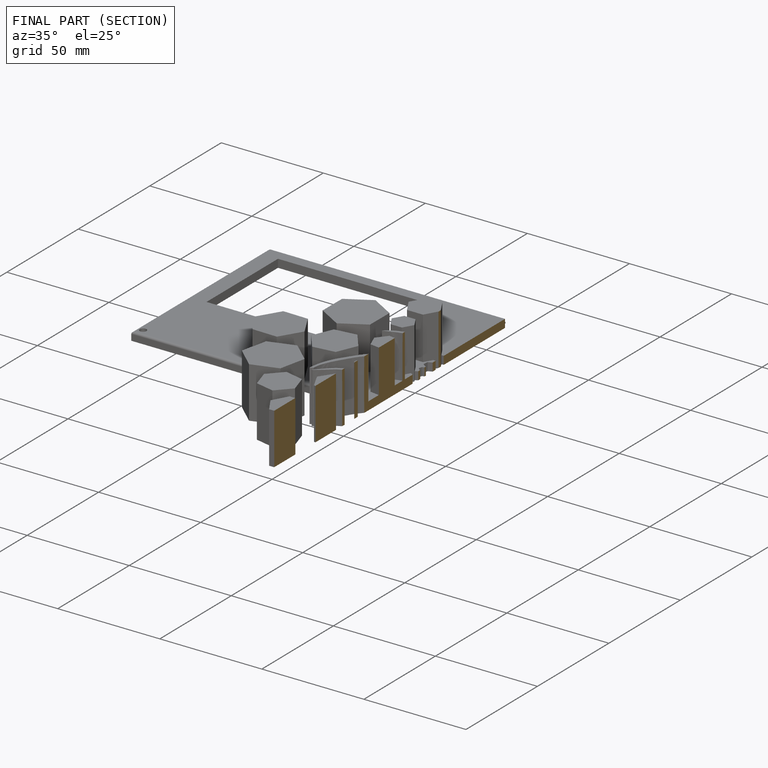
[diagram: finished part — half-section view (interior)]
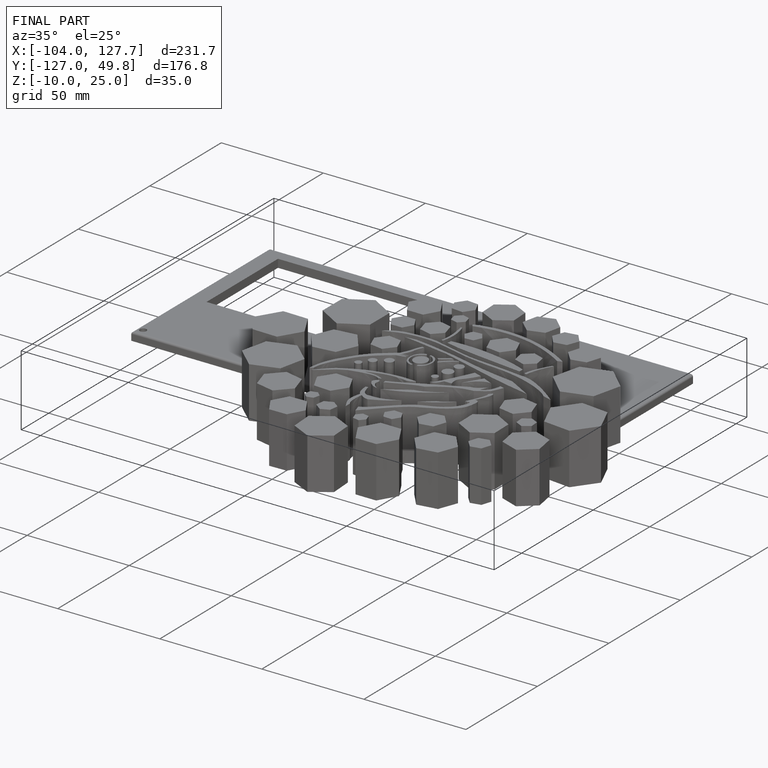
[diagram: finished part — iso view with bounding-box wireframe]
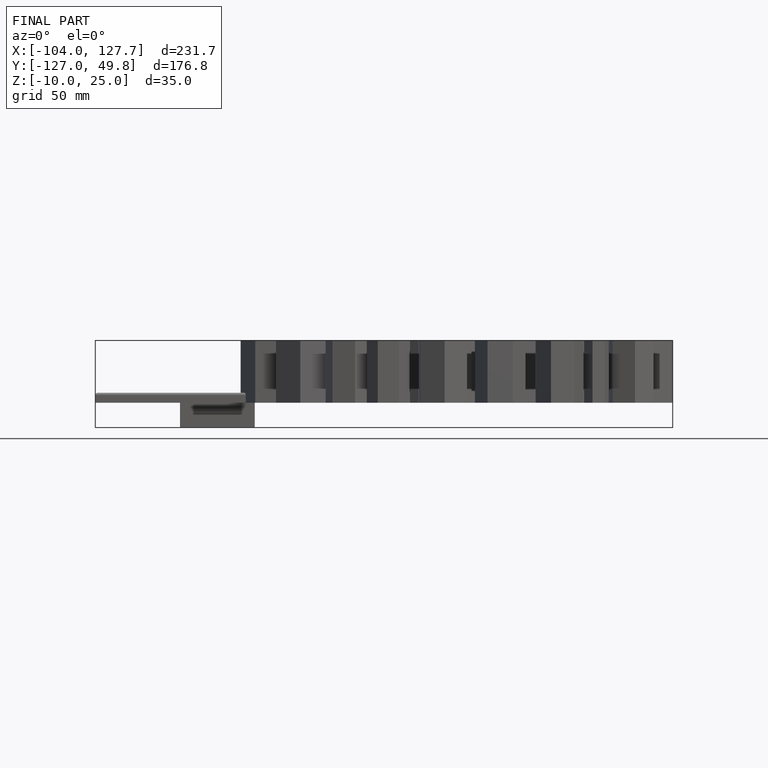
[diagram: finished part — front view with bounding-box wireframe]
